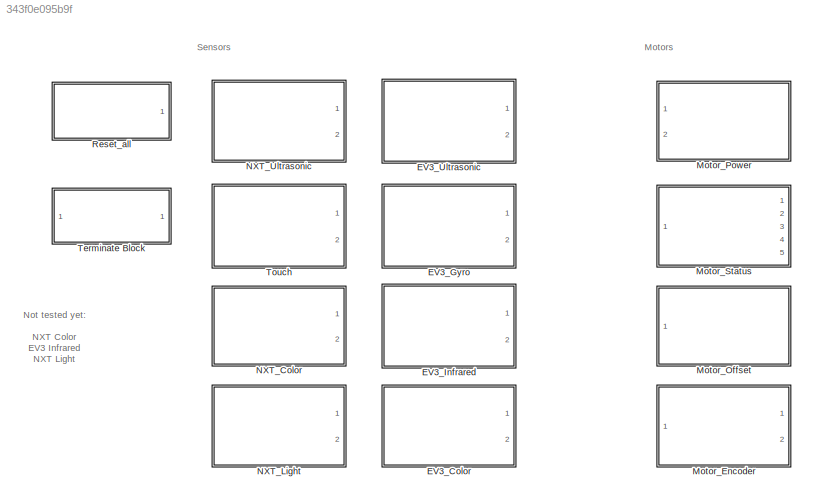
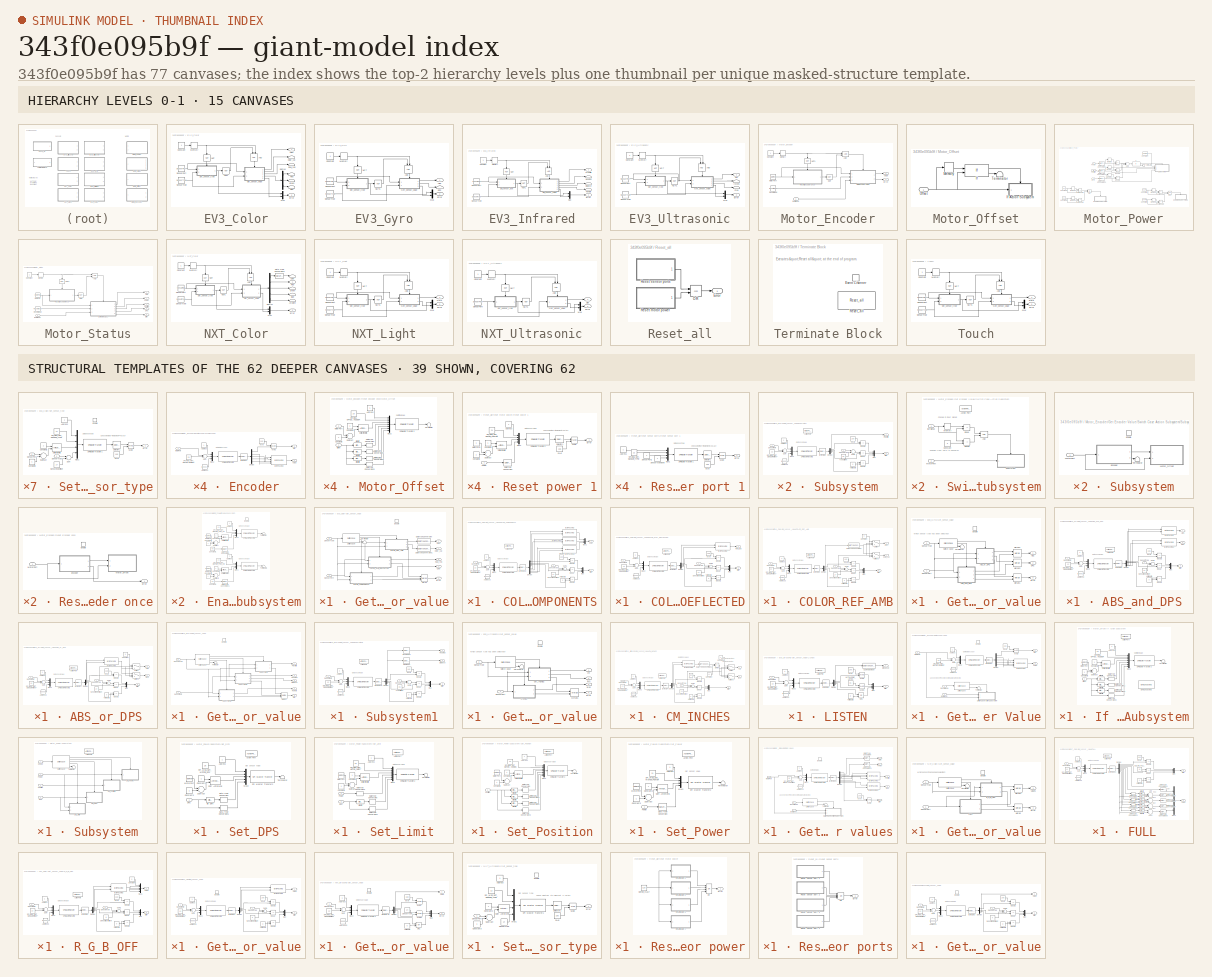
[diagram: thumbnail index - top-2 hierarchy levels (15 canvases) + 39 structural-template representatives of the remaining 62 canvases]
MODEL slx_343f0e095b9f
KIND library
CONFIG AbsTol = auto
CONFIG EnableMultiTasking = off
CONFIG FixedStep = auto
CONFIG MaxStep = auto
CONFIG MinStep = auto
CONFIG RelTol = 1e-3
CONFIG SampleTimeConstraint = Unconstrained
CONFIG Solver = VariableStepAuto
CONFIG SolverName = VariableStepAuto
CONFIG StartTime = 0.0
CONFIG StopTime = 10.0
BLOCK [SubSystem] EV3_Color
  Ports = [0, 2]
  RequestExecContextInheritance = off
BLOCK [Logic] EV3_Color/AND
  AllPortsSameDT = off
  OutDataTypeStr = boolean
  Ports = [2, 1]
BLOCK [Terminator] EV3_Color/Blue
BLOCK [Terminator] EV3_Color/Color_val
BLOCK [Constant] EV3_Color/Constant
BLOCK [Demux] EV3_Color/Demux
  DisplayOption = bar
  Outputs = 3
  Ports = [1, 3]
BLOCK [Outport] EV3_Color/Error
  IconDisplay = Port number
  Port = 2
BLOCK [SubSystem] EV3_Color/Get_sensor_value
  Ports = [2, 5, 1]
  RequestExecContextInheritance = off
BLOCK [SubSystem] EV3_Color/Get_sensor_value/COLOR_COMPONENTS
  Ports = [2, 2, 0, 0, 0, 0, 0, 1]
  RequestExecContextInheritance = off
BLOCK [Constant] EV3_Color/Get_sensor_value/COLOR_COMPONENTS/0xA5
  Value = 165
BLOCK [ActionPort] EV3_Color/Get_sensor_value/COLOR_COMPONENTS/Action Port
  ActionType = case
BLOCK [Constant] EV3_Color/Get_sensor_value/COLOR_COMPONENTS/Address 
  OutDataTypeStr = uint8
BLOCK [Constant] EV3_Color/Get_sensor_value/COLOR_COMPONENTS/Address3
  OutDataTypeStr = uint8
  Value = [0 0 0 0 0 0 0 0 0 0]
BLOCK [Reference] EV3_Color/Get_sensor_value/COLOR_COMPONENTS/Byte Packing   REF=xpcutilitieslib/Byte Packing 
  Ports = [2, 1]
  SourceBlock = xpcutilitieslib/Byte Packing
  SourceProductBaseCode = XP
  SourceProductName = Simulink Real-Time
  SourceType = xpcbytepacking
BLOCK [Reference] EV3_Color/Get_sensor_value/COLOR_COMPONENTS/Byte Packing 1  REF=xpcutilitieslib/Byte Packing 
  Ports = [2, 1]
  SourceBlock = xpcutilitieslib/Byte Packing
  SourceProductBaseCode = XP
  SourceProductName = Simulink Real-Time
  SourceType = xpcbytepacking
BLOCK [Reference] EV3_Color/Get_sensor_value/COLOR_COMPONENTS/Byte Packing 2  REF=xpcutilitieslib/Byte Packing 
  Ports = [2, 1]
  SourceBlock = xpcutilitieslib/Byte Packing
  SourceProductBaseCode = XP
  SourceProductName = Simulink Real-Time
  SourceType = xpcbytepacking
BLOCK [Selector] EV3_Color/Get_sensor_value/COLOR_COMPONENTS/Bytes[3-11]
  IndexMode = Zero-based
  IndexOptions = Index vector (dialog)
  Indices = [3 4 5 6 7 8 9 10 11]
  InputPortWidth = 12
  OutputSizes = 1
  Ports = [1, 1]
BLOCK [Outport] EV3_Color/Get_sensor_value/COLOR_COMPONENTS/Color
  IconDisplay = Port number
BLOCK [Demux] EV3_Color/Get_sensor_value/COLOR_COMPONENTS/Demux
  DisplayOption = bar
  Outputs = 9
  Ports = [1, 9]
BLOCK [RelationalOperator] EV3_Color/Get_sensor_value/COLOR_COMPONENTS/Equal
  InputSameDT = off
  Operator = ~=
  OutDataTypeStr = boolean
  Ports = [2, 1]
  RndMeth = Simplest
BLOCK [RelationalOperator] EV3_Color/Get_sensor_value/COLOR_COMPONENTS/Equal1
  InputSameDT = off
  Operator = ~=
  OutDataTypeStr = boolean
  Ports = [2, 1]
  RndMeth = Simplest
BLOCK [RelationalOperator] EV3_Color/Get_sensor_value/COLOR_COMPONENTS/Equal2
  InputSameDT = off
  Operator = ~=
  OutDataTypeStr = boolean
  Ports = [2, 1]
  RndMeth = Simplest
BLOCK [Outport] EV3_Color/Get_sensor_value/COLOR_COMPONENTS/Error
  IconDisplay = Port number
  Port = 2
BLOCK [Mux] EV3_Color/Get_sensor_value/COLOR_COMPONENTS/Mux
  DisplayOption = bar
  Inputs = 3
  Ports = [3, 1]
BLOCK [Mux] EV3_Color/Get_sensor_value/COLOR_COMPONENTS/Mux1
  DisplayOption = bar
  Inputs = 3
  Ports = [3, 1]
BLOCK [Mux] EV3_Color/Get_sensor_value/COLOR_COMPONENTS/Mux2
  DisplayOption = bar
  Inputs = 3
  Ports = [3, 1]
BLOCK [Reference] EV3_Color/Get_sensor_value/COLOR_COMPONENTS/SPI Master Transfer2  REF=raspberrypilib/SPI Master Transfer
  Ports = [1, 1]
  Priority = 6
  SourceBlock = raspberrypilib/SPI Master Transfer
  SourceProductBaseCode = RASPPI
  SourceProductName = Simulink Support Package for Raspberry Pi Hardware
  SourceType = codertarget.raspi.internal.SPIMasterTransfer
BLOCK [Constant] EV3_Color/Get_sensor_value/COLOR_COMPONENTS/SPI_MSG_GET_ SENSOR offset
  OutDataTypeStr = uint8
  OutMax = [28]
  OutMin = [1]
  Value = 12
BLOCK [Constant] EV3_Color/Get_sensor_value/COLOR_COMPONENTS/Sensor type offset
  OutDataTypeStr = uint8
  Value = 17
BLOCK [Inport] EV3_Color/Get_sensor_value/COLOR_COMPONENTS/SensorPort
  IconDisplay = Port number
BLOCK [Inport] EV3_Color/Get_sensor_value/COLOR_COMPONENTS/SensorType
  IconDisplay = Port number
  OutDataTypeStr = uint8
  Port = 2
BLOCK [Sum] EV3_Color/Get_sensor_value/COLOR_COMPONENTS/Sum
  InputSameDT = off
  OutDataTypeStr = uint8
  Ports = [2, 1]
  SaturateOnIntegerOverflow = off
BLOCK [Sum] EV3_Color/Get_sensor_value/COLOR_COMPONENTS/Sum1
  InputSameDT = off
  OutDataTypeStr = Inherit: Inherit via internal rule
  Ports = [2, 1]
  SaturateOnIntegerOverflow = off
BLOCK [Constant] EV3_Color/Get_sensor_value/COLOR_COMPONENTS/Valid data
  OutDataTypeStr = uint8
  Value = 0
BLOCK [SubSystem] EV3_Color/Get_sensor_value/COLOR_RAW_REFLECTED
  Ports = [2, 2, 0, 0, 0, 0, 0, 1]
  RequestExecContextInheritance = off
BLOCK [Constant] EV3_Color/Get_sensor_value/COLOR_RAW_REFLECTED/0xA5
  Value = 165
BLOCK [ActionPort] EV3_Color/Get_sensor_value/COLOR_RAW_REFLECTED/Action Port
  ActionType = case
BLOCK [Constant] EV3_Color/Get_sensor_value/COLOR_RAW_REFLECTED/Address 
  OutDataTypeStr = uint8
BLOCK [Constant] EV3_Color/Get_sensor_value/COLOR_RAW_REFLECTED/Address3
  OutDataTypeStr = uint8
  Value = [0 0 0 0 0 0]
BLOCK [Reference] EV3_Color/Get_sensor_value/COLOR_RAW_REFLECTED/Byte Packing   REF=xpcutilitieslib/Byte Packing 
  Ports = [2, 1]
  SourceBlock = xpcutilitieslib/Byte Packing
  SourceProductBaseCode = XP
  SourceProductName = Simulink Real-Time
  SourceType = xpcbytepacking
BLOCK [Selector] EV3_Color/Get_sensor_value/COLOR_RAW_REFLECTED/Bytes[3-7]
  IndexMode = Zero-based
  IndexOptions = Index vector (dialog)
  Indices = [3 4 5 6 7]
  InputPortWidth = 8
  OutputSizes = 1
  Ports = [1, 1]
BLOCK [Demux] EV3_Color/Get_sensor_value/COLOR_RAW_REFLECTED/Demux
  DisplayOption = bar
  Outputs = 5
  Ports = [1, 5]
BLOCK [RelationalOperator] EV3_Color/Get_sensor_value/COLOR_RAW_REFLECTED/Equal
  InputSameDT = off
  Operator = ~=
  OutDataTypeStr = boolean
  Ports = [2, 1]
  RndMeth = Simplest
BLOCK [RelationalOperator] EV3_Color/Get_sensor_value/COLOR_RAW_REFLECTED/Equal1
  InputSameDT = off
  Operator = ~=
  OutDataTypeStr = boolean
  Ports = [2, 1]
  RndMeth = Simplest
BLOCK [RelationalOperator] EV3_Color/Get_sensor_value/COLOR_RAW_REFLECTED/Equal2
  InputSameDT = off
  Operator = ~=
  OutDataTypeStr = boolean
  Ports = [2, 1]
  RndMeth = Simplest
BLOCK [Outport] EV3_Color/Get_sensor_value/COLOR_RAW_REFLECTED/Error
  IconDisplay = Port number
  Port = 2
BLOCK [Mux] EV3_Color/Get_sensor_value/COLOR_RAW_REFLECTED/Mux
  DisplayOption = bar
  Inputs = 3
  Ports = [3, 1]
BLOCK [Mux] EV3_Color/Get_sensor_value/COLOR_RAW_REFLECTED/Mux2
  DisplayOption = bar
  Inputs = 3
  Ports = [3, 1]
BLOCK [Outport] EV3_Color/Get_sensor_value/COLOR_RAW_REFLECTED/Raw_red
  IconDisplay = Port number
BLOCK [Reference] EV3_Color/Get_sensor_value/COLOR_RAW_REFLECTED/SPI Master Transfer2  REF=raspberrypilib/SPI Master Transfer
  Ports = [1, 1]
  Priority = 6
  SourceBlock = raspberrypilib/SPI Master Transfer
  SourceProductBaseCode = RASPPI
  SourceProductName = Simulink Support Package for Raspberry Pi Hardware
  SourceType = codertarget.raspi.internal.SPIMasterTransfer
BLOCK [Constant] EV3_Color/Get_sensor_value/COLOR_RAW_REFLECTED/SPI_MSG_GET_ SENSOR offset
  OutDataTypeStr = uint8
  OutMax = [28]
  OutMin = [1]
  Value = 12
BLOCK [Constant] EV3_Color/Get_sensor_value/COLOR_RAW_REFLECTED/Sensor type offset
  OutDataTypeStr = uint8
  Value = 17
BLOCK [Inport] EV3_Color/Get_sensor_value/COLOR_RAW_REFLECTED/SensorPort
  IconDisplay = Port number
BLOCK [Inport] EV3_Color/Get_sensor_value/COLOR_RAW_REFLECTED/SensorType
  IconDisplay = Port number
  OutDataTypeStr = uint8
  Port = 2
BLOCK [Sum] EV3_Color/Get_sensor_value/COLOR_RAW_REFLECTED/Sum
  InputSameDT = off
  OutDataTypeStr = uint8
  Ports = [2, 1]
  SaturateOnIntegerOverflow = off
BLOCK [Sum] EV3_Color/Get_sensor_value/COLOR_RAW_REFLECTED/Sum1
  InputSameDT = off
  OutDataTypeStr = Inherit: Inherit via internal rule
  Ports = [2, 1]
  SaturateOnIntegerOverflow = off
BLOCK [Constant] EV3_Color/Get_sensor_value/COLOR_RAW_REFLECTED/Valid data
  OutDataTypeStr = uint8
  Value = 0
BLOCK [SubSystem] EV3_Color/Get_sensor_value/COLOR_REF_AMB
  Ports = [2, 3, 0, 0, 0, 0, 0, 1]
  RequestExecContextInheritance = off
BLOCK [Constant] EV3_Color/Get_sensor_value/COLOR_REF_AMB/0xA5
  Value = 165
BLOCK [ActionPort] EV3_Color/Get_sensor_value/COLOR_REF_AMB/Action Port
  ActionType = case
BLOCK [Constant] EV3_Color/Get_sensor_value/COLOR_REF_AMB/Address 
  OutDataTypeStr = uint8
BLOCK [Constant] EV3_Color/Get_sensor_value/COLOR_REF_AMB/Address3
  OutDataTypeStr = uint8
  Value = [0 0 0 0 0]
BLOCK [Selector] EV3_Color/Get_sensor_value/COLOR_REF_AMB/Bytes[3-6]
  IndexMode = Zero-based
  IndexOptions = Index vector (dialog)
  Indices = [3 4 5 6]
  InputPortWidth = 7
  OutputSizes = 1
  Ports = [1, 1]
BLOCK [Outport] EV3_Color/Get_sensor_value/COLOR_REF_AMB/Color_val
  IconDisplay = Port number
  Port = 2
BLOCK [Constant] EV3_Color/Get_sensor_value/COLOR_REF_AMB/Constant
  Value = 0
BLOCK [DataTypeConversion] EV3_Color/Get_sensor_value/COLOR_REF_AMB/Data Type Conversion
  OutDataTypeStr = int16
  RndMeth = Floor
  SaturateOnIntegerOverflow = off
BLOCK [Demux] EV3_Color/Get_sensor_value/COLOR_REF_AMB/Demux
  DisplayOption = bar
  Ports = [1, 4]
BLOCK [RelationalOperator] EV3_Color/Get_sensor_value/COLOR_REF_AMB/Equal
  InputSameDT = off
  Operator = ~=
  OutDataTypeStr = boolean
  Ports = [2, 1]
  RndMeth = Simplest
BLOCK [RelationalOperator] EV3_Color/Get_sensor_value/COLOR_REF_AMB/Equal1
  InputSameDT = off
  Operator = ~=
  OutDataTypeStr = boolean
  Ports = [2, 1]
  RndMeth = Simplest
BLOCK [RelationalOperator] EV3_Color/Get_sensor_value/COLOR_REF_AMB/Equal2
  InputSameDT = off
  Operator = ~=
  OutDataTypeStr = boolean
  Ports = [2, 1]
  RndMeth = Simplest
BLOCK [Outport] EV3_Color/Get_sensor_value/COLOR_REF_AMB/Error
  IconDisplay = Port number
  Port = 3
BLOCK [Outport] EV3_Color/Get_sensor_value/COLOR_REF_AMB/Light
  IconDisplay = Port number
BLOCK [Mux] EV3_Color/Get_sensor_value/COLOR_REF_AMB/Mux
  DisplayOption = bar
  Inputs = 3
  Ports = [3, 1]
BLOCK [Mux] EV3_Color/Get_sensor_value/COLOR_REF_AMB/Mux2
  DisplayOption = bar
  Inputs = 3
  Ports = [3, 1]
BLOCK [Reference] EV3_Color/Get_sensor_value/COLOR_REF_AMB/SPI Master Transfer2  REF=raspberrypilib/SPI Master Transfer
  Ports = [1, 1]
  Priority = 6
  SourceBlock = raspberrypilib/SPI Master Transfer
  SourceProductBaseCode = RASPPI
  SourceProductName = Simulink Support Package for Raspberry Pi Hardware
  SourceType = codertarget.raspi.internal.SPIMasterTransfer
BLOCK [Constant] EV3_Color/Get_sensor_value/COLOR_REF_AMB/SPI_MSG_GET_ SENSOR offset
  OutDataTypeStr = uint8
  OutMax = [28]
  OutMin = [1]
  Value = 12
BLOCK [Constant] EV3_Color/Get_sensor_value/COLOR_REF_AMB/Sensor type offset
  OutDataTypeStr = uint8
  Value = 17
BLOCK [Inport] EV3_Color/Get_sensor_value/COLOR_REF_AMB/SensorPort
  IconDisplay = Port number
BLOCK [Inport] EV3_Color/Get_sensor_value/COLOR_REF_AMB/SensorType
  IconDisplay = Port number
  OutDataTypeStr = uint8
  Port = 2
BLOCK [Sum] EV3_Color/Get_sensor_value/COLOR_REF_AMB/Sum
  InputSameDT = off
  OutDataTypeStr = uint8
  Ports = [2, 1]
  SaturateOnIntegerOverflow = off
BLOCK [Sum] EV3_Color/Get_sensor_value/COLOR_REF_AMB/Sum1
  InputSameDT = off
  OutDataTypeStr = Inherit: Inherit via internal rule
  Ports = [2, 1]
  SaturateOnIntegerOverflow = off
BLOCK [Switch] EV3_Color/Get_sensor_value/COLOR_REF_AMB/Switch
  Criteria = u2 > Threshold
  InputSameDT = off
  SaturateOnIntegerOverflow = off
  Threshold = 2
BLOCK [Switch] EV3_Color/Get_sensor_value/COLOR_REF_AMB/Switch1
  Criteria = u2 > Threshold
  InputSameDT = off
  SaturateOnIntegerOverflow = off
  Threshold = 2
BLOCK [Constant] EV3_Color/Get_sensor_value/COLOR_REF_AMB/Valid data
  OutDataTypeStr = uint8
  Value = 0
BLOCK [Outport] EV3_Color/Get_sensor_value/Color
  IconDisplay = Port number
  Port = 4
BLOCK [Outport] EV3_Color/Get_sensor_value/Color_val
  IconDisplay = Port number
  Port = 2
BLOCK [DataTypeConversion] EV3_Color/Get_sensor_value/Data Type Conversion
  OutDataTypeStr = int8
  RndMeth = Floor
  SaturateOnIntegerOverflow = off
BLOCK [DataTypeConversion] EV3_Color/Get_sensor_value/Data Type Conversion1
  OutDataTypeStr = int8
  RndMeth = Floor
  SaturateOnIntegerOverflow = off
BLOCK [EnablePort] EV3_Color/Get_sensor_value/Enable
  Ports = []
BLOCK [Outport] EV3_Color/Get_sensor_value/Error
  IconDisplay = Port number
  Port = 5
BLOCK [Outport] EV3_Color/Get_sensor_value/Light
  IconDisplay = Port number
BLOCK [Merge] EV3_Color/Get_sensor_value/Merge
  Inputs = 3
  Ports = [3, 1]
BLOCK [Outport] EV3_Color/Get_sensor_value/Raw_red
  IconDisplay = Port number
  Port = 3
BLOCK [Inport] EV3_Color/Get_sensor_value/SensorPort
  IconDisplay = Port number
BLOCK [Inport] EV3_Color/Get_sensor_value/SensorType
  IconDisplay = Port number
  OutDataTypeStr = uint8
  Port = 2
BLOCK [SwitchCase] EV3_Color/Get_sensor_value/Switch Case
  CaseConditions = {[1,2,3],4,5}
  Ports = [1, 4]
BLOCK [Terminator] EV3_Color/Get_sensor_value/Terminator
BLOCK [Terminator] EV3_Color/Green
BLOCK [Outport] EV3_Color/Light
  IconDisplay = Port number
BLOCK [Memory] EV3_Color/Memory
BLOCK [Mux] EV3_Color/Mux
  DisplayOption = bar
  Inputs = 2
  Ports = [2, 1]
BLOCK [Logic] EV3_Color/NOT
  AllPortsSameDT = off
  IconShape = distinctive
  Operator = NOT
  OutDataTypeStr = boolean
  Ports = [1, 1]
BLOCK [Logic] EV3_Color/NOT1
  AllPortsSameDT = off
  IconShape = distinctive
  Operator = NOT
  OutDataTypeStr = boolean
  Ports = [1, 1]
BLOCK [Terminator] EV3_Color/Raw_red
BLOCK [Terminator] EV3_Color/Red
BLOCK [Constant] EV3_Color/SensorPort
  OutDataTypeStr = uint8
  Value = SensorPort
BLOCK [Constant] EV3_Color/SensorType
  OutDataTypeStr = uint8
  Value = SensorType
BLOCK [SubSystem] EV3_Color/Set_sensor_type
  Ports = [2, 1, 1]
  Priority = 21
  RequestExecContextInheritance = off
BLOCK [Constant] EV3_Color/Set_sensor_type/0xA5
  Value = 165
BLOCK [Constant] EV3_Color/Set_sensor_type/Address
  OutDataTypeStr = uint8
  VectorParams1D = off
BLOCK [Constant] EV3_Color/Set_sensor_type/Constant2
  OutDataTypeStr = uint8
BLOCK [Constant] EV3_Color/Set_sensor_type/Constant3
  OutDataTypeStr = uint8
BLOCK [EnablePort] EV3_Color/Set_sensor_type/Enable
  Ports = []
BLOCK [Outport] EV3_Color/Set_sensor_type/Error
  IconDisplay = Port number
  InitialOutput = [1]
BLOCK [Mux] EV3_Color/Set_sensor_type/Mux1
  DisplayOption = bar
  Ports = [4, 1]
BLOCK [Logic] EV3_Color/Set_sensor_type/NAND
  AllPortsSameDT = off
  IconShape = distinctive
  Operator = NAND
  OutDataTypeStr = boolean
  Ports = [2, 1]
BLOCK [Reference] EV3_Color/Set_sensor_type/SPI Master Transfer1  REF=raspberrypilib/SPI Master Transfer
  Ports = [1, 1]
  Priority = 1
  SourceBlock = raspberrypilib/SPI Master Transfer
  SourceProductBaseCode = RASPPI
  SourceProductName = Simulink Support Package for Raspberry Pi Hardware
  SourceType = codertarget.raspi.internal.SPIMasterTransfer
BLOCK [Constant] EV3_Color/Set_sensor_type/SPI_MSG_SET_ SENSOR_TYPE
  OutDataTypeStr = uint8
  OutMax = [28]
  OutMin = [1]
  Value = 12
BLOCK [Selector] EV3_Color/Set_sensor_type/Selector1
  IndexOptions = Index vector (dialog)
  Indices = [4]
  InputPortWidth = 4
  OutputSizes = 1
  Ports = [1, 1]
BLOCK [Constant] EV3_Color/Set_sensor_type/Sensor type offset
  OutDataTypeStr = uint8
  Value = 17
BLOCK [Inport] EV3_Color/Set_sensor_type/SensorPort
  IconDisplay = Port number
  OutDataTypeStr = uint8
BLOCK [Inport] EV3_Color/Set_sensor_type/SensorType
  IconDisplay = Port number
  OutDataTypeStr = uint8
  Port = 2
BLOCK [ArithShift] EV3_Color/Set_sensor_type/Shift Arithmetic
  BitShiftDirection = Left
  BitShiftNumber = 8
  BitShiftNumberSource = Input port
  InputPortMap = u0,p1
  Ports = [2, 1]
BLOCK [Sum] EV3_Color/Set_sensor_type/Subtract
  InputSameDT = off
  Inputs = +-
  OutDataTypeStr = Inherit: Inherit via internal rule
  Ports = [2, 1]
  SaturateOnIntegerOverflow = off
BLOCK [Sum] EV3_Color/Set_sensor_type/Sum
  InputSameDT = off
  OutDataTypeStr = Inherit: Inherit via internal rule
  Ports = [2, 1]
  SaturateOnIntegerOverflow = off
BLOCK [SubSystem] EV3_Gyro
  Ports = [0, 2]
  RequestExecContextInheritance = off
BLOCK [Outport] EV3_Gyro/ABS
  IconDisplay = Port number
BLOCK [Logic] EV3_Gyro/AND
  AllPortsSameDT = off
  OutDataTypeStr = boolean
  Ports = [2, 1]
BLOCK [Constant] EV3_Gyro/Constant
BLOCK [Terminator] EV3_Gyro/DPS
BLOCK [Outport] EV3_Gyro/Error
  IconDisplay = Port number
  Port = 2
BLOCK [SubSystem] EV3_Gyro/Get_sensor_value
  Ports = [2, 3, 1]
  RequestExecContextInheritance = off
BLOCK [Outport] EV3_Gyro/Get_sensor_value/ABS
  IconDisplay = Port number
BLOCK [SubSystem] EV3_Gyro/Get_sensor_value/ABS_and_DPS
  Ports = [2, 3, 0, 0, 0, 0, 0, 1]
  RequestExecContextInheritance = off
BLOCK [Constant] EV3_Gyro/Get_sensor_value/ABS_and_DPS/0xA5
  Value = 165
BLOCK [Outport] EV3_Gyro/Get_sensor_value/ABS_and_DPS/ABS
  IconDisplay = Port number
BLOCK [ActionPort] EV3_Gyro/Get_sensor_value/ABS_and_DPS/Action Port
BLOCK [Constant] EV3_Gyro/Get_sensor_value/ABS_and_DPS/Address 
  OutDataTypeStr = uint8
BLOCK [Constant] EV3_Gyro/Get_sensor_value/ABS_and_DPS/Address3
  OutDataTypeStr = uint8
  Value = [0 0 0 0 0 0 0 0]
BLOCK [Reference] EV3_Gyro/Get_sensor_value/ABS_and_DPS/Byte Packing   REF=xpcutilitieslib/Byte Packing 
  Ports = [2, 1]
  SourceBlock = xpcutilitieslib/Byte Packing
  SourceProductBaseCode = XP
  SourceProductName = Simulink Real-Time
  SourceType = xpcbytepacking
BLOCK [Reference] EV3_Gyro/Get_sensor_value/ABS_and_DPS/Byte Packing 1  REF=xpcutilitieslib/Byte Packing 
  Ports = [2, 1]
  SourceBlock = xpcutilitieslib/Byte Packing
  SourceProductBaseCode = XP
  SourceProductName = Simulink Real-Time
  SourceType = xpcbytepacking
BLOCK [Selector] EV3_Gyro/Get_sensor_value/ABS_and_DPS/Bytes[3-9]
  IndexMode = Zero-based
  IndexOptions = Index vector (dialog)
  Indices = [3 4 5 6 7 8 9]
  InputPortWidth = 10
  OutputSizes = 1
  Ports = [1, 1]
BLOCK [Outport] EV3_Gyro/Get_sensor_value/ABS_and_DPS/DPS
  IconDisplay = Port number
  Port = 2
BLOCK [Demux] EV3_Gyro/Get_sensor_value/ABS_and_DPS/Demux
  DisplayOption = bar
  Outputs = 7
  Ports = [1, 7]
BLOCK [RelationalOperator] EV3_Gyro/Get_sensor_value/ABS_and_DPS/Equal
  InputSameDT = off
  Operator = ~=
  OutDataTypeStr = boolean
  Ports = [2, 1]
  RndMeth = Simplest
BLOCK [RelationalOperator] EV3_Gyro/Get_sensor_value/ABS_and_DPS/Equal1
  InputSameDT = off
  Operator = ~=
  OutDataTypeStr = boolean
  Ports = [2, 1]
  RndMeth = Simplest
BLOCK [RelationalOperator] EV3_Gyro/Get_sensor_value/ABS_and_DPS/Equal2
  InputSameDT = off
  Operator = ~=
  OutDataTypeStr = boolean
  Ports = [2, 1]
  RndMeth = Simplest
BLOCK [Outport] EV3_Gyro/Get_sensor_value/ABS_and_DPS/Error
  IconDisplay = Port number
  Port = 3
BLOCK [Mux] EV3_Gyro/Get_sensor_value/ABS_and_DPS/Mux
  DisplayOption = bar
  Inputs = 3
  Ports = [3, 1]
BLOCK [Mux] EV3_Gyro/Get_sensor_value/ABS_and_DPS/Mux2
  DisplayOption = bar
  Inputs = 3
  Ports = [3, 1]
BLOCK [Reference] EV3_Gyro/Get_sensor_value/ABS_and_DPS/SPI Master Transfer2  REF=raspberrypilib/SPI Master Transfer
  Ports = [1, 1]
  Priority = 6
  SourceBlock = raspberrypilib/SPI Master Transfer
  SourceProductBaseCode = RASPPI
  SourceProductName = Simulink Support Package for Raspberry Pi Hardware
  SourceType = codertarget.raspi.internal.SPIMasterTransfer
BLOCK [Constant] EV3_Gyro/Get_sensor_value/ABS_and_DPS/SPI_MSG_GET_ SENSOR offset
  OutDataTypeStr = uint8
  OutMax = [28]
  OutMin = [1]
  Value = 12
BLOCK [Constant] EV3_Gyro/Get_sensor_value/ABS_and_DPS/Sensor type offset
  OutDataTypeStr = uint8
  Value = 14
BLOCK [Inport] EV3_Gyro/Get_sensor_value/ABS_and_DPS/SensorPort
  IconDisplay = Port number
BLOCK [Inport] EV3_Gyro/Get_sensor_value/ABS_and_DPS/SensorType
  IconDisplay = Port number
  OutDataTypeStr = uint8
  Port = 2
BLOCK [Sum] EV3_Gyro/Get_sensor_value/ABS_and_DPS/Sum
  InputSameDT = off
  OutDataTypeStr = uint8
  Ports = [2, 1]
  SaturateOnIntegerOverflow = off
BLOCK [Sum] EV3_Gyro/Get_sensor_value/ABS_and_DPS/Sum1
  InputSameDT = off
  OutDataTypeStr = uint8
  Ports = [2, 1]
  SaturateOnIntegerOverflow = off
BLOCK [Constant] EV3_Gyro/Get_sensor_value/ABS_and_DPS/Valid data
  OutDataTypeStr = uint8
  Value = 0
BLOCK [SubSystem] EV3_Gyro/Get_sensor_value/ABS_or_DPS
  Ports = [2, 3, 0, 0, 0, 0, 0, 1]
  RequestExecContextInheritance = off
BLOCK [Constant] EV3_Gyro/Get_sensor_value/ABS_or_DPS/0xA5
  Value = 165
BLOCK [Outport] EV3_Gyro/Get_sensor_value/ABS_or_DPS/ABS
  IconDisplay = Port number
BLOCK [ActionPort] EV3_Gyro/Get_sensor_value/ABS_or_DPS/Action Port
BLOCK [Constant] EV3_Gyro/Get_sensor_value/ABS_or_DPS/Address 
  OutDataTypeStr = uint8
BLOCK [Constant] EV3_Gyro/Get_sensor_value/ABS_or_DPS/Address3
  OutDataTypeStr = uint8
  Value = [0 0 0 0 0 0]
BLOCK [Reference] EV3_Gyro/Get_sensor_value/ABS_or_DPS/Byte Packing   REF=xpcutilitieslib/Byte Packing 
  Ports = [2, 1]
  SourceBlock = xpcutilitieslib/Byte Packing
  SourceProductBaseCode = XP
  SourceProductName = Simulink Real-Time
  SourceType = xpcbytepacking
BLOCK [Selector] EV3_Gyro/Get_sensor_value/ABS_or_DPS/Bytes[3-7]
  IndexMode = Zero-based
  IndexOptions = Index vector (dialog)
  Indices = [3 4 5 6 7]
  InputPortWidth = 8
  OutputSizes = 1
  Ports = [1, 1]
BLOCK [Constant] EV3_Gyro/Get_sensor_value/ABS_or_DPS/Constant
  OutDataTypeStr = uint8
  Value = 0
BLOCK [Outport] EV3_Gyro/Get_sensor_value/ABS_or_DPS/DPS
  IconDisplay = Port number
  Port = 2
BLOCK [Demux] EV3_Gyro/Get_sensor_value/ABS_or_DPS/Demux
  DisplayOption = bar
  Outputs = 5
  Ports = [1, 5]
BLOCK [RelationalOperator] EV3_Gyro/Get_sensor_value/ABS_or_DPS/Equal
  InputSameDT = off
  Operator = ~=
  OutDataTypeStr = boolean
  Ports = [2, 1]
  RndMeth = Simplest
BLOCK [RelationalOperator] EV3_Gyro/Get_sensor_value/ABS_or_DPS/Equal1
  InputSameDT = off
  Operator = ~=
  OutDataTypeStr = boolean
  Ports = [2, 1]
  RndMeth = Simplest
BLOCK [RelationalOperator] EV3_Gyro/Get_sensor_value/ABS_or_DPS/Equal2
  InputSameDT = off
  Operator = ~=
  OutDataTypeStr = boolean
  Ports = [2, 1]
  RndMeth = Simplest
BLOCK [Outport] EV3_Gyro/Get_sensor_value/ABS_or_DPS/Error
  IconDisplay = Port number
  Port = 3
BLOCK [Mux] EV3_Gyro/Get_sensor_value/ABS_or_DPS/Mux
  DisplayOption = bar
  Inputs = 3
  Ports = [3, 1]
BLOCK [Mux] EV3_Gyro/Get_sensor_value/ABS_or_DPS/Mux2
  DisplayOption = bar
  Inputs = 3
  Ports = [3, 1]
BLOCK [Reference] EV3_Gyro/Get_sensor_value/ABS_or_DPS/SPI Master Transfer2  REF=raspberrypilib/SPI Master Transfer
  Ports = [1, 1]
  Priority = 6
  SourceBlock = raspberrypilib/SPI Master Transfer
  SourceProductBaseCode = RASPPI
  SourceProductName = Simulink Support Package for Raspberry Pi Hardware
  SourceType = codertarget.raspi.internal.SPIMasterTransfer
BLOCK [Constant] EV3_Gyro/Get_sensor_value/ABS_or_DPS/SPI_MSG_GET_ SENSOR offset
  OutDataTypeStr = uint8
  OutMax = [28]
  OutMin = [1]
  Value = 12
BLOCK [Constant] EV3_Gyro/Get_sensor_value/ABS_or_DPS/Sensor type offset
  OutDataTypeStr = uint8
  Value = 14
BLOCK [Inport] EV3_Gyro/Get_sensor_value/ABS_or_DPS/SensorPort
  IconDisplay = Port number
BLOCK [Inport] EV3_Gyro/Get_sensor_value/ABS_or_DPS/SensorType
  IconDisplay = Port number
  OutDataTypeStr = uint8
  Port = 2
BLOCK [Sum] EV3_Gyro/Get_sensor_value/ABS_or_DPS/Sum
  InputSameDT = off
  OutDataTypeStr = uint8
  Ports = [2, 1]
  SaturateOnIntegerOverflow = off
BLOCK [Sum] EV3_Gyro/Get_sensor_value/ABS_or_DPS/Sum1
  InputSameDT = off
  OutDataTypeStr = Inherit: Inherit via internal rule
  Ports = [2, 1]
  SaturateOnIntegerOverflow = off
BLOCK [Switch] EV3_Gyro/Get_sensor_value/ABS_or_DPS/Switch
  Criteria = u2 > Threshold
  InputSameDT = off
  SaturateOnIntegerOverflow = off
  Threshold = 1
BLOCK [Switch] EV3_Gyro/Get_sensor_value/ABS_or_DPS/Switch1
  Criteria = u2 > Threshold
  InputSameDT = off
  SaturateOnIntegerOverflow = off
  Threshold = 1
BLOCK [Constant] EV3_Gyro/Get_sensor_value/ABS_or_DPS/Valid data
  OutDataTypeStr = uint8
  Value = 0
BLOCK [Outport] EV3_Gyro/Get_sensor_value/DPS
  IconDisplay = Port number
  Port = 2
BLOCK [EnablePort] EV3_Gyro/Get_sensor_value/Enable
  Ports = []
  PropagateVarSize = During execution
  StatesWhenEnabling = reset
BLOCK [Outport] EV3_Gyro/Get_sensor_value/Error
  IconDisplay = Port number
  Port = 3
BLOCK [Merge] EV3_Gyro/Get_sensor_value/Merge1
  Ports = [2, 1]
BLOCK [Merge] EV3_Gyro/Get_sensor_value/Merge2
  Ports = [2, 1]
BLOCK [Merge] EV3_Gyro/Get_sensor_value/Merge3
  Ports = [2, 1]
BLOCK [Inport] EV3_Gyro/Get_sensor_value/SensorPort
  IconDisplay = Port number
BLOCK [Inport] EV3_Gyro/Get_sensor_value/SensorType
  IconDisplay = Port number
  OutDataTypeStr = uint8
  Port = 2
BLOCK [SwitchCase] EV3_Gyro/Get_sensor_value/Switch Case
  CaseConditions = {[1,2],3}
  Ports = [1, 3]
BLOCK [Terminator] EV3_Gyro/Get_sensor_value/Terminator
BLOCK [Memory] EV3_Gyro/Memory
BLOCK [Mux] EV3_Gyro/Mux
  DisplayOption = bar
  Inputs = 2
  Ports = [2, 1]
BLOCK [Logic] EV3_Gyro/NOT
  AllPortsSameDT = off
  IconShape = distinctive
  Operator = NOT
  OutDataTypeStr = boolean
  Ports = [1, 1]
BLOCK [Logic] EV3_Gyro/NOT1
  AllPortsSameDT = off
  IconShape = distinctive
  Operator = NOT
  OutDataTypeStr = boolean
  Ports = [1, 1]
BLOCK [Constant] EV3_Gyro/SensorPort
  OutDataTypeStr = uint8
  Value = SensorPort
BLOCK [Constant] EV3_Gyro/SensorType
  OutDataTypeStr = uint8
  Value = SensorType
BLOCK [SubSystem] EV3_Gyro/Set_sensor_type
  Ports = [2, 1, 1]
  Priority = 21
  RequestExecContextInheritance = off
BLOCK [Constant] EV3_Gyro/Set_sensor_type/0xA5
  Value = 165
BLOCK [Constant] EV3_Gyro/Set_sensor_type/Address
  OutDataTypeStr = uint8
  VectorParams1D = off
BLOCK [Constant] EV3_Gyro/Set_sensor_type/Constant2
  OutDataTypeStr = uint8
BLOCK [Constant] EV3_Gyro/Set_sensor_type/Constant3
  OutDataTypeStr = uint8
BLOCK [EnablePort] EV3_Gyro/Set_sensor_type/Enable
  Ports = []
  PropagateVarSize = During execution
BLOCK [Outport] EV3_Gyro/Set_sensor_type/Error
  IconDisplay = Port number
  InitialOutput = [1]
BLOCK [Mux] EV3_Gyro/Set_sensor_type/Mux1
  DisplayOption = bar
  Ports = [4, 1]
BLOCK [Logic] EV3_Gyro/Set_sensor_type/NAND
  AllPortsSameDT = off
  IconShape = distinctive
  Operator = NAND
  OutDataTypeStr = boolean
  Ports = [2, 1]
BLOCK [Reference] EV3_Gyro/Set_sensor_type/SPI Master Transfer1  REF=raspberrypilib/SPI Master Transfer
  Ports = [1, 1]
  Priority = 1
  SourceBlock = raspberrypilib/SPI Master Transfer
  SourceProductBaseCode = RASPPI
  SourceProductName = Simulink Support Package for Raspberry Pi Hardware
  SourceType = codertarget.raspi.internal.SPIMasterTransfer
BLOCK [Constant] EV3_Gyro/Set_sensor_type/SPI_MSG_SET_ SENSOR_TYPE
  OutDataTypeStr = uint8
  OutMax = [28]
  OutMin = [1]
  Value = 12
BLOCK [Selector] EV3_Gyro/Set_sensor_type/Selector1
  IndexOptions = Index vector (dialog)
  Indices = [4]
  InputPortWidth = 4
  OutputSizes = 1
  Ports = [1, 1]
BLOCK [Constant] EV3_Gyro/Set_sensor_type/Sensor type offset
  OutDataTypeStr = uint8
  Value = 14
BLOCK [Inport] EV3_Gyro/Set_sensor_type/SensorPort
  IconDisplay = Port number
  OutDataTypeStr = uint8
BLOCK [Inport] EV3_Gyro/Set_sensor_type/SensorType
  IconDisplay = Port number
  OutDataTypeStr = uint8
  Port = 2
BLOCK [ArithShift] EV3_Gyro/Set_sensor_type/Shift Arithmetic
  BitShiftDirection = Left
  BitShiftNumber = 8
  BitShiftNumberSource = Input port
  InputPortMap = u0,p1
  Ports = [2, 1]
BLOCK [Sum] EV3_Gyro/Set_sensor_type/Subtract
  InputSameDT = off
  Inputs = +-
  OutDataTypeStr = Inherit: Inherit via internal rule
  Ports = [2, 1]
  SaturateOnIntegerOverflow = off
BLOCK [Sum] EV3_Gyro/Set_sensor_type/Sum
  InputSameDT = off
  OutDataTypeStr = Inherit: Inherit via internal rule
  Ports = [2, 1]
  SaturateOnIntegerOverflow = off
BLOCK [SubSystem] EV3_Infrared
  Ports = [0, 2]
  RequestExecContextInheritance = off
BLOCK [Logic] EV3_Infrared/AND
  AllPortsSameDT = off
  OutDataTypeStr = boolean
  Ports = [2, 1]
BLOCK [Constant] EV3_Infrared/Constant
BLOCK [Terminator] EV3_Infrared/Distance
BLOCK [Outport] EV3_Infrared/Error
  IconDisplay = Port number
  Port = 2
BLOCK [SubSystem] EV3_Infrared/Get_sensor_value
  Ports = [2, 5, 1]
  RequestExecContextInheritance = off
BLOCK [Outport] EV3_Infrared/Get_sensor_value/Distance
  IconDisplay = Port number
  Port = 3
BLOCK [EnablePort] EV3_Infrared/Get_sensor_value/Enable
  Ports = []
BLOCK [Outport] EV3_Infrared/Get_sensor_value/Error
  IconDisplay = Port number
  Port = 5
BLOCK [Outport] EV3_Infrared/Get_sensor_value/Heading
  IconDisplay = Port number
  Port = 2
BLOCK [Merge] EV3_Infrared/Get_sensor_value/Merge2
  Inputs = 3
  Ports = [3, 1]
BLOCK [Outport] EV3_Infrared/Get_sensor_value/Proximity
  IconDisplay = Port number
BLOCK [Outport] EV3_Infrared/Get_sensor_value/Remote
  IconDisplay = Port number
  Port = 4
BLOCK [Inport] EV3_Infrared/Get_sensor_value/SensorPort
  IconDisplay = Port number
BLOCK [Inport] EV3_Infrared/Get_sensor_value/SensorType
  IconDisplay = Port number
  Port = 2
BLOCK [SubSystem] EV3_Infrared/Get_sensor_value/Subsystem
  Ports = [2, 2, 0, 0, 0, 0, 0, 1]
  RequestExecContextInheritance = off
BLOCK [Constant] EV3_Infrared/Get_sensor_value/Subsystem/0xA5
  Value = 165
BLOCK [ActionPort] EV3_Infrared/Get_sensor_value/Subsystem/Action Port
  ActionType = case
BLOCK [Constant] EV3_Infrared/Get_sensor_value/Subsystem/Address 
  OutDataTypeStr = uint8
BLOCK [Constant] EV3_Infrared/Get_sensor_value/Subsystem/Address3
  OutDataTypeStr = uint8
  Value = [0 0 0 0 0]
BLOCK [Selector] EV3_Infrared/Get_sensor_value/Subsystem/Bytes[3-6]
  IndexMode = Zero-based
  IndexOptions = Index vector (dialog)
  Indices = [3 4 5 6]
  InputPortWidth = 7
  OutputSizes = 1
  Ports = [1, 1]
BLOCK [Demux] EV3_Infrared/Get_sensor_value/Subsystem/Demux
  DisplayOption = bar
  Ports = [1, 4]
BLOCK [RelationalOperator] EV3_Infrared/Get_sensor_value/Subsystem/Equal
  InputSameDT = off
  Operator = ~=
  OutDataTypeStr = boolean
  Ports = [2, 1]
  RndMeth = Simplest
BLOCK [RelationalOperator] EV3_Infrared/Get_sensor_value/Subsystem/Equal1
  InputSameDT = off
  Operator = ~=
  OutDataTypeStr = boolean
  Ports = [2, 1]
  RndMeth = Simplest
BLOCK [RelationalOperator] EV3_Infrared/Get_sensor_value/Subsystem/Equal2
  InputSameDT = off
  Operator = ~=
  OutDataTypeStr = boolean
  Ports = [2, 1]
  RndMeth = Simplest
BLOCK [Outport] EV3_Infrared/Get_sensor_value/Subsystem/Error
  IconDisplay = Port number
  Port = 2
BLOCK [Mux] EV3_Infrared/Get_sensor_value/Subsystem/Mux
  DisplayOption = bar
  Inputs = 3
  Ports = [3, 1]
BLOCK [Mux] EV3_Infrared/Get_sensor_value/Subsystem/Mux2
  DisplayOption = bar
  Inputs = 3
  Ports = [3, 1]
BLOCK [Outport] EV3_Infrared/Get_sensor_value/Subsystem/Proximity
  IconDisplay = Port number
BLOCK [Reference] EV3_Infrared/Get_sensor_value/Subsystem/SPI Master Transfer2  REF=raspberrypilib/SPI Master Transfer
  Ports = [1, 1]
  Priority = 6
  SourceBlock = raspberrypilib/SPI Master Transfer
  SourceProductBaseCode = RASPPI
  SourceProductName = Simulink Support Package for Raspberry Pi Hardware
  SourceType = codertarget.raspi.internal.SPIMasterTransfer
BLOCK [Constant] EV3_Infrared/Get_sensor_value/Subsystem/SPI_MSG_GET_ SENSOR offset
  OutDataTypeStr = uint8
  OutMax = [28]
  OutMin = [1]
  Value = 12
BLOCK [Inport] EV3_Infrared/Get_sensor_value/Subsystem/SensorPort
  IconDisplay = Port number
BLOCK [Inport] EV3_Infrared/Get_sensor_value/Subsystem/SensorType
  IconDisplay = Port number
  OutDataTypeStr = uint8
  Port = 2
BLOCK [Sum] EV3_Infrared/Get_sensor_value/Subsystem/Sum
  InputSameDT = off
  OutDataTypeStr = uint8
  Ports = [2, 1]
  SaturateOnIntegerOverflow = off
BLOCK [Sum] EV3_Infrared/Get_sensor_value/Subsystem/Sum1
  InputSameDT = off
  OutDataTypeStr = uint8
  Ports = [2, 1]
  SaturateOnIntegerOverflow = off
BLOCK [Constant] EV3_Infrared/Get_sensor_value/Subsystem/Type Offset
  OutDataTypeStr = uint8
  Value = 25
BLOCK [Constant] EV3_Infrared/Get_sensor_value/Subsystem/Valid data
  OutDataTypeStr = uint8
  Value = 0
BLOCK [SubSystem] EV3_Infrared/Get_sensor_value/Subsystem1
  Ports = [2, 3, 0, 0, 0, 0, 0, 1]
  RequestExecContextInheritance = off
BLOCK [Constant] EV3_Infrared/Get_sensor_value/Subsystem1/0xA5
  Value = 165
BLOCK [ActionPort] EV3_Infrared/Get_sensor_value/Subsystem1/Action Port
  ActionType = case
BLOCK [Constant] EV3_Infrared/Get_sensor_value/Subsystem1/Address 
  OutDataTypeStr = uint8
BLOCK [Constant] EV3_Infrared/Get_sensor_value/Subsystem1/Address3
  OutDataTypeStr = uint8
  Value = [0 0 0 0 0 0 0 0 0 0 0 0]
BLOCK [Selector] EV3_Infrared/Get_sensor_value/Subsystem1/Bytes[3-13]
  IndexMode = Zero-based
  IndexOptions = Index vector (dialog)
  Indices = [3 4 5 6 7 8 9 10 11 12 13]
  InputPortWidth = 14
  OutputSizes = 1
  Ports = [1, 1]
BLOCK [Demux] EV3_Infrared/Get_sensor_value/Subsystem1/Demux
  DisplayOption = bar
  Ports = [1, 4]
BLOCK [Outport] EV3_Infrared/Get_sensor_value/Subsystem1/Distance
  IconDisplay = Port number
  Port = 2
BLOCK [RelationalOperator] EV3_Infrared/Get_sensor_value/Subsystem1/Equal
  InputSameDT = off
  Operator = ~=
  OutDataTypeStr = boolean
  Ports = [2, 1]
  RndMeth = Simplest
BLOCK [RelationalOperator] EV3_Infrared/Get_sensor_value/Subsystem1/Equal1
  InputSameDT = off
  Operator = ~=
  OutDataTypeStr = boolean
  Ports = [2, 1]
  RndMeth = Simplest
BLOCK [RelationalOperator] EV3_Infrared/Get_sensor_value/Subsystem1/Equal2
  InputSameDT = off
  Operator = ~=
  OutDataTypeStr = boolean
  Ports = [2, 1]
  RndMeth = Simplest
BLOCK [Outport] EV3_Infrared/Get_sensor_value/Subsystem1/Error
  IconDisplay = Port number
  Port = 3
BLOCK [Selector] EV3_Infrared/Get_sensor_value/Subsystem1/Even index
  IndexMode = Zero-based
  IndexOptions = Index vector (dialog)
  Indices = [0 2 4 6]
  InputPortWidth = 8
  OutputSizes = 1
  Ports = [1, 1]
BLOCK [Outport] EV3_Infrared/Get_sensor_value/Subsystem1/Heading
  IconDisplay = Port number
BLOCK [Mux] EV3_Infrared/Get_sensor_value/Subsystem1/Mux
  DisplayOption = bar
  Inputs = 3
  Ports = [3, 1]
BLOCK [Mux] EV3_Infrared/Get_sensor_value/Subsystem1/Mux2
  DisplayOption = bar
  Inputs = 3
  Ports = [3, 1]
BLOCK [Selector] EV3_Infrared/Get_sensor_value/Subsystem1/Odd index
  IndexMode = Zero-based
  IndexOptions = Index vector (dialog)
  Indices = [1 3 5 7]
  InputPortWidth = 8
  OutputSizes = 1
  Ports = [1, 1]
BLOCK [Reference] EV3_Infrared/Get_sensor_value/Subsystem1/SPI Master Transfer2  REF=raspberrypilib/SPI Master Transfer
  Ports = [1, 1]
  Priority = 6
  SourceBlock = raspberrypilib/SPI Master Transfer
  SourceProductBaseCode = RASPPI
  SourceProductName = Simulink Support Package for Raspberry Pi Hardware
  SourceType = codertarget.raspi.internal.SPIMasterTransfer
BLOCK [Constant] EV3_Infrared/Get_sensor_value/Subsystem1/SPI_MSG_GET_ SENSOR offset
  OutDataTypeStr = uint8
  OutMax = [28]
  OutMin = [1]
  Value = 12
BLOCK [Inport] EV3_Infrared/Get_sensor_value/Subsystem1/SensorPort
  IconDisplay = Port number
BLOCK [Inport] EV3_Infrared/Get_sensor_value/Subsystem1/SensorType
  IconDisplay = Port number
  OutDataTypeStr = uint8
  Port = 2
BLOCK [Sum] EV3_Infrared/Get_sensor_value/Subsystem1/Sum
  InputSameDT = off
  OutDataTypeStr = uint8
  Ports = [2, 1]
  SaturateOnIntegerOverflow = off
BLOCK [Sum] EV3_Infrared/Get_sensor_value/Subsystem1/Sum1
  InputSameDT = off
  OutDataTypeStr = uint8
  Ports = [2, 1]
  SaturateOnIntegerOverflow = off
BLOCK [Constant] EV3_Infrared/Get_sensor_value/Subsystem1/Type Offset
  OutDataTypeStr = uint8
  Value = 25
BLOCK [Constant] EV3_Infrared/Get_sensor_value/Subsystem1/Valid data
  OutDataTypeStr = uint8
  Value = 0
BLOCK [SubSystem] EV3_Infrared/Get_sensor_value/Subsystem2
  Ports = [2, 2, 0, 0, 0, 0, 0, 1]
  RequestExecContextInheritance = off
BLOCK [Constant] EV3_Infrared/Get_sensor_value/Subsystem2/0xA5
  Value = 165
BLOCK [ActionPort] EV3_Infrared/Get_sensor_value/Subsystem2/Action Port
  ActionType = case
BLOCK [Constant] EV3_Infrared/Get_sensor_value/Subsystem2/Address 
  OutDataTypeStr = uint8
BLOCK [Constant] EV3_Infrared/Get_sensor_value/Subsystem2/Address3
  OutDataTypeStr = uint8
  Value = [0 0 0 0 0 0 0 0]
BLOCK [Selector] EV3_Infrared/Get_sensor_value/Subsystem2/Bytes[3-9]
  IndexMode = Zero-based
  IndexOptions = Index vector (dialog)
  Indices = [3 4 5 6 7 8 9]
  InputPortWidth = 10
  OutputSizes = 1
  Ports = [1, 1]
BLOCK [Demux] EV3_Infrared/Get_sensor_value/Subsystem2/Demux
  DisplayOption = bar
  Ports = [1, 4]
BLOCK [RelationalOperator] EV3_Infrared/Get_sensor_value/Subsystem2/Equal
  InputSameDT = off
  Operator = ~=
  OutDataTypeStr = boolean
  Ports = [2, 1]
  RndMeth = Simplest
BLOCK [RelationalOperator] EV3_Infrared/Get_sensor_value/Subsystem2/Equal1
  InputSameDT = off
  Operator = ~=
  OutDataTypeStr = boolean
  Ports = [2, 1]
  RndMeth = Simplest
BLOCK [RelationalOperator] EV3_Infrared/Get_sensor_value/Subsystem2/Equal2
  InputSameDT = off
  Operator = ~=
  OutDataTypeStr = boolean
  Ports = [2, 1]
  RndMeth = Simplest
BLOCK [Outport] EV3_Infrared/Get_sensor_value/Subsystem2/Error
  IconDisplay = Port number
  Port = 2
BLOCK [Mux] EV3_Infrared/Get_sensor_value/Subsystem2/Mux
  DisplayOption = bar
  Inputs = 3
  Ports = [3, 1]
BLOCK [Mux] EV3_Infrared/Get_sensor_value/Subsystem2/Mux2
  DisplayOption = bar
  Inputs = 3
  Ports = [3, 1]
BLOCK [Outport] EV3_Infrared/Get_sensor_value/Subsystem2/Remote
  IconDisplay = Port number
BLOCK [Reference] EV3_Infrared/Get_sensor_value/Subsystem2/SPI Master Transfer2  REF=raspberrypilib/SPI Master Transfer
  Ports = [1, 1]
  Priority = 6
  SourceBlock = raspberrypilib/SPI Master Transfer
  SourceProductBaseCode = RASPPI
  SourceProductName = Simulink Support Package for Raspberry Pi Hardware
  SourceType = codertarget.raspi.internal.SPIMasterTransfer
BLOCK [Constant] EV3_Infrared/Get_sensor_value/Subsystem2/SPI_MSG_GET_ SENSOR offset
  OutDataTypeStr = uint8
  OutMax = [28]
  OutMin = [1]
  Value = 12
BLOCK [Inport] EV3_Infrared/Get_sensor_value/Subsystem2/SensorPort
  IconDisplay = Port number
BLOCK [Inport] EV3_Infrared/Get_sensor_value/Subsystem2/SensorType
  IconDisplay = Port number
  OutDataTypeStr = uint8
  Port = 2
BLOCK [Sum] EV3_Infrared/Get_sensor_value/Subsystem2/Sum
  InputSameDT = off
  OutDataTypeStr = uint8
  Ports = [2, 1]
  SaturateOnIntegerOverflow = off
BLOCK [Sum] EV3_Infrared/Get_sensor_value/Subsystem2/Sum1
  InputSameDT = off
  OutDataTypeStr = uint8
  Ports = [2, 1]
  SaturateOnIntegerOverflow = off
BLOCK [Constant] EV3_Infrared/Get_sensor_value/Subsystem2/Type Offset
  OutDataTypeStr = uint8
  Value = 25
BLOCK [Constant] EV3_Infrared/Get_sensor_value/Subsystem2/Valid data
  OutDataTypeStr = uint8
  Value = 0
BLOCK [SwitchCase] EV3_Infrared/Get_sensor_value/Switch Case
  CaseConditions = {1,2,3}
  Ports = [1, 4]
BLOCK [Terminator] EV3_Infrared/Get_sensor_value/Terminator
BLOCK [Terminator] EV3_Infrared/Heading
BLOCK [Memory] EV3_Infrared/Memory
BLOCK [Mux] EV3_Infrared/Mux
  DisplayOption = bar
  Inputs = 2
  Ports = [2, 1]
BLOCK [Logic] EV3_Infrared/NOT
  AllPortsSameDT = off
  IconShape = distinctive
  Operator = NOT
  OutDataTypeStr = boolean
  Ports = [1, 1]
BLOCK [Logic] EV3_Infrared/NOT1
  AllPortsSameDT = off
  IconShape = distinctive
  Operator = NOT
  OutDataTypeStr = boolean
  Ports = [1, 1]
BLOCK [Outport] EV3_Infrared/Proximity
  IconDisplay = Port number
BLOCK [Terminator] EV3_Infrared/Remote
BLOCK [Constant] EV3_Infrared/SensorPort
  OutDataTypeStr = uint8
  Value = SensorPort
BLOCK [Constant] EV3_Infrared/SensorType
  OutDataTypeStr = uint8
  Value = SensorType
BLOCK [SubSystem] EV3_Infrared/Set_sensor_type
  Ports = [2, 1, 1]
  Priority = 21
  RequestExecContextInheritance = off
BLOCK [Constant] EV3_Infrared/Set_sensor_type/0xA5
  Value = 165
BLOCK [Sum] EV3_Infrared/Set_sensor_type/Add
  InputSameDT = off
  OutDataTypeStr = Inherit: Inherit via internal rule
  Ports = [2, 1]
  SaturateOnIntegerOverflow = off
BLOCK [Constant] EV3_Infrared/Set_sensor_type/Address
  OutDataTypeStr = uint8
  VectorParams1D = off
BLOCK [Constant] EV3_Infrared/Set_sensor_type/Constant2
  OutDataTypeStr = uint8
BLOCK [Constant] EV3_Infrared/Set_sensor_type/Constant3
  OutDataTypeStr = uint8
BLOCK [EnablePort] EV3_Infrared/Set_sensor_type/Enable
  Ports = []
BLOCK [Outport] EV3_Infrared/Set_sensor_type/Error
  IconDisplay = Port number
BLOCK [Mux] EV3_Infrared/Set_sensor_type/Mux1
  DisplayOption = bar
  Ports = [4, 1]
BLOCK [Logic] EV3_Infrared/Set_sensor_type/NAND
  AllPortsSameDT = off
  IconShape = distinctive
  Operator = NAND
  OutDataTypeStr = boolean
  Ports = [2, 1]
BLOCK [Reference] EV3_Infrared/Set_sensor_type/SPI Master Transfer1  REF=raspberrypilib/SPI Master Transfer
  Ports = [1, 1]
  Priority = 1
  SourceBlock = raspberrypilib/SPI Master Transfer
  SourceProductBaseCode = RASPPI
  SourceProductName = Simulink Support Package for Raspberry Pi Hardware
  SourceType = codertarget.raspi.internal.SPIMasterTransfer
BLOCK [Constant] EV3_Infrared/Set_sensor_type/SPI_MSG_SET_ SENSOR_TYPE
  OutDataTypeStr = uint8
  OutMax = [28]
  OutMin = [1]
  Value = 12
BLOCK [Selector] EV3_Infrared/Set_sensor_type/Selector1
  IndexOptions = Index vector (dialog)
  Indices = [4]
  InputPortWidth = 4
  OutputSizes = 1
  Ports = [1, 1]
BLOCK [Inport] EV3_Infrared/Set_sensor_type/SensorPort
  IconDisplay = Port number
  OutDataTypeStr = uint8
BLOCK [Inport] EV3_Infrared/Set_sensor_type/SensorType
  IconDisplay = Port number
  Port = 2
BLOCK [ArithShift] EV3_Infrared/Set_sensor_type/Shift Arithmetic
  BitShiftDirection = Left
  BitShiftNumber = 8
  BitShiftNumberSource = Input port
  InputPortMap = u0,p1
  Ports = [2, 1]
BLOCK [Sum] EV3_Infrared/Set_sensor_type/Subtract
  InputSameDT = off
  Inputs = +-
  OutDataTypeStr = Inherit: Inherit via internal rule
  Ports = [2, 1]
  SaturateOnIntegerOverflow = off
BLOCK [Constant] EV3_Infrared/Set_sensor_type/Type Offset
  OutDataTypeStr = uint8
  Value = 25
BLOCK [SubSystem] EV3_Ultrasonic
  Ports = [0, 2]
  RequestExecContextInheritance = off
BLOCK [Logic] EV3_Ultrasonic/AND
  AllPortsSameDT = off
  OutDataTypeStr = boolean
  Ports = [2, 1]
BLOCK [Outport] EV3_Ultrasonic/Cm
  IconDisplay = Port number
BLOCK [Constant] EV3_Ultrasonic/Constant
BLOCK [Outport] EV3_Ultrasonic/Error
  IconDisplay = Port number
  Port = 2
BLOCK [SubSystem] EV3_Ultrasonic/Get_sensor_value
  Ports = [2, 4, 1]
  RequestExecContextInheritance = off
BLOCK [SubSystem] EV3_Ultrasonic/Get_sensor_value/CM_INCHES
  Ports = [2, 3, 0, 0, 0, 0, 0, 1]
  RequestExecContextInheritance = off
BLOCK [Constant] EV3_Ultrasonic/Get_sensor_value/CM_INCHES/0xA5
  Value = 165
BLOCK [ActionPort] EV3_Ultrasonic/Get_sensor_value/CM_INCHES/Action Port
  ActionType = case
BLOCK [Constant] EV3_Ultrasonic/Get_sensor_value/CM_INCHES/Address 
  OutDataTypeStr = uint8
BLOCK [Constant] EV3_Ultrasonic/Get_sensor_value/CM_INCHES/Address3
  OutDataTypeStr = uint8
  Value = [0 0 0 0 0 0]
BLOCK [Reference] EV3_Ultrasonic/Get_sensor_value/CM_INCHES/Byte Packing   REF=xpcutilitieslib/Byte Packing 
  Ports = [2, 1]
  SourceBlock = xpcutilitieslib/Byte Packing
  SourceProductBaseCode = XP
  SourceProductName = Simulink Real-Time
  SourceType = xpcbytepacking
BLOCK [Selector] EV3_Ultrasonic/Get_sensor_value/CM_INCHES/Bytes[3-7]
  IndexMode = Zero-based
  IndexOptions = Index vector (dialog)
  Indices = [3 4 5 6 7]
  InputPortWidth = 8
  OutputSizes = 1
  Ports = [1, 1]
BLOCK [Constant] EV3_Ultrasonic/Get_sensor_value/CM_INCHES/Constant
  Value = 10
BLOCK [Constant] EV3_Ultrasonic/Get_sensor_value/CM_INCHES/Constant1
  Value = 0
BLOCK [DataTypeConversion] EV3_Ultrasonic/Get_sensor_value/CM_INCHES/Data Type Conversion1
  OutDataTypeStr = double
  RndMeth = Floor
  SaturateOnIntegerOverflow = off
BLOCK [Demux] EV3_Ultrasonic/Get_sensor_value/CM_INCHES/Demux
  DisplayOption = bar
  Outputs = 5
  Ports = [1, 5]
BLOCK [Product] EV3_Ultrasonic/Get_sensor_value/CM_INCHES/Divide
  InputSameDT = off
  Inputs = */
  OutDataTypeStr = Inherit: Inherit via internal rule
  Ports = [2, 1]
  RndMeth = Floor
  SaturateOnIntegerOverflow = off
BLOCK [RelationalOperator] EV3_Ultrasonic/Get_sensor_value/CM_INCHES/Equal
  InputSameDT = off
  Operator = ~=
  OutDataTypeStr = boolean
  Ports = [2, 1]
  RndMeth = Simplest
BLOCK [RelationalOperator] EV3_Ultrasonic/Get_sensor_value/CM_INCHES/Equal1
  InputSameDT = off
  Operator = ~=
  OutDataTypeStr = boolean
  Ports = [2, 1]
  RndMeth = Simplest
BLOCK [RelationalOperator] EV3_Ultrasonic/Get_sensor_value/CM_INCHES/Equal2
  InputSameDT = off
  Operator = ~=
  OutDataTypeStr = boolean
  Ports = [2, 1]
  RndMeth = Simplest
BLOCK [Outport] EV3_Ultrasonic/Get_sensor_value/CM_INCHES/Error
  IconDisplay = Port number
  Port = 3
BLOCK [Mux] EV3_Ultrasonic/Get_sensor_value/CM_INCHES/Mux
  DisplayOption = bar
  Inputs = 3
  Ports = [3, 1]
BLOCK [Mux] EV3_Ultrasonic/Get_sensor_value/CM_INCHES/Mux2
  DisplayOption = bar
  Inputs = 3
  Ports = [3, 1]
BLOCK [Reference] EV3_Ultrasonic/Get_sensor_value/CM_INCHES/SPI Master Transfer2  REF=raspberrypilib/SPI Master Transfer
  Ports = [1, 1]
  Priority = 6
  SourceBlock = raspberrypilib/SPI Master Transfer
  SourceProductBaseCode = RASPPI
  SourceProductName = Simulink Support Package for Raspberry Pi Hardware
  SourceType = codertarget.raspi.internal.SPIMasterTransfer
BLOCK [Constant] EV3_Ultrasonic/Get_sensor_value/CM_INCHES/SPI_MSG_GET_ SENSOR offset
  OutDataTypeStr = uint8
  OutMax = [28]
  OutMin = [1]
  Value = 12
BLOCK [Constant] EV3_Ultrasonic/Get_sensor_value/CM_INCHES/Sensor type offset
  OutDataTypeStr = uint8
  Value = 22
BLOCK [Inport] EV3_Ultrasonic/Get_sensor_value/CM_INCHES/SensorPort
  IconDisplay = Port number
BLOCK [Inport] EV3_Ultrasonic/Get_sensor_value/CM_INCHES/SensorType
  IconDisplay = Port number
  OutDataTypeStr = uint8
  Port = 2
BLOCK [Sum] EV3_Ultrasonic/Get_sensor_value/CM_INCHES/Sum
  InputSameDT = off
  OutDataTypeStr = uint8
  Ports = [2, 1]
  SaturateOnIntegerOverflow = off
BLOCK [Sum] EV3_Ultrasonic/Get_sensor_value/CM_INCHES/Sum1
  InputSameDT = off
  OutDataTypeStr = Inherit: Inherit via internal rule
  Ports = [2, 1]
  SaturateOnIntegerOverflow = off
BLOCK [Switch] EV3_Ultrasonic/Get_sensor_value/CM_INCHES/Switch
  Criteria = u2 > Threshold
  InputSameDT = off
  SaturateOnIntegerOverflow = off
  Threshold = 1
BLOCK [Switch] EV3_Ultrasonic/Get_sensor_value/CM_INCHES/Switch1
  Criteria = u2 > Threshold
  InputSameDT = off
  SaturateOnIntegerOverflow = off
  Threshold = 1
BLOCK [Constant] EV3_Ultrasonic/Get_sensor_value/CM_INCHES/Valid data
  OutDataTypeStr = uint8
  Value = 0
BLOCK [Outport] EV3_Ultrasonic/Get_sensor_value/CM_INCHES/cm
  IconDisplay = Port number
BLOCK [Outport] EV3_Ultrasonic/Get_sensor_value/CM_INCHES/inch
  IconDisplay = Port number
  Port = 2
BLOCK [EnablePort] EV3_Ultrasonic/Get_sensor_value/Enable
  Ports = []
BLOCK [Outport] EV3_Ultrasonic/Get_sensor_value/Error
  IconDisplay = Port number
  Port = 4
BLOCK [SubSystem] EV3_Ultrasonic/Get_sensor_value/LISTEN
  Ports = [1, 2, 0, 0, 0, 0, 0, 1]
  RequestExecContextInheritance = off
BLOCK [Constant] EV3_Ultrasonic/Get_sensor_value/LISTEN/0xA5
  Value = 165
BLOCK [ActionPort] EV3_Ultrasonic/Get_sensor_value/LISTEN/Action Port
  ActionType = case
BLOCK [Constant] EV3_Ultrasonic/Get_sensor_value/LISTEN/Address 
  OutDataTypeStr = uint8
BLOCK [Constant] EV3_Ultrasonic/Get_sensor_value/LISTEN/Address3
  OutDataTypeStr = uint8
  Value = [0 0 0 0 0]
BLOCK [Selector] EV3_Ultrasonic/Get_sensor_value/LISTEN/Bytes[3-6]
  IndexMode = Zero-based
  IndexOptions = Index vector (dialog)
  Indices = [3 4 5 6]
  InputPortWidth = 7
  OutputSizes = 1
  Ports = [1, 1]
BLOCK [DataTypeConversion] EV3_Ultrasonic/Get_sensor_value/LISTEN/Cast To Boolean
  OutDataTypeStr = boolean
  RndMeth = Floor
  SaturateOnIntegerOverflow = off
BLOCK [Demux] EV3_Ultrasonic/Get_sensor_value/LISTEN/Demux
  DisplayOption = bar
  Ports = [1, 4]
BLOCK [Outport] EV3_Ultrasonic/Get_sensor_value/LISTEN/Error
  IconDisplay = Port number
  Port = 2
BLOCK [Mux] EV3_Ultrasonic/Get_sensor_value/LISTEN/Mux
  DisplayOption = bar
  Inputs = 3
  Ports = [3, 1]
BLOCK [Mux] EV3_Ultrasonic/Get_sensor_value/LISTEN/Mux2
  DisplayOption = bar
  Inputs = 3
  Ports = [3, 1]
BLOCK [Logic] EV3_Ultrasonic/Get_sensor_value/LISTEN/NAND
  AllPortsSameDT = off
  IconShape = distinctive
  Operator = NAND
  OutDataTypeStr = boolean
  Ports = [2, 1]
BLOCK [Logic] EV3_Ultrasonic/Get_sensor_value/LISTEN/NAND1
  AllPortsSameDT = off
  IconShape = distinctive
  Operator = NAND
  OutDataTypeStr = boolean
  Ports = [2, 1]
BLOCK [Logic] EV3_Ultrasonic/Get_sensor_value/LISTEN/OR1
  AllPortsSameDT = off
  IconShape = distinctive
  Operator = OR
  OutDataTypeStr = boolean
  Ports = [2, 1]
BLOCK [Reference] EV3_Ultrasonic/Get_sensor_value/LISTEN/SPI Master Transfer2  REF=raspberrypilib/SPI Master Transfer
  Ports = [1, 1]
  Priority = 6
  SourceBlock = raspberrypilib/SPI Master Transfer
  SourceProductBaseCode = RASPPI
  SourceProductName = Simulink Support Package for Raspberry Pi Hardware
  SourceType = codertarget.raspi.internal.SPIMasterTransfer
BLOCK [Constant] EV3_Ultrasonic/Get_sensor_value/LISTEN/SPI_MSG_GET_ SENSOR offset
  OutDataTypeStr = uint8
  OutMax = [28]
  OutMin = [1]
  Value = 12
BLOCK [Inport] EV3_Ultrasonic/Get_sensor_value/LISTEN/SensorPort
  IconDisplay = Port number
BLOCK [Sum] EV3_Ultrasonic/Get_sensor_value/LISTEN/Sum
  InputSameDT = off
  OutDataTypeStr = uint8
  Ports = [2, 1]
  SaturateOnIntegerOverflow = off
BLOCK [Constant] EV3_Ultrasonic/Get_sensor_value/LISTEN/ULTRASONIC_LISTEN
  OutDataTypeStr = uint8
  OutMax = [28]
  OutMin = [1]
  Value = 25
BLOCK [Constant] EV3_Ultrasonic/Get_sensor_value/LISTEN/Valid data
  OutDataTypeStr = uint8
  Value = 0
BLOCK [Outport] EV3_Ultrasonic/Get_sensor_value/LISTEN/presence
  IconDisplay = Port number
BLOCK [Merge] EV3_Ultrasonic/Get_sensor_value/Merge1
  Ports = [2, 1]
BLOCK [Inport] EV3_Ultrasonic/Get_sensor_value/SensorPort
  IconDisplay = Port number
BLOCK [Inport] EV3_Ultrasonic/Get_sensor_value/SensorType
  IconDisplay = Port number
  OutDataTypeStr = uint8
  Port = 2
BLOCK [SwitchCase] EV3_Ultrasonic/Get_sensor_value/Switch Case
  CaseConditions = {[1,2],3}
  Ports = [1, 3]
BLOCK [Terminator] EV3_Ultrasonic/Get_sensor_value/Terminator
BLOCK [Outport] EV3_Ultrasonic/Get_sensor_value/cm
  IconDisplay = Port number
BLOCK [Outport] EV3_Ultrasonic/Get_sensor_value/inch
  IconDisplay = Port number
  Port = 2
BLOCK [Outport] EV3_Ultrasonic/Get_sensor_value/pres
  IconDisplay = Port number
  Port = 3
BLOCK [Terminator] EV3_Ultrasonic/Inches
BLOCK [Memory] EV3_Ultrasonic/Memory
BLOCK [Mux] EV3_Ultrasonic/Mux
  DisplayOption = bar
  Inputs = 2
  Ports = [2, 1]
BLOCK [Logic] EV3_Ultrasonic/NOT
  AllPortsSameDT = off
  IconShape = distinctive
  Operator = NOT
  OutDataTypeStr = boolean
  Ports = [1, 1]
BLOCK [Logic] EV3_Ultrasonic/NOT1
  AllPortsSameDT = off
  IconShape = distinctive
  Operator = NOT
  OutDataTypeStr = boolean
  Ports = [1, 1]
BLOCK [Terminator] EV3_Ultrasonic/Pres
BLOCK [Constant] EV3_Ultrasonic/SensorPort
  OutDataTypeStr = uint8
  Value = SensorPort
BLOCK [Constant] EV3_Ultrasonic/SensorType
  OutDataTypeStr = uint8
  Value = SensorType
BLOCK [SubSystem] EV3_Ultrasonic/Set_sensor_type
  Ports = [2, 1, 1]
  Priority = 21
  RequestExecContextInheritance = off
BLOCK [Constant] EV3_Ultrasonic/Set_sensor_type/0xA5
  Value = 165
BLOCK [Constant] EV3_Ultrasonic/Set_sensor_type/Address
  OutDataTypeStr = uint8
  VectorParams1D = off
BLOCK [Constant] EV3_Ultrasonic/Set_sensor_type/Constant2
  OutDataTypeStr = uint8
BLOCK [Constant] EV3_Ultrasonic/Set_sensor_type/Constant3
  OutDataTypeStr = uint8
BLOCK [EnablePort] EV3_Ultrasonic/Set_sensor_type/Enable
  Ports = []
BLOCK [Outport] EV3_Ultrasonic/Set_sensor_type/Error
  IconDisplay = Port number
  InitialOutput = [1]
BLOCK [Mux] EV3_Ultrasonic/Set_sensor_type/Mux1
  DisplayOption = bar
  Ports = [4, 1]
BLOCK [Logic] EV3_Ultrasonic/Set_sensor_type/NAND
  AllPortsSameDT = off
  IconShape = distinctive
  Operator = NAND
  OutDataTypeStr = boolean
  Ports = [2, 1]
BLOCK [Reference] EV3_Ultrasonic/Set_sensor_type/SPI Master Transfer1  REF=raspberrypilib/SPI Master Transfer
  Ports = [1, 1]
  Priority = 1
  SourceBlock = raspberrypilib/SPI Master Transfer
  SourceProductBaseCode = RASPPI
  SourceProductName = Simulink Support Package for Raspberry Pi Hardware
  SourceType = codertarget.raspi.internal.SPIMasterTransfer
BLOCK [Constant] EV3_Ultrasonic/Set_sensor_type/SPI_MSG_SET_ SENSOR_TYPE
  OutDataTypeStr = uint8
  OutMax = [28]
  OutMin = [1]
  Value = 12
BLOCK [Selector] EV3_Ultrasonic/Set_sensor_type/Selector1
  IndexOptions = Index vector (dialog)
  Indices = [4]
  InputPortWidth = 4
  OutputSizes = 1
  Ports = [1, 1]
BLOCK [Constant] EV3_Ultrasonic/Set_sensor_type/Sensor type offset
  OutDataTypeStr = uint8
  Value = 22
BLOCK [Inport] EV3_Ultrasonic/Set_sensor_type/SensorPort
  IconDisplay = Port number
  OutDataTypeStr = uint8
BLOCK [Inport] EV3_Ultrasonic/Set_sensor_type/SensorType
  IconDisplay = Port number
  OutDataTypeStr = uint8
  Port = 2
BLOCK [ArithShift] EV3_Ultrasonic/Set_sensor_type/Shift Arithmetic
  BitShiftDirection = Left
  BitShiftNumber = 8
  BitShiftNumberSource = Input port
  InputPortMap = u0,p1
  Ports = [2, 1]
BLOCK [Sum] EV3_Ultrasonic/Set_sensor_type/Subtract
  InputSameDT = off
  Inputs = +-
  OutDataTypeStr = Inherit: Inherit via internal rule
  Ports = [2, 1]
  SaturateOnIntegerOverflow = off
BLOCK [Sum] EV3_Ultrasonic/Set_sensor_type/Sum
  InputSameDT = off
  OutDataTypeStr = Inherit: Inherit via internal rule
  Ports = [2, 1]
  SaturateOnIntegerOverflow = off
BLOCK [SubSystem] Motor_Encoder
  Ports = [1, 2]
  RequestExecContextInheritance = off
BLOCK [Logic] Motor_Encoder/AND
  AllPortsSameDT = off
  IconShape = distinctive
  OutDataTypeStr = boolean
  Ports = [2, 1]
BLOCK [Constant] Motor_Encoder/Constant
BLOCK [Outport] Motor_Encoder/Error
  IconDisplay = Port number
  Port = 2
BLOCK [Inport] Motor_Encoder/ExtSignal
  IconDisplay = Port number
BLOCK [SubSystem] Motor_Encoder/Get Encoder Value
  Ports = [3, 2, 1]
  RequestExecContextInheritance = off
BLOCK [Constant] Motor_Encoder/Get Encoder Value/0xA5
  Value = 165
BLOCK [Constant] Motor_Encoder/Get Encoder Value/Address 
  OutDataTypeStr = uint8
BLOCK [Constant] Motor_Encoder/Get Encoder Value/Address3
  OutDataTypeStr = uint8
  Value = [0 0 0 0 0 0 0 0]
BLOCK [Reference] Motor_Encoder/Get Encoder Value/Byte Packing   REF=xpcutilitieslib/Byte Packing 
  Ports = [4, 1]
  SourceBlock = xpcutilitieslib/Byte Packing
  SourceProductBaseCode = XP
  SourceProductName = Simulink Real-Time
  SourceType = xpcbytepacking
BLOCK [Selector] Motor_Encoder/Get Encoder Value/Bytes[3-7]
  IndexMode = Zero-based
  IndexOptions = Index vector (dialog)
  Indices = [3 4 5 6 7]
  InputPortWidth = 10
  OutputSizes = 1
  Ports = [1, 1]
BLOCK [Demux] Motor_Encoder/Get Encoder Value/Demux
  DisplayOption = bar
  Outputs = 5
  Ports = [1, 5]
BLOCK [EnablePort] Motor_Encoder/Get Encoder Value/Enable
  Ports = []
BLOCK [Outport] Motor_Encoder/Get Encoder Value/Error
  IconDisplay = Port number
  Port = 2
BLOCK [Inport] Motor_Encoder/Get Encoder Value/ExtSignal
  IconDisplay = Port number
  Port = 3
BLOCK [Inport] Motor_Encoder/Get Encoder Value/MotorPort
  IconDisplay = Port number
BLOCK [Mux] Motor_Encoder/Get Encoder Value/Mux2
  DisplayOption = bar
  Inputs = 3
  Ports = [3, 1]
BLOCK [Logic] Motor_Encoder/Get Encoder Value/NAND
  AllPortsSameDT = off
  IconShape = distinctive
  Operator = NAND
  OutDataTypeStr = boolean
  Ports = [2, 1]
BLOCK [Inport] Motor_Encoder/Get Encoder Value/ResetMode
  IconDisplay = Port number
  Port = 2
BLOCK [Reference] Motor_Encoder/Get Encoder Value/SPI Master Transfer2  REF=raspberrypilib/SPI Master Transfer
  Ports = [1, 1]
  Priority = 6
  SourceBlock = raspberrypilib/SPI Master Transfer
  SourceProductBaseCode = RASPPI
  SourceProductName = Simulink Support Package for Raspberry Pi Hardware
  SourceType = codertarget.raspi.internal.SPIMasterTransfer
BLOCK [Constant] Motor_Encoder/Get Encoder Value/SPI_MSG_GET_ MOTOR_ENCODER offset
  OutDataTypeStr = uint8
  Value = 29
BLOCK [Sum] Motor_Encoder/Get Encoder Value/Sum
  InputSameDT = off
  OutDataTypeStr = uint8
  Ports = [2, 1]
  SaturateOnIntegerOverflow = off
BLOCK [SwitchCase] Motor_Encoder/Get Encoder Value/Switch Case
  Ports = [1, 2]
BLOCK [SubSystem] Motor_Encoder/Get Encoder Value/Switch Case Action Subsystem
  Ports = [2, 0, 0, 0, 0, 0, 0, 1]
  RequestExecContextInheritance = off
  TreatAsAtomicUnit = on
BLOCK [Logic] Motor_Encoder/Get Encoder Value/Switch Case Action Subsystem/AND
  AllPortsSameDT = off
  IconShape = distinctive
  OutDataTypeStr = boolean
  Ports = [2, 1]
BLOCK [ActionPort] Motor_Encoder/Get Encoder Value/Switch Case Action Subsystem/Action Port
  ActionType = case
BLOCK [Constant] Motor_Encoder/Get Encoder Value/Switch Case Action Subsystem/Constant
  Value = 0
BLOCK [RelationalOperator] Motor_Encoder/Get Encoder Value/Switch Case Action Subsystem/Equal
  InputSameDT = off
  Operator = ~=
  OutDataTypeStr = boolean
  Ports = [2, 1]
  RndMeth = Simplest
BLOCK [RelationalOperator] Motor_Encoder/Get Encoder Value/Switch Case Action Subsystem/Equal1
  InputSameDT = off
  Operator = ~=
  OutDataTypeStr = boolean
  Ports = [2, 1]
  RndMeth = Simplest
BLOCK [Inport] Motor_Encoder/Get Encoder Value/Switch Case Action Subsystem/ExtSignal
  IconDisplay = Port number
BLOCK [Memory] Motor_Encoder/Get Encoder Value/Switch Case Action Subsystem/Memory
BLOCK [Inport] Motor_Encoder/Get Encoder Value/Switch Case Action Subsystem/MotorPort
  IconDisplay = Port number
  Port = 2
BLOCK [SubSystem] Motor_Encoder/Get Encoder Value/Switch Case Action Subsystem/Subsystem
  Ports = [1, 0, 1]
  RequestExecContextInheritance = off
BLOCK [EnablePort] Motor_Encoder/Get Encoder Value/Switch Case Action Subsystem/Subsystem/Enable
  Ports = []
BLOCK [SubSystem] Motor_Encoder/Get Encoder Value/Switch Case Action Subsystem/Subsystem/Encoder
  Ports = [1, 2]
  RequestExecContextInheritance = off
BLOCK [Constant] Motor_Encoder/Get Encoder Value/Switch Case Action Subsystem/Subsystem/Encoder/0xA5
  Value = 165
BLOCK [Constant] Motor_Encoder/Get Encoder Value/Switch Case Action Subsystem/Subsystem/Encoder/Address 
  OutDataTypeStr = uint8
BLOCK [Constant] Motor_Encoder/Get Encoder Value/Switch Case Action Subsystem/Subsystem/Encoder/Address3
  OutDataTypeStr = uint8
  Value = [0 0 0 0 0 0 0 0]
BLOCK [Reference] Motor_Encoder/Get Encoder Value/Switch Case Action Subsystem/Subsystem/Encoder/Byte Packing   REF=xpcutilitieslib/Byte Packing 
  Ports = [4, 1]
  SourceBlock = xpcutilitieslib/Byte Packing
  SourceProductBaseCode = XP
  SourceProductName = Simulink Real-Time
  SourceType = xpcbytepacking
BLOCK [Selector] Motor_Encoder/Get Encoder Value/Switch Case Action Subsystem/Subsystem/Encoder/Bytes[3-7]
  IndexMode = Zero-based
  IndexOptions = Index vector (dialog)
  Indices = [3 4 5 6 7]
  InputPortWidth = 10
  OutputSizes = 1
  Ports = [1, 1]
BLOCK [Demux] Motor_Encoder/Get Encoder Value/Switch Case Action Subsystem/Subsystem/Encoder/Demux
  DisplayOption = bar
  Outputs = 5
  Ports = [1, 5]
BLOCK [Outport] Motor_Encoder/Get Encoder Value/Switch Case Action Subsystem/Subsystem/Encoder/Error
  IconDisplay = Port number
  Port = 2
BLOCK [Inport] Motor_Encoder/Get Encoder Value/Switch Case Action Subsystem/Subsystem/Encoder/MotorPort
  IconDisplay = Port number
BLOCK [Mux] Motor_Encoder/Get Encoder Value/Switch Case Action Subsystem/Subsystem/Encoder/Mux2
  DisplayOption = bar
  Inputs = 3
  Ports = [3, 1]
BLOCK [Logic] Motor_Encoder/Get Encoder Value/Switch Case Action Subsystem/Subsystem/Encoder/NAND
  AllPortsSameDT = off
  IconShape = distinctive
  Operator = NAND
  OutDataTypeStr = boolean
  Ports = [2, 1]
BLOCK [Reference] Motor_Encoder/Get Encoder Value/Switch Case Action Subsystem/Subsystem/Encoder/SPI Master Transfer2  REF=raspberrypilib/SPI Master Transfer
  Ports = [1, 1]
  Priority = 6
  SourceBlock = raspberrypilib/SPI Master Transfer
  SourceProductBaseCode = RASPPI
  SourceProductName = Simulink Support Package for Raspberry Pi Hardware
  SourceType = codertarget.raspi.internal.SPIMasterTransfer
BLOCK [Constant] Motor_Encoder/Get Encoder Value/Switch Case Action Subsystem/Subsystem/Encoder/SPI_MSG_GET_ MOTOR_ENCODER offset
  OutDataTypeStr = uint8
  Value = 29
BLOCK [Sum] Motor_Encoder/Get Encoder Value/Switch Case Action Subsystem/Subsystem/Encoder/Sum
  InputSameDT = off
  OutDataTypeStr = uint8
  Ports = [2, 1]
  SaturateOnIntegerOverflow = off
BLOCK [Outport] Motor_Encoder/Get Encoder Value/Switch Case Action Subsystem/Subsystem/Encoder/Value
  IconDisplay = Port number
BLOCK [Inport] Motor_Encoder/Get Encoder Value/Switch Case Action Subsystem/Subsystem/MotorPort
  IconDisplay = Port number
BLOCK [SubSystem] Motor_Encoder/Get Encoder Value/Switch Case Action Subsystem/Subsystem/Motor_Offset
  Ports = [2]
  RequestExecContextInheritance = off
BLOCK [Constant] Motor_Encoder/Get Encoder Value/Switch Case Action Subsystem/Subsystem/Motor_Offset/Address 
  OutDataTypeStr = uint8
BLOCK [Reference] Motor_Encoder/Get Encoder Value/Switch Case Action Subsystem/Subsystem/Motor_Offset/Bit Shift  REF=hdlsllib/Logic and Bit
Operations/Bit Shift
  Ports = [1, 1]
  SourceBlock = hdlsllib/Logic and Bit\nOperations/Bit Shift
  SourceProductBaseCode = HD
  SourceProductName = HDL Coder
  SourceType = Bit Shift
BLOCK [Reference] Motor_Encoder/Get Encoder Value/Switch Case Action Subsystem/Subsystem/Motor_Offset/Bit Shift1  REF=hdlsllib/Logic and Bit
Operations/Bit Shift
  Ports = [1, 1]
  SourceBlock = hdlsllib/Logic and Bit\nOperations/Bit Shift
  SourceProductBaseCode = HD
  SourceProductName = HDL Coder
  SourceType = Bit Shift
BLOCK [Reference] Motor_Encoder/Get Encoder Value/Switch Case Action Subsystem/Subsystem/Motor_Offset/Bit Shift2  REF=hdlsllib/Logic and Bit
Operations/Bit Shift
  Ports = [1, 1]
  SourceBlock = hdlsllib/Logic and Bit\nOperations/Bit Shift
  SourceProductBaseCode = HD
  SourceProductName = HDL Coder
  SourceType = Bit Shift
BLOCK [Constant] Motor_Encoder/Get Encoder Value/Switch Case Action Subsystem/Subsystem/Motor_Offset/Constant2
  OutDataTypeStr = uint8
BLOCK [Constant] Motor_Encoder/Get Encoder Value/Switch Case Action Subsystem/Subsystem/Motor_Offset/Constant3
  OutDataTypeStr = uint8
BLOCK [DataTypeConversion] Motor_Encoder/Get Encoder Value/Switch Case Action Subsystem/Subsystem/Motor_Offset/Data Type Conversion
  OutDataTypeStr = uint8
  RndMeth = Floor
  SaturateOnIntegerOverflow = off
BLOCK [DataTypeConversion] Motor_Encoder/Get Encoder Value/Switch Case Action Subsystem/Subsystem/Motor_Offset/Data Type Conversion1
  OutDataTypeStr = uint8
  RndMeth = Floor
  SaturateOnIntegerOverflow = off
BLOCK [DataTypeConversion] Motor_Encoder/Get Encoder Value/Switch Case Action Subsystem/Subsystem/Motor_Offset/Data Type Conversion2
  OutDataTypeStr = uint8
  RndMeth = Floor
  SaturateOnIntegerOverflow = off
BLOCK [DataTypeConversion] Motor_Encoder/Get Encoder Value/Switch Case Action Subsystem/Subsystem/Motor_Offset/Data Type Conversion3
  OutDataTypeStr = uint8
  RndMeth = Floor
  SaturateOnIntegerOverflow = off
BLOCK [Inport] Motor_Encoder/Get Encoder Value/Switch Case Action Subsystem/Subsystem/Motor_Offset/MotorPort
  IconDisplay = Port number
  OutDataTypeStr = uint8
  Port = 2
BLOCK [Mux] Motor_Encoder/Get Encoder Value/Switch Case Action Subsystem/Subsystem/Motor_Offset/Mux2
  DisplayOption = bar
  Inputs = 7
  Ports = [7, 1]
BLOCK [Inport] Motor_Encoder/Get Encoder Value/Switch Case Action Subsystem/Subsystem/Motor_Offset/Offset
  IconDisplay = Port number
  OutDataTypeStr = int32
BLOCK [Reference] Motor_Encoder/Get Encoder Value/Switch Case Action Subsystem/Subsystem/Motor_Offset/SPI Master Transfer2  REF=raspberrypilib/SPI Master Transfer
  Ports = [1, 1]
  Priority = 6
  SourceBlock = raspberrypilib/SPI Master Transfer
  SourceProductBaseCode = RASPPI
  SourceProductName = Simulink Support Package for Raspberry Pi Hardware
  SourceType = codertarget.raspi.internal.SPIMasterTransfer
BLOCK [Constant] Motor_Encoder/Get Encoder Value/Switch Case Action Subsystem/Subsystem/Motor_Offset/SPI_MSG_ OFFSET_ENCODER
  OutDataTypeStr = uint8
  OutMin = [1]
  Value = 29
BLOCK [ArithShift] Motor_Encoder/Get Encoder Value/Switch Case Action Subsystem/Subsystem/Motor_Offset/Shift Arithmetic
  BitShiftDirection = Left
  BitShiftNumber = 8
  BitShiftNumberSource = Input port
  InputPortMap = u0,p1
  Ports = [2, 1]
BLOCK [Sum] Motor_Encoder/Get Encoder Value/Switch Case Action Subsystem/Subsystem/Motor_Offset/Subtract
  InputSameDT = off
  Inputs = +-
  OutDataTypeStr = Inherit: Inherit via internal rule
  Ports = [2, 1]
  SaturateOnIntegerOverflow = off
BLOCK [Terminator] Motor_Encoder/Get Encoder Value/Switch Case Action Subsystem/Subsystem/Motor_Offset/Terminator
BLOCK [Terminator] Motor_Encoder/Get Encoder Value/Switch Case Action Subsystem/Subsystem/Terminator
BLOCK [Terminator] Motor_Encoder/Get Encoder Value/Terminator
BLOCK [Outport] Motor_Encoder/Get Encoder Value/Value
  IconDisplay = Port number
BLOCK [Memory] Motor_Encoder/Memory
BLOCK [Constant] Motor_Encoder/MotorPort
  OutDataTypeStr = uint8
  Value = MotorPort
BLOCK [Logic] Motor_Encoder/NOT
  AllPortsSameDT = off
  IconShape = distinctive
  Operator = NOT
  OutDataTypeStr = boolean
  Ports = [1, 1]
BLOCK [Logic] Motor_Encoder/NOT1
  AllPortsSameDT = off
  IconShape = distinctive
  Operator = NOT
  OutDataTypeStr = boolean
  Ports = [1, 1]
BLOCK [SubSystem] Motor_Encoder/Reset Encoder once
  Ports = [1, 1, 1]
  RequestExecContextInheritance = off
BLOCK [EnablePort] Motor_Encoder/Reset Encoder once/Enable
  Ports = []
BLOCK [SubSystem] Motor_Encoder/Reset Encoder once/Encoder
  AncestorBlock = BrickPi/Motor_Encoder/Subsystem
  Ports = [1, 2]
  RequestExecContextInheritance = off
BLOCK [Constant] Motor_Encoder/Reset Encoder once/Encoder/0xA5
  Value = 165
BLOCK [Constant] Motor_Encoder/Reset Encoder once/Encoder/Address 
  OutDataTypeStr = uint8
BLOCK [Constant] Motor_Encoder/Reset Encoder once/Encoder/Address3
  OutDataTypeStr = uint8
  Value = [0 0 0 0 0 0 0 0]
BLOCK [Reference] Motor_Encoder/Reset Encoder once/Encoder/Byte Packing   REF=xpcutilitieslib/Byte Packing 
  Ports = [4, 1]
  SourceBlock = xpcutilitieslib/Byte Packing
  SourceProductBaseCode = XP
  SourceProductName = Simulink Real-Time
  SourceType = xpcbytepacking
BLOCK [Selector] Motor_Encoder/Reset Encoder once/Encoder/Bytes[3-7]
  IndexMode = Zero-based
  IndexOptions = Index vector (dialog)
  Indices = [3 4 5 6 7]
  InputPortWidth = 10
  OutputSizes = 1
  Ports = [1, 1]
BLOCK [Demux] Motor_Encoder/Reset Encoder once/Encoder/Demux
  DisplayOption = bar
  Outputs = 5
  Ports = [1, 5]
BLOCK [Outport] Motor_Encoder/Reset Encoder once/Encoder/Error
  IconDisplay = Port number
  Port = 2
BLOCK [Inport] Motor_Encoder/Reset Encoder once/Encoder/MotorPort
  IconDisplay = Port number
BLOCK [Mux] Motor_Encoder/Reset Encoder once/Encoder/Mux2
  DisplayOption = bar
  Inputs = 3
  Ports = [3, 1]
BLOCK [Logic] Motor_Encoder/Reset Encoder once/Encoder/NAND
  AllPortsSameDT = off
  IconShape = distinctive
  Operator = NAND
  OutDataTypeStr = boolean
  Ports = [2, 1]
BLOCK [Reference] Motor_Encoder/Reset Encoder once/Encoder/SPI Master Transfer2  REF=raspberrypilib/SPI Master Transfer
  Ports = [1, 1]
  Priority = 6
  SourceBlock = raspberrypilib/SPI Master Transfer
  SourceProductBaseCode = RASPPI
  SourceProductName = Simulink Support Package for Raspberry Pi Hardware
  SourceType = codertarget.raspi.internal.SPIMasterTransfer
BLOCK [Constant] Motor_Encoder/Reset Encoder once/Encoder/SPI_MSG_GET_ MOTOR_ENCODER offset
  OutDataTypeStr = uint8
  Value = 29
BLOCK [Sum] Motor_Encoder/Reset Encoder once/Encoder/Sum
  InputSameDT = off
  OutDataTypeStr = uint8
  Ports = [2, 1]
  SaturateOnIntegerOverflow = off
BLOCK [Outport] Motor_Encoder/Reset Encoder once/Encoder/Value
  IconDisplay = Port number
BLOCK [Outport] Motor_Encoder/Reset Encoder once/Error
  IconDisplay = Port number
BLOCK [Inport] Motor_Encoder/Reset Encoder once/MotorPort
  IconDisplay = Port number
BLOCK [SubSystem] Motor_Encoder/Reset Encoder once/Motor_Offset
  Ports = [2]
  RequestExecContextInheritance = off
BLOCK [Constant] Motor_Encoder/Reset Encoder once/Motor_Offset/Address 
  OutDataTypeStr = uint8
BLOCK [Reference] Motor_Encoder/Reset Encoder once/Motor_Offset/Bit Shift  REF=hdlsllib/Logic and Bit
Operations/Bit Shift
  Ports = [1, 1]
  SourceBlock = hdlsllib/Logic and Bit\nOperations/Bit Shift
  SourceProductBaseCode = HD
  SourceProductName = HDL Coder
  SourceType = Bit Shift
BLOCK [Reference] Motor_Encoder/Reset Encoder once/Motor_Offset/Bit Shift1  REF=hdlsllib/Logic and Bit
Operations/Bit Shift
  Ports = [1, 1]
  SourceBlock = hdlsllib/Logic and Bit\nOperations/Bit Shift
  SourceProductBaseCode = HD
  SourceProductName = HDL Coder
  SourceType = Bit Shift
BLOCK [Reference] Motor_Encoder/Reset Encoder once/Motor_Offset/Bit Shift2  REF=hdlsllib/Logic and Bit
Operations/Bit Shift
  Ports = [1, 1]
  SourceBlock = hdlsllib/Logic and Bit\nOperations/Bit Shift
  SourceProductBaseCode = HD
  SourceProductName = HDL Coder
  SourceType = Bit Shift
BLOCK [Constant] Motor_Encoder/Reset Encoder once/Motor_Offset/Constant2
  OutDataTypeStr = uint8
BLOCK [Constant] Motor_Encoder/Reset Encoder once/Motor_Offset/Constant3
  OutDataTypeStr = uint8
BLOCK [DataTypeConversion] Motor_Encoder/Reset Encoder once/Motor_Offset/Data Type Conversion
  OutDataTypeStr = uint8
  RndMeth = Floor
  SaturateOnIntegerOverflow = off
BLOCK [DataTypeConversion] Motor_Encoder/Reset Encoder once/Motor_Offset/Data Type Conversion1
  OutDataTypeStr = uint8
  RndMeth = Floor
  SaturateOnIntegerOverflow = off
BLOCK [DataTypeConversion] Motor_Encoder/Reset Encoder once/Motor_Offset/Data Type Conversion2
  OutDataTypeStr = uint8
  RndMeth = Floor
  SaturateOnIntegerOverflow = off
BLOCK [DataTypeConversion] Motor_Encoder/Reset Encoder once/Motor_Offset/Data Type Conversion3
  OutDataTypeStr = uint8
  RndMeth = Floor
  SaturateOnIntegerOverflow = off
BLOCK [Inport] Motor_Encoder/Reset Encoder once/Motor_Offset/MotorPort
  IconDisplay = Port number
  OutDataTypeStr = uint8
  Port = 2
BLOCK [Mux] Motor_Encoder/Reset Encoder once/Motor_Offset/Mux2
  DisplayOption = bar
  Inputs = 7
  Ports = [7, 1]
BLOCK [Inport] Motor_Encoder/Reset Encoder once/Motor_Offset/Offset
  IconDisplay = Port number
  OutDataTypeStr = int32
BLOCK [Reference] Motor_Encoder/Reset Encoder once/Motor_Offset/SPI Master Transfer2  REF=raspberrypilib/SPI Master Transfer
  Ports = [1, 1]
  Priority = 6
  SourceBlock = raspberrypilib/SPI Master Transfer
  SourceProductBaseCode = RASPPI
  SourceProductName = Simulink Support Package for Raspberry Pi Hardware
  SourceType = codertarget.raspi.internal.SPIMasterTransfer
BLOCK [Constant] Motor_Encoder/Reset Encoder once/Motor_Offset/SPI_MSG_ OFFSET_ENCODER
  OutDataTypeStr = uint8
  OutMin = [1]
  Value = 29
BLOCK [ArithShift] Motor_Encoder/Reset Encoder once/Motor_Offset/Shift Arithmetic
  BitShiftDirection = Left
  BitShiftNumber = 8
  BitShiftNumberSource = Input port
  InputPortMap = u0,p1
  Ports = [2, 1]
BLOCK [Sum] Motor_Encoder/Reset Encoder once/Motor_Offset/Subtract
  InputSameDT = off
  Inputs = +-
  OutDataTypeStr = Inherit: Inherit via internal rule
  Ports = [2, 1]
  SaturateOnIntegerOverflow = off
BLOCK [Terminator] Motor_Encoder/Reset Encoder once/Motor_Offset/Terminator
BLOCK [Constant] Motor_Encoder/ResetMode
  Value = ResetMode
BLOCK [Outport] Motor_Encoder/Value
  IconDisplay = Port number
BLOCK [SubSystem] Motor_Offset
  Ports = [1]
  RequestExecContextInheritance = off
BLOCK [If] Motor_Offset/If
  IfExpression = u1 ~= u2
  NumInputs = 2
  Ports = [2, 2]
BLOCK [SubSystem] Motor_Offset/If Action Subsystem
  Ports = [1, 0, 0, 0, 0, 0, 0, 1]
  RequestExecContextInheritance = off
  TreatAsAtomicUnit = on
BLOCK [ActionPort] Motor_Offset/If Action Subsystem/Action Port
  ActionType = then
BLOCK [Constant] Motor_Offset/If Action Subsystem/Address 
  OutDataTypeStr = uint8
BLOCK [Reference] Motor_Offset/If Action Subsystem/Bit Shift  REF=hdlsllib/Logic and Bit
Operations/Bit Shift
  Ports = [1, 1]
  SourceBlock = hdlsllib/Logic and Bit\nOperations/Bit Shift
  SourceProductBaseCode = HD
  SourceProductName = HDL Coder
  SourceType = Bit Shift
BLOCK [Reference] Motor_Offset/If Action Subsystem/Bit Shift1  REF=hdlsllib/Logic and Bit
Operations/Bit Shift
  Ports = [1, 1]
  SourceBlock = hdlsllib/Logic and Bit\nOperations/Bit Shift
  SourceProductBaseCode = HD
  SourceProductName = HDL Coder
  SourceType = Bit Shift
BLOCK [Reference] Motor_Offset/If Action Subsystem/Bit Shift2  REF=hdlsllib/Logic and Bit
Operations/Bit Shift
  Ports = [1, 1]
  SourceBlock = hdlsllib/Logic and Bit\nOperations/Bit Shift
  SourceProductBaseCode = HD
  SourceProductName = HDL Coder
  SourceType = Bit Shift
BLOCK [Reference] Motor_Offset/If Action Subsystem/Byte Unpacking   REF=xpcutilitieslib/Byte Unpacking 
  Ports = [1, 1]
  SourceBlock = xpcutilitieslib/Byte Unpacking
  SourceProductBaseCode = XP
  SourceProductName = Simulink Real-Time
  SourceType = xpcbytepacking
BLOCK [Constant] Motor_Offset/If Action Subsystem/Constant2
  OutDataTypeStr = uint8
BLOCK [Constant] Motor_Offset/If Action Subsystem/Constant3
  OutDataTypeStr = uint8
BLOCK [DataTypeConversion] Motor_Offset/If Action Subsystem/Data Type Conversion
  OutDataTypeStr = uint8
  RndMeth = Floor
  SaturateOnIntegerOverflow = off
BLOCK [DataTypeConversion] Motor_Offset/If Action Subsystem/Data Type Conversion1
  OutDataTypeStr = uint8
  RndMeth = Floor
  SaturateOnIntegerOverflow = off
BLOCK [DataTypeConversion] Motor_Offset/If Action Subsystem/Data Type Conversion2
  OutDataTypeStr = uint8
  RndMeth = Floor
  SaturateOnIntegerOverflow = off
BLOCK [DataTypeConversion] Motor_Offset/If Action Subsystem/Data Type Conversion3
  OutDataTypeStr = uint8
  RndMeth = Floor
  SaturateOnIntegerOverflow = off
BLOCK [Constant] Motor_Offset/If Action Subsystem/MotorPort
  OutDataTypeStr = uint8
  Value = MotorPort
BLOCK [Mux] Motor_Offset/If Action Subsystem/Mux2
  DisplayOption = bar
  Inputs = 7
  Ports = [7, 1]
BLOCK [Inport] Motor_Offset/If Action Subsystem/Offset
  IconDisplay = Port number
BLOCK [Reference] Motor_Offset/If Action Subsystem/SPI Master Transfer2  REF=raspberrypilib/SPI Master Transfer
  Ports = [1, 1]
  Priority = 6
  SourceBlock = raspberrypilib/SPI Master Transfer
  SourceProductBaseCode = RASPPI
  SourceProductName = Simulink Support Package for Raspberry Pi Hardware
  SourceType = codertarget.raspi.internal.SPIMasterTransfer
BLOCK [Constant] Motor_Offset/If Action Subsystem/SPI_MSG_ OFFSET_ENCODER
  OutDataTypeStr = uint8
  OutMin = [1]
  Value = 29
BLOCK [ArithShift] Motor_Offset/If Action Subsystem/Shift Arithmetic
  BitShiftDirection = Left
  BitShiftNumber = 8
  BitShiftNumberSource = Input port
  InputPortMap = u0,p1
  Ports = [2, 1]
BLOCK [Sum] Motor_Offset/If Action Subsystem/Subtract
  InputSameDT = off
  Inputs = +-
  OutDataTypeStr = Inherit: Inherit via internal rule
  Ports = [2, 1]
  SaturateOnIntegerOverflow = off
BLOCK [Terminator] Motor_Offset/If Action Subsystem/Terminator
BLOCK [Memory] Motor_Offset/Memory
BLOCK [Inport] Motor_Offset/Offset
  IconDisplay = Port number
  OutDataTypeStr = int32
BLOCK [Terminator] Motor_Offset/Terminator
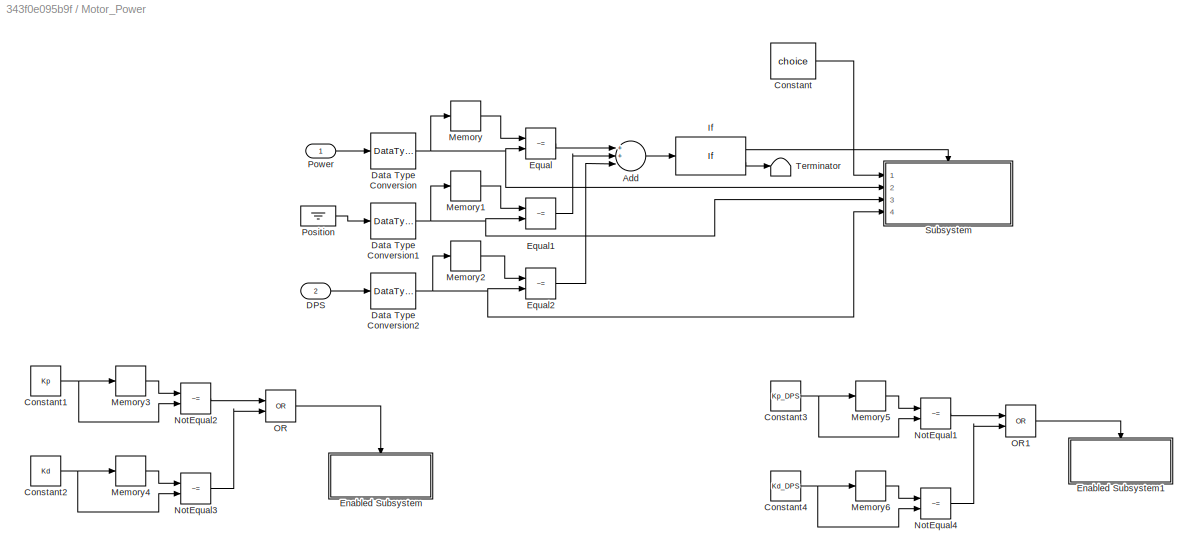
BLOCK [SubSystem] Motor_Power
  Ports = [2]
  RequestExecContextInheritance = off
BLOCK [Sum] Motor_Power/Add
  InputSameDT = off
  Inputs = 3
  OutDataTypeStr = Inherit: Inherit via internal rule
  Ports = [3, 1]
  SaturateOnIntegerOverflow = off
BLOCK [Constant] Motor_Power/Constant
  Value = choice
BLOCK [Constant] Motor_Power/Constant1
  Value = Kp
BLOCK [Constant] Motor_Power/Constant2
  Value = Kd
BLOCK [Constant] Motor_Power/Constant3
  Value = Kp_DPS
BLOCK [Constant] Motor_Power/Constant4
  Value = Kd_DPS
BLOCK [Inport] Motor_Power/DPS
  IconDisplay = Port number
  Port = 2
BLOCK [DataTypeConversion] Motor_Power/Data Type Conversion
  OutDataTypeStr = int8
  RndMeth = Floor
  SaturateOnIntegerOverflow = off
BLOCK [DataTypeConversion] Motor_Power/Data Type Conversion1
  OutDataTypeStr = int32
  RndMeth = Floor
  SaturateOnIntegerOverflow = off
BLOCK [DataTypeConversion] Motor_Power/Data Type Conversion2
  OutDataTypeStr = int16
  RndMeth = Floor
  SaturateOnIntegerOverflow = off
BLOCK [SubSystem] Motor_Power/Enabled Subsystem
  Ports = [0, 0, 1]
  RequestExecContextInheritance = off
  TreatAsAtomicUnit = on
BLOCK [Constant] Motor_Power/Enabled Subsystem/Address 
  OutDataTypeStr = uint8
BLOCK [Constant] Motor_Power/Enabled Subsystem/Address 1
  OutDataTypeStr = uint8
BLOCK [Constant] Motor_Power/Enabled Subsystem/Constant1
  Value = Kp
BLOCK [Constant] Motor_Power/Enabled Subsystem/Constant2
  OutDataTypeStr = uint8
BLOCK [Constant] Motor_Power/Enabled Subsystem/Constant3
  OutDataTypeStr = uint8
BLOCK [Constant] Motor_Power/Enabled Subsystem/Constant4
  Value = Kd
BLOCK [Constant] Motor_Power/Enabled Subsystem/Constant5
  OutDataTypeStr = uint8
BLOCK [Constant] Motor_Power/Enabled Subsystem/Constant6
  OutDataTypeStr = uint8
BLOCK [DataTypeConversion] Motor_Power/Enabled Subsystem/Data Type Conversion
  OutDataTypeStr = uint8
  RndMeth = Floor
  SaturateOnIntegerOverflow = off
BLOCK [DataTypeConversion] Motor_Power/Enabled Subsystem/Data Type Conversion1
  OutDataTypeStr = uint8
  RndMeth = Floor
  SaturateOnIntegerOverflow = off
BLOCK [EnablePort] Motor_Power/Enabled Subsystem/Enable
  Ports = []
BLOCK [Constant] Motor_Power/Enabled Subsystem/MotorPort
  OutDataTypeStr = uint8
  Value = MotorPort
BLOCK [Constant] Motor_Power/Enabled Subsystem/MotorPort1
  OutDataTypeStr = uint8
  Value = MotorPort
BLOCK [Mux] Motor_Power/Enabled Subsystem/Mux1
  DisplayOption = bar
  Ports = [4, 1]
BLOCK [Mux] Motor_Power/Enabled Subsystem/Mux2
  DisplayOption = bar
  Ports = [4, 1]
BLOCK [Reference] Motor_Power/Enabled Subsystem/SPI Master Transfer1  REF=raspberrypilib/SPI Master Transfer
  Ports = [1, 1]
  Priority = 6
  SourceBlock = raspberrypilib/SPI Master Transfer
  SourceProductBaseCode = RASPPI
  SourceProductName = Simulink Support Package for Raspberry Pi Hardware
  SourceType = codertarget.raspi.internal.SPIMasterTransfer
BLOCK [Reference] Motor_Power/Enabled Subsystem/SPI Master Transfer2  REF=raspberrypilib/SPI Master Transfer
  Ports = [1, 1]
  Priority = 6
  SourceBlock = raspberrypilib/SPI Master Transfer
  SourceProductBaseCode = RASPPI
  SourceProductName = Simulink Support Package for Raspberry Pi Hardware
  SourceType = codertarget.raspi.internal.SPIMasterTransfer
BLOCK [Constant] Motor_Power/Enabled Subsystem/SPI_MSG_SET_ MOTOR_POS_KD
  OutDataTypeStr = uint8
  OutMax = [28]
  OutMin = [1]
  Value = 24
BLOCK [Constant] Motor_Power/Enabled Subsystem/SPI_MSG_SET_ MOTOR_POS_KP
  OutDataTypeStr = uint8
  OutMax = [28]
  OutMin = [1]
  Value = 23
BLOCK [ArithShift] Motor_Power/Enabled Subsystem/Shift Arithmetic
  BitShiftDirection = Left
  BitShiftNumber = 8
  BitShiftNumberSource = Input port
  InputPortMap = u0,p1
  Ports = [2, 1]
BLOCK [ArithShift] Motor_Power/Enabled Subsystem/Shift Arithmetic1
  BitShiftDirection = Left
  BitShiftNumber = 8
  BitShiftNumberSource = Input port
  InputPortMap = u0,p1
  Ports = [2, 1]
BLOCK [Sum] Motor_Power/Enabled Subsystem/Subtract
  InputSameDT = off
  Inputs = +-
  OutDataTypeStr = Inherit: Inherit via internal rule
  Ports = [2, 1]
  SaturateOnIntegerOverflow = off
BLOCK [Sum] Motor_Power/Enabled Subsystem/Subtract1
  InputSameDT = off
  Inputs = +-
  OutDataTypeStr = Inherit: Inherit via internal rule
  Ports = [2, 1]
  SaturateOnIntegerOverflow = off
BLOCK [Terminator] Motor_Power/Enabled Subsystem/Terminator
BLOCK [Terminator] Motor_Power/Enabled Subsystem/Terminator1
BLOCK [SubSystem] Motor_Power/Enabled Subsystem1
  Ports = [0, 0, 1]
  RequestExecContextInheritance = off
  TreatAsAtomicUnit = on
BLOCK [Constant] Motor_Power/Enabled Subsystem1/Address 
  OutDataTypeStr = uint8
BLOCK [Constant] Motor_Power/Enabled Subsystem1/Address 1
  OutDataTypeStr = uint8
BLOCK [Constant] Motor_Power/Enabled Subsystem1/Constant1
  Value = Kp_DPS
BLOCK [Constant] Motor_Power/Enabled Subsystem1/Constant2
  OutDataTypeStr = uint8
BLOCK [Constant] Motor_Power/Enabled Subsystem1/Constant3
  OutDataTypeStr = uint8
BLOCK [Constant] Motor_Power/Enabled Subsystem1/Constant4
  Value = Kd_DPS
BLOCK [Constant] Motor_Power/Enabled Subsystem1/Constant5
  OutDataTypeStr = uint8
BLOCK [Constant] Motor_Power/Enabled Subsystem1/Constant6
  OutDataTypeStr = uint8
BLOCK [DataTypeConversion] Motor_Power/Enabled Subsystem1/Data Type Conversion
  OutDataTypeStr = uint8
  RndMeth = Floor
  SaturateOnIntegerOverflow = off
BLOCK [DataTypeConversion] Motor_Power/Enabled Subsystem1/Data Type Conversion1
  OutDataTypeStr = uint8
  RndMeth = Floor
  SaturateOnIntegerOverflow = off
BLOCK [EnablePort] Motor_Power/Enabled Subsystem1/Enable
  Ports = []
BLOCK [Constant] Motor_Power/Enabled Subsystem1/MotorPort
  OutDataTypeStr = uint8
  Value = MotorPort
BLOCK [Constant] Motor_Power/Enabled Subsystem1/MotorPort1
  OutDataTypeStr = uint8
  Value = MotorPort
BLOCK [Mux] Motor_Power/Enabled Subsystem1/Mux1
  DisplayOption = bar
  Ports = [4, 1]
BLOCK [Mux] Motor_Power/Enabled Subsystem1/Mux2
  DisplayOption = bar
  Ports = [4, 1]
BLOCK [Reference] Motor_Power/Enabled Subsystem1/SPI Master Transfer1  REF=raspberrypilib/SPI Master Transfer
  Ports = [1, 1]
  Priority = 6
  SourceBlock = raspberrypilib/SPI Master Transfer
  SourceProductBaseCode = RASPPI
  SourceProductName = Simulink Support Package for Raspberry Pi Hardware
  SourceType = codertarget.raspi.internal.SPIMasterTransfer
BLOCK [Reference] Motor_Power/Enabled Subsystem1/SPI Master Transfer2  REF=raspberrypilib/SPI Master Transfer
  Ports = [1, 1]
  Priority = 6
  SourceBlock = raspberrypilib/SPI Master Transfer
  SourceProductBaseCode = RASPPI
  SourceProductName = Simulink Support Package for Raspberry Pi Hardware
  SourceType = codertarget.raspi.internal.SPIMasterTransfer
BLOCK [Constant] Motor_Power/Enabled Subsystem1/SPI_MSG_SET_ MOTOR_DPSPOS_KD
  OutDataTypeStr = uint8
  OutMax = [28]
  OutMin = [1]
  Value = 27
BLOCK [Constant] Motor_Power/Enabled Subsystem1/SPI_MSG_SET_ MOTOR_DPS_KP
  OutDataTypeStr = uint8
  OutMax = [28]
  OutMin = [1]
  Value = 26
BLOCK [ArithShift] Motor_Power/Enabled Subsystem1/Shift Arithmetic
  BitShiftDirection = Left
  BitShiftNumber = 8
  BitShiftNumberSource = Input port
  InputPortMap = u0,p1
  Ports = [2, 1]
BLOCK [ArithShift] Motor_Power/Enabled Subsystem1/Shift Arithmetic1
  BitShiftDirection = Left
  BitShiftNumber = 8
  BitShiftNumberSource = Input port
  InputPortMap = u0,p1
  Ports = [2, 1]
BLOCK [Sum] Motor_Power/Enabled Subsystem1/Subtract
  InputSameDT = off
  Inputs = +-
  OutDataTypeStr = Inherit: Inherit via internal rule
  Ports = [2, 1]
  SaturateOnIntegerOverflow = off
BLOCK [Sum] Motor_Power/Enabled Subsystem1/Subtract1
  InputSameDT = off
  Inputs = +-
  OutDataTypeStr = Inherit: Inherit via internal rule
  Ports = [2, 1]
  SaturateOnIntegerOverflow = off
BLOCK [Terminator] Motor_Power/Enabled Subsystem1/Terminator
BLOCK [Terminator] Motor_Power/Enabled Subsystem1/Terminator1
BLOCK [RelationalOperator] Motor_Power/Equal
  InputSameDT = off
  Operator = ~=
  Ports = [2, 1]
  RndMeth = Simplest
BLOCK [RelationalOperator] Motor_Power/Equal1
  InputSameDT = off
  Operator = ~=
  Ports = [2, 1]
  RndMeth = Simplest
BLOCK [RelationalOperator] Motor_Power/Equal2
  InputSameDT = off
  Operator = ~=
  Ports = [2, 1]
  RndMeth = Simplest
BLOCK [If] Motor_Power/If
  Ports = [1, 2]
BLOCK [Memory] Motor_Power/Memory
  InheritSampleTime = on
BLOCK [Memory] Motor_Power/Memory1
  InheritSampleTime = on
BLOCK [Memory] Motor_Power/Memory2
  InheritSampleTime = on
BLOCK [Memory] Motor_Power/Memory3
BLOCK [Memory] Motor_Power/Memory4
BLOCK [Memory] Motor_Power/Memory5
BLOCK [Memory] Motor_Power/Memory6
BLOCK [RelationalOperator] Motor_Power/NotEqual1
  InputSameDT = off
  Operator = ~=
  OutDataTypeStr = boolean
  Ports = [2, 1]
  RndMeth = Simplest
BLOCK [RelationalOperator] Motor_Power/NotEqual2
  InputSameDT = off
  Operator = ~=
  OutDataTypeStr = boolean
  Ports = [2, 1]
  RndMeth = Simplest
BLOCK [RelationalOperator] Motor_Power/NotEqual3
  InputSameDT = off
  Operator = ~=
  OutDataTypeStr = boolean
  Ports = [2, 1]
  RndMeth = Simplest
BLOCK [RelationalOperator] Motor_Power/NotEqual4
  InputSameDT = off
  Operator = ~=
  OutDataTypeStr = boolean
  Ports = [2, 1]
  RndMeth = Simplest
BLOCK [Logic] Motor_Power/OR
  AllPortsSameDT = off
  IconShape = distinctive
  Operator = OR
  OutDataTypeStr = boolean
  Ports = [2, 1]
BLOCK [Logic] Motor_Power/OR1
  AllPortsSameDT = off
  IconShape = distinctive
  Operator = OR
  OutDataTypeStr = boolean
  Ports = [2, 1]
BLOCK [Ground] Motor_Power/Position
BLOCK [Inport] Motor_Power/Power
  IconDisplay = Port number
BLOCK [SubSystem] Motor_Power/Subsystem
  Ports = [4, 0, 0, 0, 0, 0, 0, 1]
  RequestExecContextInheritance = off
BLOCK [ActionPort] Motor_Power/Subsystem/Action Port
  ActionType = then
BLOCK [Inport] Motor_Power/Subsystem/Choice
  IconDisplay = Port number
BLOCK [Inport] Motor_Power/Subsystem/DPS
  IconDisplay = Port number
  Port = 4
BLOCK [Inport] Motor_Power/Subsystem/Position
  IconDisplay = Port number
  Port = 3
BLOCK [Inport] Motor_Power/Subsystem/Power
  IconDisplay = Port number
  Port = 2
BLOCK [SubSystem] Motor_Power/Subsystem/Set_DPS
  Ports = [1, 0, 0, 0, 0, 0, 0, 1]
  RequestExecContextInheritance = off
BLOCK [ActionPort] Motor_Power/Subsystem/Set_DPS/Action Port
  ActionType = case
BLOCK [Constant] Motor_Power/Subsystem/Set_DPS/Address 
  OutDataTypeStr = uint8
BLOCK [Reference] Motor_Power/Subsystem/Set_DPS/Bit Shift  REF=hdlsllib/Logic and Bit
Operations/Bit Shift
  Ports = [1, 1]
  SourceBlock = hdlsllib/Logic and Bit\nOperations/Bit Shift
  SourceProductBaseCode = HD
  SourceProductName = HDL Coder
  SourceType = Bit Shift
BLOCK [Constant] Motor_Power/Subsystem/Set_DPS/Constant2
  OutDataTypeStr = uint8
BLOCK [Constant] Motor_Power/Subsystem/Set_DPS/Constant3
  OutDataTypeStr = uint8
BLOCK [Inport] Motor_Power/Subsystem/Set_DPS/DPS
  IconDisplay = Port number
  OutDataTypeStr = int16
BLOCK [DataTypeConversion] Motor_Power/Subsystem/Set_DPS/Data Type Conversion
  OutDataTypeStr = uint8
  RndMeth = Floor
  SaturateOnIntegerOverflow = off
BLOCK [DataTypeConversion] Motor_Power/Subsystem/Set_DPS/Data Type Conversion1
  OutDataTypeStr = uint8
  RndMeth = Floor
  SaturateOnIntegerOverflow = off
BLOCK [Constant] Motor_Power/Subsystem/Set_DPS/MotorPort
  OutDataTypeStr = uint8
  Value = MotorPort
BLOCK [Mux] Motor_Power/Subsystem/Set_DPS/Mux2
  DisplayOption = bar
  Inputs = 5
  Ports = [5, 1]
BLOCK [Reference] Motor_Power/Subsystem/Set_DPS/SPI Master Transfer2  REF=raspberrypilib/SPI Master Transfer
  Ports = [1, 1]
  Priority = 6
  SourceBlock = raspberrypilib/SPI Master Transfer
  SourceProductBaseCode = RASPPI
  SourceProductName = Simulink Support Package for Raspberry Pi Hardware
  SourceType = codertarget.raspi.internal.SPIMasterTransfer
BLOCK [Constant] Motor_Power/Subsystem/Set_DPS/SPI_MSG_SET_ MOTOR_DPS
  OutDataTypeStr = uint8
  OutMax = [28]
  OutMin = [1]
  Value = 25
BLOCK [ArithShift] Motor_Power/Subsystem/Set_DPS/Shift Arithmetic
  BitShiftDirection = Left
  BitShiftNumber = 8
  BitShiftNumberSource = Input port
  InputPortMap = u0,p1
  Ports = [2, 1]
BLOCK [Sum] Motor_Power/Subsystem/Set_DPS/Subtract
  InputSameDT = off
  Inputs = +-
  OutDataTypeStr = Inherit: Inherit via internal rule
  Ports = [2, 1]
  SaturateOnIntegerOverflow = off
BLOCK [Terminator] Motor_Power/Subsystem/Set_DPS/Terminator
BLOCK [SubSystem] Motor_Power/Subsystem/Set_Limit
  Ports = [2, 0, 0, 0, 0, 0, 0, 1]
  RequestExecContextInheritance = off
BLOCK [ActionPort] Motor_Power/Subsystem/Set_Limit/Action Port
  ActionType = case
BLOCK [Constant] Motor_Power/Subsystem/Set_Limit/Address 
  OutDataTypeStr = uint8
BLOCK [Reference] Motor_Power/Subsystem/Set_Limit/Bit Shift  REF=hdlsllib/Logic and Bit
Operations/Bit Shift
  Ports = [1, 1]
  SourceBlock = hdlsllib/Logic and Bit\nOperations/Bit Shift
  SourceProductBaseCode = HD
  SourceProductName = HDL Coder
  SourceType = Bit Shift
BLOCK [Constant] Motor_Power/Subsystem/Set_Limit/Constant2
  OutDataTypeStr = uint8
BLOCK [Constant] Motor_Power/Subsystem/Set_Limit/Constant3
  OutDataTypeStr = uint8
BLOCK [Inport] Motor_Power/Subsystem/Set_Limit/DPS
  IconDisplay = Port number
  OutDataTypeStr = int16
  Port = 2
BLOCK [DataTypeConversion] Motor_Power/Subsystem/Set_Limit/Data Type Conversion
  OutDataTypeStr = uint8
  RndMeth = Floor
  SaturateOnIntegerOverflow = off
BLOCK [DataTypeConversion] Motor_Power/Subsystem/Set_Limit/Data Type Conversion1
  OutDataTypeStr = uint8
  RndMeth = Floor
  SaturateOnIntegerOverflow = off
BLOCK [DataTypeConversion] Motor_Power/Subsystem/Set_Limit/Data Type Conversion2
  OutDataTypeStr = uint8
  RndMeth = Floor
  SaturateOnIntegerOverflow = off
BLOCK [Constant] Motor_Power/Subsystem/Set_Limit/MotorPort
  OutDataTypeStr = uint8
  Value = MotorPort
BLOCK [Mux] Motor_Power/Subsystem/Set_Limit/Mux2
  DisplayOption = bar
  Inputs = 6
  Ports = [6, 1]
BLOCK [Inport] Motor_Power/Subsystem/Set_Limit/Power
  IconDisplay = Port number
  OutDataTypeStr = int8
BLOCK [Reference] Motor_Power/Subsystem/Set_Limit/SPI Master Transfer2  REF=raspberrypilib/SPI Master Transfer
  Ports = [1, 1]
  Priority = 6
  SourceBlock = raspberrypilib/SPI Master Transfer
  SourceProductBaseCode = RASPPI
  SourceProductName = Simulink Support Package for Raspberry Pi Hardware
  SourceType = codertarget.raspi.internal.SPIMasterTransfer
BLOCK [Constant] Motor_Power/Subsystem/Set_Limit/SPI_MSG_SET_ MOTOR_LIMITS
  OutDataTypeStr = uint8
  OutMax = [28]
  OutMin = [1]
  Value = 28
BLOCK [ArithShift] Motor_Power/Subsystem/Set_Limit/Shift Arithmetic
  BitShiftDirection = Left
  BitShiftNumber = 8
  BitShiftNumberSource = Input port
  InputPortMap = u0,p1
  Ports = [2, 1]
BLOCK [Sum] Motor_Power/Subsystem/Set_Limit/Subtract
  InputSameDT = off
  Inputs = +-
  OutDataTypeStr = Inherit: Inherit via internal rule
  Ports = [2, 1]
  SaturateOnIntegerOverflow = off
BLOCK [Terminator] Motor_Power/Subsystem/Set_Limit/Terminator
BLOCK [SubSystem] Motor_Power/Subsystem/Set_Position
  Ports = [1, 0, 0, 0, 0, 0, 0, 1]
  RequestExecContextInheritance = off
BLOCK [ActionPort] Motor_Power/Subsystem/Set_Position/Action Port
  ActionType = case
BLOCK [Constant] Motor_Power/Subsystem/Set_Position/Address 
  OutDataTypeStr = uint8
BLOCK [Reference] Motor_Power/Subsystem/Set_Position/Bit Shift  REF=hdlsllib/Logic and Bit
Operations/Bit Shift
  Ports = [1, 1]
  SourceBlock = hdlsllib/Logic and Bit\nOperations/Bit Shift
  SourceProductBaseCode = HD
  SourceProductName = HDL Coder
  SourceType = Bit Shift
BLOCK [Reference] Motor_Power/Subsystem/Set_Position/Bit Shift1  REF=hdlsllib/Logic and Bit
Operations/Bit Shift
  Ports = [1, 1]
  SourceBlock = hdlsllib/Logic and Bit\nOperations/Bit Shift
  SourceProductBaseCode = HD
  SourceProductName = HDL Coder
  SourceType = Bit Shift
BLOCK [Reference] Motor_Power/Subsystem/Set_Position/Bit Shift2  REF=hdlsllib/Logic and Bit
Operations/Bit Shift
  Ports = [1, 1]
  SourceBlock = hdlsllib/Logic and Bit\nOperations/Bit Shift
  SourceProductBaseCode = HD
  SourceProductName = HDL Coder
  SourceType = Bit Shift
BLOCK [Constant] Motor_Power/Subsystem/Set_Position/Constant2
  OutDataTypeStr = uint8
BLOCK [Constant] Motor_Power/Subsystem/Set_Position/Constant3
  OutDataTypeStr = uint8
BLOCK [DataTypeConversion] Motor_Power/Subsystem/Set_Position/Data Type Conversion
  OutDataTypeStr = uint8
  RndMeth = Floor
  SaturateOnIntegerOverflow = off
BLOCK [DataTypeConversion] Motor_Power/Subsystem/Set_Position/Data Type Conversion1
  OutDataTypeStr = uint8
  RndMeth = Floor
  SaturateOnIntegerOverflow = off
BLOCK [DataTypeConversion] Motor_Power/Subsystem/Set_Position/Data Type Conversion2
  OutDataTypeStr = uint8
  RndMeth = Floor
  SaturateOnIntegerOverflow = off
BLOCK [DataTypeConversion] Motor_Power/Subsystem/Set_Position/Data Type Conversion3
  OutDataTypeStr = uint8
  RndMeth = Floor
  SaturateOnIntegerOverflow = off
BLOCK [Constant] Motor_Power/Subsystem/Set_Position/MotorPort
  OutDataTypeStr = uint8
  Value = MotorPort
BLOCK [Mux] Motor_Power/Subsystem/Set_Position/Mux2
  DisplayOption = bar
  Inputs = 7
  Ports = [7, 1]
BLOCK [Inport] Motor_Power/Subsystem/Set_Position/Position
  IconDisplay = Port number
  OutDataTypeStr = int32
BLOCK [Reference] Motor_Power/Subsystem/Set_Position/SPI Master Transfer2  REF=raspberrypilib/SPI Master Transfer
  Ports = [1, 1]
  Priority = 6
  SourceBlock = raspberrypilib/SPI Master Transfer
  SourceProductBaseCode = RASPPI
  SourceProductName = Simulink Support Package for Raspberry Pi Hardware
  SourceType = codertarget.raspi.internal.SPIMasterTransfer
BLOCK [Constant] Motor_Power/Subsystem/Set_Position/SPI_MSG_SET_ MOTOR_POSITION
  OutDataTypeStr = uint8
  OutMax = [28]
  OutMin = [1]
  Value = 22
BLOCK [ArithShift] Motor_Power/Subsystem/Set_Position/Shift Arithmetic
  BitShiftDirection = Left
  BitShiftNumber = 8
  BitShiftNumberSource = Input port
  InputPortMap = u0,p1
  Ports = [2, 1]
BLOCK [Sum] Motor_Power/Subsystem/Set_Position/Subtract
  InputSameDT = off
  Inputs = +-
  OutDataTypeStr = Inherit: Inherit via internal rule
  Ports = [2, 1]
  SaturateOnIntegerOverflow = off
BLOCK [Terminator] Motor_Power/Subsystem/Set_Position/Terminator
BLOCK [SubSystem] Motor_Power/Subsystem/Set_Power
  Ports = [1, 0, 0, 0, 0, 0, 0, 1]
  RequestExecContextInheritance = off
BLOCK [ActionPort] Motor_Power/Subsystem/Set_Power/Action Port
  ActionType = case
BLOCK [Constant] Motor_Power/Subsystem/Set_Power/Address 
  OutDataTypeStr = uint8
BLOCK [Constant] Motor_Power/Subsystem/Set_Power/Constant2
  OutDataTypeStr = uint8
BLOCK [Constant] Motor_Power/Subsystem/Set_Power/Constant3
  OutDataTypeStr = uint8
BLOCK [DataTypeConversion] Motor_Power/Subsystem/Set_Power/Data Type Conversion
  OutDataTypeStr = uint8
  RndMeth = Floor
  SaturateOnIntegerOverflow = off
BLOCK [Constant] Motor_Power/Subsystem/Set_Power/MotorPort
  OutDataTypeStr = uint8
  Value = MotorPort
BLOCK [Mux] Motor_Power/Subsystem/Set_Power/Mux2
  DisplayOption = bar
  Ports = [4, 1]
BLOCK [Inport] Motor_Power/Subsystem/Set_Power/Power
  IconDisplay = Port number
  OutDataTypeStr = int8
BLOCK [Reference] Motor_Power/Subsystem/Set_Power/SPI Master Transfer2  REF=raspberrypilib/SPI Master Transfer
  Ports = [1, 1]
  Priority = 6
  SourceBlock = raspberrypilib/SPI Master Transfer
  SourceProductBaseCode = RASPPI
  SourceProductName = Simulink Support Package for Raspberry Pi Hardware
  SourceType = codertarget.raspi.internal.SPIMasterTransfer
BLOCK [Constant] Motor_Power/Subsystem/Set_Power/SPI_MSG_SET_ MOTOR_POWER
  OutDataTypeStr = uint8
  OutMax = [28]
  OutMin = [1]
  Value = 21
BLOCK [ArithShift] Motor_Power/Subsystem/Set_Power/Shift Arithmetic
  BitShiftDirection = Left
  BitShiftNumber = 8
  BitShiftNumberSource = Input port
  InputPortMap = u0,p1
  Ports = [2, 1]
BLOCK [Sum] Motor_Power/Subsystem/Set_Power/Subtract
  InputSameDT = off
  Inputs = +-
  OutDataTypeStr = Inherit: Inherit via internal rule
  Ports = [2, 1]
  SaturateOnIntegerOverflow = off
BLOCK [Terminator] Motor_Power/Subsystem/Set_Power/Terminator
BLOCK [SwitchCase] Motor_Power/Subsystem/Switch Case
  CaseConditions = {1,2,3,4}
  Ports = [1, 5]
BLOCK [Terminator] Motor_Power/Subsystem/Terminator
BLOCK [Terminator] Motor_Power/Terminator
BLOCK [SubSystem] Motor_Status
  Ports = [1, 5]
  RequestExecContextInheritance = off
BLOCK [Logic] Motor_Status/AND
  AllPortsSameDT = off
  IconShape = distinctive
  OutDataTypeStr = boolean
  Ports = [2, 1]
BLOCK [Constant] Motor_Status/Constant
BLOCK [Outport] Motor_Status/DPS
  IconDisplay = Port number
  Port = 4
BLOCK [Outport] Motor_Status/Error
  IconDisplay = Port number
  Port = 5
BLOCK [Inport] Motor_Status/ExtSignal
  IconDisplay = Port number
BLOCK [SubSystem] Motor_Status/Get motor values
  Ports = [3, 5, 1]
  RequestExecContextInheritance = off
BLOCK [Constant] Motor_Status/Get motor values/0xA5
  Value = 165
BLOCK [Constant] Motor_Status/Get motor values/Address 
  OutDataTypeStr = uint8
BLOCK [Constant] Motor_Status/Get motor values/Address3
  OutDataTypeStr = uint8
  Value = [0 0 0 0 0 0 0 0 0 0]
BLOCK [Reference] Motor_Status/Get motor values/Byte Packing   REF=xpcutilitieslib/Byte Packing 
  Ports = [4, 1]
  SourceBlock = xpcutilitieslib/Byte Packing
  SourceProductBaseCode = XP
  SourceProductName = Simulink Real-Time
  SourceType = xpcbytepacking
BLOCK [Reference] Motor_Status/Get motor values/Byte Packing 1  REF=xpcutilitieslib/Byte Packing 
  Ports = [2, 1]
  SourceBlock = xpcutilitieslib/Byte Packing
  SourceProductBaseCode = XP
  SourceProductName = Simulink Real-Time
  SourceType = xpcbytepacking
BLOCK [Selector] Motor_Status/Get motor values/Bytes[3-11]
  IndexMode = Zero-based
  IndexOptions = Index vector (dialog)
  Indices = [3 4 5 6 7 8 9 10 11]
  InputPortWidth = 12
  OutputSizes = 1
  Ports = [1, 1]
BLOCK [Outport] Motor_Status/Get motor values/DPS
  IconDisplay = Port number
  Port = 4
BLOCK [DataTypeConversion] Motor_Status/Get motor values/Data Type Conversion
  OutDataTypeStr = uint8
  RndMeth = Floor
  SaturateOnIntegerOverflow = off
BLOCK [DataTypeConversion] Motor_Status/Get motor values/Data Type Conversion1
  OutDataTypeStr = int8
  RndMeth = Floor
  SaturateOnIntegerOverflow = off
BLOCK [Demux] Motor_Status/Get motor values/Demux
  DisplayOption = bar
  Outputs = 9
  Ports = [1, 9]
BLOCK [EnablePort] Motor_Status/Get motor values/Enable
  Ports = []
BLOCK [Outport] Motor_Status/Get motor values/Error
  IconDisplay = Port number
  Port = 5
BLOCK [Inport] Motor_Status/Get motor values/ExtSignal
  IconDisplay = Port number
  Port = 3
BLOCK [Inport] Motor_Status/Get motor values/MotorPort
  IconDisplay = Port number
BLOCK [Mux] Motor_Status/Get motor values/Mux2
  DisplayOption = bar
  Inputs = 3
  Ports = [3, 1]
BLOCK [Logic] Motor_Status/Get motor values/NAND
  AllPortsSameDT = off
  IconShape = distinctive
  Operator = NAND
  OutDataTypeStr = boolean
  Ports = [2, 1]
BLOCK [Outport] Motor_Status/Get motor values/Position
  IconDisplay = Port number
  Port = 3
BLOCK [Outport] Motor_Status/Get motor values/Power
  IconDisplay = Port number
  Port = 2
BLOCK [Inport] Motor_Status/Get motor values/ResetMode
  IconDisplay = Port number
  Port = 2
BLOCK [Reference] Motor_Status/Get motor values/SPI Master Transfer2  REF=raspberrypilib/SPI Master Transfer
  Ports = [1, 1]
  Priority = 6
  SourceBlock = raspberrypilib/SPI Master Transfer
  SourceProductBaseCode = RASPPI
  SourceProductName = Simulink Support Package for Raspberry Pi Hardware
  SourceType = codertarget.raspi.internal.SPIMasterTransfer
BLOCK [Constant] Motor_Status/Get motor values/SPI_MSG_GET_ MOTOR_STATUS offset
  OutDataTypeStr = uint8
  OutMin = [1]
  Value = 33
BLOCK [Outport] Motor_Status/Get motor values/State
  IconDisplay = Port number
BLOCK [Sum] Motor_Status/Get motor values/Sum
  InputSameDT = off
  OutDataTypeStr = uint8
  Ports = [2, 1]
  SaturateOnIntegerOverflow = off
BLOCK [SwitchCase] Motor_Status/Get motor values/Switch Case
  Ports = [1, 2]
BLOCK [SubSystem] Motor_Status/Get motor values/Switch Case Action Subsystem
  Ports = [2, 0, 0, 0, 0, 0, 0, 1]
  RequestExecContextInheritance = off
  TreatAsAtomicUnit = on
BLOCK [Logic] Motor_Status/Get motor values/Switch Case Action Subsystem/AND
  AllPortsSameDT = off
  IconShape = distinctive
  OutDataTypeStr = boolean
  Ports = [2, 1]
BLOCK [ActionPort] Motor_Status/Get motor values/Switch Case Action Subsystem/Action Port
  ActionType = case
BLOCK [Constant] Motor_Status/Get motor values/Switch Case Action Subsystem/Constant
  Value = 0
BLOCK [RelationalOperator] Motor_Status/Get motor values/Switch Case Action Subsystem/Equal
  InputSameDT = off
  Operator = ~=
  OutDataTypeStr = boolean
  Ports = [2, 1]
  RndMeth = Simplest
BLOCK [RelationalOperator] Motor_Status/Get motor values/Switch Case Action Subsystem/Equal1
  InputSameDT = off
  Operator = ~=
  OutDataTypeStr = boolean
  Ports = [2, 1]
  RndMeth = Simplest
BLOCK [Inport] Motor_Status/Get motor values/Switch Case Action Subsystem/ExtSignal
  IconDisplay = Port number
BLOCK [Memory] Motor_Status/Get motor values/Switch Case Action Subsystem/Memory
BLOCK [Inport] Motor_Status/Get motor values/Switch Case Action Subsystem/MotorPort
  IconDisplay = Port number
  Port = 2
BLOCK [SubSystem] Motor_Status/Get motor values/Switch Case Action Subsystem/Subsystem
  Ports = [1, 0, 1]
  RequestExecContextInheritance = off
BLOCK [EnablePort] Motor_Status/Get motor values/Switch Case Action Subsystem/Subsystem/Enable
  Ports = []
BLOCK [SubSystem] Motor_Status/Get motor values/Switch Case Action Subsystem/Subsystem/Encoder
  Ports = [1, 2]
  RequestExecContextInheritance = off
BLOCK [Constant] Motor_Status/Get motor values/Switch Case Action Subsystem/Subsystem/Encoder/0xA5
  Value = 165
BLOCK [Constant] Motor_Status/Get motor values/Switch Case Action Subsystem/Subsystem/Encoder/Address 
  OutDataTypeStr = uint8
BLOCK [Constant] Motor_Status/Get motor values/Switch Case Action Subsystem/Subsystem/Encoder/Address3
  OutDataTypeStr = uint8
  Value = [0 0 0 0 0 0 0 0]
BLOCK [Reference] Motor_Status/Get motor values/Switch Case Action Subsystem/Subsystem/Encoder/Byte Packing   REF=xpcutilitieslib/Byte Packing 
  Ports = [4, 1]
  SourceBlock = xpcutilitieslib/Byte Packing
  SourceProductBaseCode = XP
  SourceProductName = Simulink Real-Time
  SourceType = xpcbytepacking
BLOCK [Selector] Motor_Status/Get motor values/Switch Case Action Subsystem/Subsystem/Encoder/Bytes[3-7]
  IndexMode = Zero-based
  IndexOptions = Index vector (dialog)
  Indices = [3 4 5 6 7]
  InputPortWidth = 10
  OutputSizes = 1
  Ports = [1, 1]
BLOCK [Demux] Motor_Status/Get motor values/Switch Case Action Subsystem/Subsystem/Encoder/Demux
  DisplayOption = bar
  Outputs = 5
  Ports = [1, 5]
BLOCK [Outport] Motor_Status/Get motor values/Switch Case Action Subsystem/Subsystem/Encoder/Error
  IconDisplay = Port number
  Port = 2
BLOCK [Inport] Motor_Status/Get motor values/Switch Case Action Subsystem/Subsystem/Encoder/MotorPort
  IconDisplay = Port number
BLOCK [Mux] Motor_Status/Get motor values/Switch Case Action Subsystem/Subsystem/Encoder/Mux2
  DisplayOption = bar
  Inputs = 3
  Ports = [3, 1]
BLOCK [Logic] Motor_Status/Get motor values/Switch Case Action Subsystem/Subsystem/Encoder/NAND
  AllPortsSameDT = off
  IconShape = distinctive
  Operator = NAND
  OutDataTypeStr = boolean
  Ports = [2, 1]
BLOCK [Reference] Motor_Status/Get motor values/Switch Case Action Subsystem/Subsystem/Encoder/SPI Master Transfer2  REF=raspberrypilib/SPI Master Transfer
  Ports = [1, 1]
  Priority = 6
  SourceBlock = raspberrypilib/SPI Master Transfer
  SourceProductBaseCode = RASPPI
  SourceProductName = Simulink Support Package for Raspberry Pi Hardware
  SourceType = codertarget.raspi.internal.SPIMasterTransfer
BLOCK [Constant] Motor_Status/Get motor values/Switch Case Action Subsystem/Subsystem/Encoder/SPI_MSG_GET_ MOTOR_ENCODER offset
  OutDataTypeStr = uint8
  Value = 29
BLOCK [Sum] Motor_Status/Get motor values/Switch Case Action Subsystem/Subsystem/Encoder/Sum
  InputSameDT = off
  OutDataTypeStr = uint8
  Ports = [2, 1]
  SaturateOnIntegerOverflow = off
BLOCK [Outport] Motor_Status/Get motor values/Switch Case Action Subsystem/Subsystem/Encoder/Value
  IconDisplay = Port number
BLOCK [Inport] Motor_Status/Get motor values/Switch Case Action Subsystem/Subsystem/MotorPort
  IconDisplay = Port number
BLOCK [SubSystem] Motor_Status/Get motor values/Switch Case Action Subsystem/Subsystem/Motor_Offset
  Ports = [2]
  RequestExecContextInheritance = off
BLOCK [Constant] Motor_Status/Get motor values/Switch Case Action Subsystem/Subsystem/Motor_Offset/Address 
  OutDataTypeStr = uint8
BLOCK [Reference] Motor_Status/Get motor values/Switch Case Action Subsystem/Subsystem/Motor_Offset/Bit Shift  REF=hdlsllib/Logic and Bit
Operations/Bit Shift
  Ports = [1, 1]
  SourceBlock = hdlsllib/Logic and Bit\nOperations/Bit Shift
  SourceProductBaseCode = HD
  SourceProductName = HDL Coder
  SourceType = Bit Shift
BLOCK [Reference] Motor_Status/Get motor values/Switch Case Action Subsystem/Subsystem/Motor_Offset/Bit Shift1  REF=hdlsllib/Logic and Bit
Operations/Bit Shift
  Ports = [1, 1]
  SourceBlock = hdlsllib/Logic and Bit\nOperations/Bit Shift
  SourceProductBaseCode = HD
  SourceProductName = HDL Coder
  SourceType = Bit Shift
BLOCK [Reference] Motor_Status/Get motor values/Switch Case Action Subsystem/Subsystem/Motor_Offset/Bit Shift2  REF=hdlsllib/Logic and Bit
Operations/Bit Shift
  Ports = [1, 1]
  SourceBlock = hdlsllib/Logic and Bit\nOperations/Bit Shift
  SourceProductBaseCode = HD
  SourceProductName = HDL Coder
  SourceType = Bit Shift
BLOCK [Constant] Motor_Status/Get motor values/Switch Case Action Subsystem/Subsystem/Motor_Offset/Constant2
  OutDataTypeStr = uint8
BLOCK [Constant] Motor_Status/Get motor values/Switch Case Action Subsystem/Subsystem/Motor_Offset/Constant3
  OutDataTypeStr = uint8
BLOCK [DataTypeConversion] Motor_Status/Get motor values/Switch Case Action Subsystem/Subsystem/Motor_Offset/Data Type Conversion
  OutDataTypeStr = uint8
  RndMeth = Floor
  SaturateOnIntegerOverflow = off
BLOCK [DataTypeConversion] Motor_Status/Get motor values/Switch Case Action Subsystem/Subsystem/Motor_Offset/Data Type Conversion1
  OutDataTypeStr = uint8
  RndMeth = Floor
  SaturateOnIntegerOverflow = off
BLOCK [DataTypeConversion] Motor_Status/Get motor values/Switch Case Action Subsystem/Subsystem/Motor_Offset/Data Type Conversion2
  OutDataTypeStr = uint8
  RndMeth = Floor
  SaturateOnIntegerOverflow = off
BLOCK [DataTypeConversion] Motor_Status/Get motor values/Switch Case Action Subsystem/Subsystem/Motor_Offset/Data Type Conversion3
  OutDataTypeStr = uint8
  RndMeth = Floor
  SaturateOnIntegerOverflow = off
BLOCK [Inport] Motor_Status/Get motor values/Switch Case Action Subsystem/Subsystem/Motor_Offset/MotorPort
  IconDisplay = Port number
  OutDataTypeStr = uint8
  Port = 2
BLOCK [Mux] Motor_Status/Get motor values/Switch Case Action Subsystem/Subsystem/Motor_Offset/Mux2
  DisplayOption = bar
  Inputs = 7
  Ports = [7, 1]
BLOCK [Inport] Motor_Status/Get motor values/Switch Case Action Subsystem/Subsystem/Motor_Offset/Offset
  IconDisplay = Port number
  OutDataTypeStr = int32
BLOCK [Reference] Motor_Status/Get motor values/Switch Case Action Subsystem/Subsystem/Motor_Offset/SPI Master Transfer2  REF=raspberrypilib/SPI Master Transfer
  Ports = [1, 1]
  Priority = 6
  SourceBlock = raspberrypilib/SPI Master Transfer
  SourceProductBaseCode = RASPPI
  SourceProductName = Simulink Support Package for Raspberry Pi Hardware
  SourceType = codertarget.raspi.internal.SPIMasterTransfer
BLOCK [Constant] Motor_Status/Get motor values/Switch Case Action Subsystem/Subsystem/Motor_Offset/SPI_MSG_ OFFSET_ENCODER
  OutDataTypeStr = uint8
  OutMin = [1]
  Value = 29
BLOCK [ArithShift] Motor_Status/Get motor values/Switch Case Action Subsystem/Subsystem/Motor_Offset/Shift Arithmetic
  BitShiftDirection = Left
  BitShiftNumber = 8
  BitShiftNumberSource = Input port
  InputPortMap = u0,p1
  Ports = [2, 1]
BLOCK [Sum] Motor_Status/Get motor values/Switch Case Action Subsystem/Subsystem/Motor_Offset/Subtract
  InputSameDT = off
  Inputs = +-
  OutDataTypeStr = Inherit: Inherit via internal rule
  Ports = [2, 1]
  SaturateOnIntegerOverflow = off
BLOCK [Terminator] Motor_Status/Get motor values/Switch Case Action Subsystem/Subsystem/Motor_Offset/Terminator
BLOCK [Terminator] Motor_Status/Get motor values/Switch Case Action Subsystem/Subsystem/Terminator
BLOCK [Terminator] Motor_Status/Get motor values/Terminator
BLOCK [Memory] Motor_Status/Memory
BLOCK [Constant] Motor_Status/MotorPort
  OutDataTypeStr = uint8
  Value = MotorPort
BLOCK [Logic] Motor_Status/NOT
  AllPortsSameDT = off
  IconShape = distinctive
  Operator = NOT
  OutDataTypeStr = boolean
  Ports = [1, 1]
BLOCK [Logic] Motor_Status/NOT1
  AllPortsSameDT = off
  IconShape = distinctive
  Operator = NOT
  OutDataTypeStr = boolean
  Ports = [1, 1]
BLOCK [Outport] Motor_Status/Position
  IconDisplay = Port number
  Port = 3
BLOCK [Outport] Motor_Status/Power
  IconDisplay = Port number
  Port = 2
BLOCK [SubSystem] Motor_Status/Reset Encoder once
  Ports = [1, 1, 1]
  RequestExecContextInheritance = off
BLOCK [EnablePort] Motor_Status/Reset Encoder once/Enable
  Ports = []
BLOCK [SubSystem] Motor_Status/Reset Encoder once/Encoder
  AncestorBlock = BrickPi/Motor_Encoder/Subsystem
  Ports = [1, 2]
  RequestExecContextInheritance = off
BLOCK [Constant] Motor_Status/Reset Encoder once/Encoder/0xA5
  Value = 165
BLOCK [Constant] Motor_Status/Reset Encoder once/Encoder/Address 
  OutDataTypeStr = uint8
BLOCK [Constant] Motor_Status/Reset Encoder once/Encoder/Address3
  OutDataTypeStr = uint8
  Value = [0 0 0 0 0 0 0 0]
BLOCK [Reference] Motor_Status/Reset Encoder once/Encoder/Byte Packing   REF=xpcutilitieslib/Byte Packing 
  Ports = [4, 1]
  SourceBlock = xpcutilitieslib/Byte Packing
  SourceProductBaseCode = XP
  SourceProductName = Simulink Real-Time
  SourceType = xpcbytepacking
BLOCK [Selector] Motor_Status/Reset Encoder once/Encoder/Bytes[3-7]
  IndexMode = Zero-based
  IndexOptions = Index vector (dialog)
  Indices = [3 4 5 6 7]
  InputPortWidth = 10
  OutputSizes = 1
  Ports = [1, 1]
BLOCK [Demux] Motor_Status/Reset Encoder once/Encoder/Demux
  DisplayOption = bar
  Outputs = 5
  Ports = [1, 5]
BLOCK [Outport] Motor_Status/Reset Encoder once/Encoder/Error
  IconDisplay = Port number
  Port = 2
BLOCK [Inport] Motor_Status/Reset Encoder once/Encoder/MotorPort
  IconDisplay = Port number
BLOCK [Mux] Motor_Status/Reset Encoder once/Encoder/Mux2
  DisplayOption = bar
  Inputs = 3
  Ports = [3, 1]
BLOCK [Logic] Motor_Status/Reset Encoder once/Encoder/NAND
  AllPortsSameDT = off
  IconShape = distinctive
  Operator = NAND
  OutDataTypeStr = boolean
  Ports = [2, 1]
BLOCK [Reference] Motor_Status/Reset Encoder once/Encoder/SPI Master Transfer2  REF=raspberrypilib/SPI Master Transfer
  Ports = [1, 1]
  Priority = 6
  SourceBlock = raspberrypilib/SPI Master Transfer
  SourceProductBaseCode = RASPPI
  SourceProductName = Simulink Support Package for Raspberry Pi Hardware
  SourceType = codertarget.raspi.internal.SPIMasterTransfer
BLOCK [Constant] Motor_Status/Reset Encoder once/Encoder/SPI_MSG_GET_ MOTOR_ENCODER offset
  OutDataTypeStr = uint8
  Value = 29
BLOCK [Sum] Motor_Status/Reset Encoder once/Encoder/Sum
  InputSameDT = off
  OutDataTypeStr = uint8
  Ports = [2, 1]
  SaturateOnIntegerOverflow = off
BLOCK [Outport] Motor_Status/Reset Encoder once/Encoder/Value
  IconDisplay = Port number
BLOCK [Outport] Motor_Status/Reset Encoder once/Error
  IconDisplay = Port number
BLOCK [Inport] Motor_Status/Reset Encoder once/MotorPort
  IconDisplay = Port number
BLOCK [SubSystem] Motor_Status/Reset Encoder once/Motor_Offset
  Ports = [2]
  RequestExecContextInheritance = off
BLOCK [Constant] Motor_Status/Reset Encoder once/Motor_Offset/Address 
  OutDataTypeStr = uint8
BLOCK [Reference] Motor_Status/Reset Encoder once/Motor_Offset/Bit Shift  REF=hdlsllib/Logic and Bit
Operations/Bit Shift
  Ports = [1, 1]
  SourceBlock = hdlsllib/Logic and Bit\nOperations/Bit Shift
  SourceProductBaseCode = HD
  SourceProductName = HDL Coder
  SourceType = Bit Shift
BLOCK [Reference] Motor_Status/Reset Encoder once/Motor_Offset/Bit Shift1  REF=hdlsllib/Logic and Bit
Operations/Bit Shift
  Ports = [1, 1]
  SourceBlock = hdlsllib/Logic and Bit\nOperations/Bit Shift
  SourceProductBaseCode = HD
  SourceProductName = HDL Coder
  SourceType = Bit Shift
BLOCK [Reference] Motor_Status/Reset Encoder once/Motor_Offset/Bit Shift2  REF=hdlsllib/Logic and Bit
Operations/Bit Shift
  Ports = [1, 1]
  SourceBlock = hdlsllib/Logic and Bit\nOperations/Bit Shift
  SourceProductBaseCode = HD
  SourceProductName = HDL Coder
  SourceType = Bit Shift
BLOCK [Constant] Motor_Status/Reset Encoder once/Motor_Offset/Constant2
  OutDataTypeStr = uint8
BLOCK [Constant] Motor_Status/Reset Encoder once/Motor_Offset/Constant3
  OutDataTypeStr = uint8
BLOCK [DataTypeConversion] Motor_Status/Reset Encoder once/Motor_Offset/Data Type Conversion
  OutDataTypeStr = uint8
  RndMeth = Floor
  SaturateOnIntegerOverflow = off
BLOCK [DataTypeConversion] Motor_Status/Reset Encoder once/Motor_Offset/Data Type Conversion1
  OutDataTypeStr = uint8
  RndMeth = Floor
  SaturateOnIntegerOverflow = off
BLOCK [DataTypeConversion] Motor_Status/Reset Encoder once/Motor_Offset/Data Type Conversion2
  OutDataTypeStr = uint8
  RndMeth = Floor
  SaturateOnIntegerOverflow = off
BLOCK [DataTypeConversion] Motor_Status/Reset Encoder once/Motor_Offset/Data Type Conversion3
  OutDataTypeStr = uint8
  RndMeth = Floor
  SaturateOnIntegerOverflow = off
BLOCK [Inport] Motor_Status/Reset Encoder once/Motor_Offset/MotorPort
  IconDisplay = Port number
  OutDataTypeStr = uint8
  Port = 2
BLOCK [Mux] Motor_Status/Reset Encoder once/Motor_Offset/Mux2
  DisplayOption = bar
  Inputs = 7
  Ports = [7, 1]
BLOCK [Inport] Motor_Status/Reset Encoder once/Motor_Offset/Offset
  IconDisplay = Port number
  OutDataTypeStr = int32
BLOCK [Reference] Motor_Status/Reset Encoder once/Motor_Offset/SPI Master Transfer2  REF=raspberrypilib/SPI Master Transfer
  Ports = [1, 1]
  Priority = 6
  SourceBlock = raspberrypilib/SPI Master Transfer
  SourceProductBaseCode = RASPPI
  SourceProductName = Simulink Support Package for Raspberry Pi Hardware
  SourceType = codertarget.raspi.internal.SPIMasterTransfer
BLOCK [Constant] Motor_Status/Reset Encoder once/Motor_Offset/SPI_MSG_ OFFSET_ENCODER
  OutDataTypeStr = uint8
  OutMin = [1]
  Value = 29
BLOCK [ArithShift] Motor_Status/Reset Encoder once/Motor_Offset/Shift Arithmetic
  BitShiftDirection = Left
  BitShiftNumber = 8
  BitShiftNumberSource = Input port
  InputPortMap = u0,p1
  Ports = [2, 1]
BLOCK [Sum] Motor_Status/Reset Encoder once/Motor_Offset/Subtract
  InputSameDT = off
  Inputs = +-
  OutDataTypeStr = Inherit: Inherit via internal rule
  Ports = [2, 1]
  SaturateOnIntegerOverflow = off
BLOCK [Terminator] Motor_Status/Reset Encoder once/Motor_Offset/Terminator
BLOCK [Constant] Motor_Status/ResetMode
  OutDataTypeStr = uint8
  Value = ResetMode
BLOCK [Outport] Motor_Status/State
  IconDisplay = Port number
BLOCK [SubSystem] NXT_Color
  Ports = [0, 2]
  RequestExecContextInheritance = off
BLOCK [Logic] NXT_Color/AND
  AllPortsSameDT = off
  OutDataTypeStr = boolean
  Ports = [2, 1]
BLOCK [Terminator] NXT_Color/Ambient
BLOCK [Terminator] NXT_Color/Blue
BLOCK [Terminator] NXT_Color/Color
BLOCK [Constant] NXT_Color/Constant
BLOCK [DataTypeConversion] NXT_Color/Data Type Conversion4
  OutDataTypeStr = int8
  RndMeth = Floor
  SaturateOnIntegerOverflow = off
BLOCK [Demux] NXT_Color/Demux
  DisplayOption = bar
  Outputs = 5
  Ports = [1, 5]
BLOCK [Outport] NXT_Color/Error
  IconDisplay = Port number
  Port = 2
BLOCK [SubSystem] NXT_Color/Get_sensor_value
  Ports = [2, 2, 1]
  RequestExecContextInheritance = off
BLOCK [EnablePort] NXT_Color/Get_sensor_value/Enable
  Ports = []
BLOCK [Outport] NXT_Color/Get_sensor_value/Error
  IconDisplay = Port number
  Port = 2
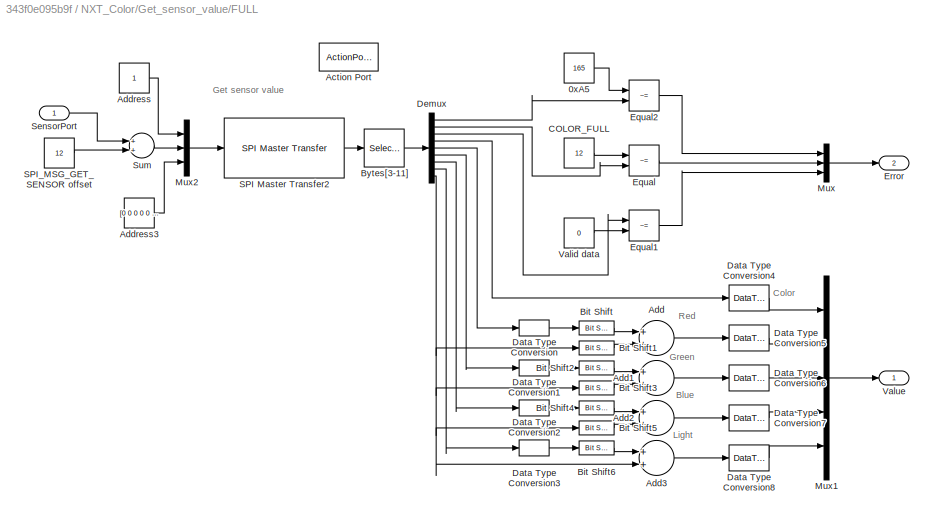
BLOCK [SubSystem] NXT_Color/Get_sensor_value/FULL
  Ports = [1, 2, 0, 0, 0, 0, 0, 1]
  RequestExecContextInheritance = off
BLOCK [Constant] NXT_Color/Get_sensor_value/FULL/0xA5
  Value = 165
BLOCK [ActionPort] NXT_Color/Get_sensor_value/FULL/Action Port
  ActionType = case
BLOCK [Sum] NXT_Color/Get_sensor_value/FULL/Add
  InputSameDT = off
  OutDataTypeStr = uint16
  Ports = [2, 1]
  SaturateOnIntegerOverflow = off
BLOCK [Sum] NXT_Color/Get_sensor_value/FULL/Add1
  InputSameDT = off
  OutDataTypeStr = uint16
  Ports = [2, 1]
  SaturateOnIntegerOverflow = off
BLOCK [Sum] NXT_Color/Get_sensor_value/FULL/Add2
  InputSameDT = off
  OutDataTypeStr = uint16
  Ports = [2, 1]
  SaturateOnIntegerOverflow = off
BLOCK [Sum] NXT_Color/Get_sensor_value/FULL/Add3
  InputSameDT = off
  OutDataTypeStr = uint16
  Ports = [2, 1]
  SaturateOnIntegerOverflow = off
BLOCK [Constant] NXT_Color/Get_sensor_value/FULL/Address 
  OutDataTypeStr = uint8
BLOCK [Constant] NXT_Color/Get_sensor_value/FULL/Address3
  OutDataTypeStr = uint8
  Value = [0 0 0 0 0 0 0 0 0 0]
BLOCK [Reference] NXT_Color/Get_sensor_value/FULL/Bit Shift  REF=hdlsllib/Logic and Bit
Operations/Bit Shift
  Ports = [1, 1]
  SourceBlock = hdlsllib/Logic and Bit\nOperations/Bit Shift
  SourceProductBaseCode = HD
  SourceProductName = HDL Coder
  SourceType = Bit Shift
BLOCK [Reference] NXT_Color/Get_sensor_value/FULL/Bit Shift1  REF=hdlsllib/Logic and Bit
Operations/Bit Shift
  Ports = [1, 1]
  SourceBlock = hdlsllib/Logic and Bit\nOperations/Bit Shift
  SourceProductBaseCode = HD
  SourceProductName = HDL Coder
  SourceType = Bit Shift
BLOCK [Reference] NXT_Color/Get_sensor_value/FULL/Bit Shift2  REF=hdlsllib/Logic and Bit
Operations/Bit Shift
  Ports = [1, 1]
  SourceBlock = hdlsllib/Logic and Bit\nOperations/Bit Shift
  SourceProductBaseCode = HD
  SourceProductName = HDL Coder
  SourceType = Bit Shift
BLOCK [Reference] NXT_Color/Get_sensor_value/FULL/Bit Shift3  REF=hdlsllib/Logic and Bit
Operations/Bit Shift
  Ports = [1, 1]
  SourceBlock = hdlsllib/Logic and Bit\nOperations/Bit Shift
  SourceProductBaseCode = HD
  SourceProductName = HDL Coder
  SourceType = Bit Shift
BLOCK [Reference] NXT_Color/Get_sensor_value/FULL/Bit Shift4  REF=hdlsllib/Logic and Bit
Operations/Bit Shift
  Ports = [1, 1]
  SourceBlock = hdlsllib/Logic and Bit\nOperations/Bit Shift
  SourceProductBaseCode = HD
  SourceProductName = HDL Coder
  SourceType = Bit Shift
BLOCK [Reference] NXT_Color/Get_sensor_value/FULL/Bit Shift5  REF=hdlsllib/Logic and Bit
Operations/Bit Shift
  Ports = [1, 1]
  SourceBlock = hdlsllib/Logic and Bit\nOperations/Bit Shift
  SourceProductBaseCode = HD
  SourceProductName = HDL Coder
  SourceType = Bit Shift
BLOCK [Reference] NXT_Color/Get_sensor_value/FULL/Bit Shift6  REF=hdlsllib/Logic and Bit
Operations/Bit Shift
  Ports = [1, 1]
  SourceBlock = hdlsllib/Logic and Bit\nOperations/Bit Shift
  SourceProductBaseCode = HD
  SourceProductName = HDL Coder
  SourceType = Bit Shift
BLOCK [Selector] NXT_Color/Get_sensor_value/FULL/Bytes[3-11]
  IndexMode = Zero-based
  IndexOptions = Index vector (dialog)
  Indices = [3 4 5 6 7 8 9 10 11]
  InputPortWidth = 12
  OutputSizes = 1
  Ports = [1, 1]
BLOCK [Constant] NXT_Color/Get_sensor_value/FULL/COLOR_FULL
  OutDataTypeStr = uint8
  Value = 12
BLOCK [DataTypeConversion] NXT_Color/Get_sensor_value/FULL/Data Type Conversion
  OutDataTypeStr = uint16
  RndMeth = Floor
  SaturateOnIntegerOverflow = off
BLOCK [DataTypeConversion] NXT_Color/Get_sensor_value/FULL/Data Type Conversion1
  OutDataTypeStr = uint16
  RndMeth = Floor
  SaturateOnIntegerOverflow = off
BLOCK [DataTypeConversion] NXT_Color/Get_sensor_value/FULL/Data Type Conversion2
  OutDataTypeStr = uint16
  RndMeth = Floor
  SaturateOnIntegerOverflow = off
BLOCK [DataTypeConversion] NXT_Color/Get_sensor_value/FULL/Data Type Conversion3
  OutDataTypeStr = uint16
  RndMeth = Floor
  SaturateOnIntegerOverflow = off
BLOCK [DataTypeConversion] NXT_Color/Get_sensor_value/FULL/Data Type Conversion4
  OutDataTypeStr = int16
  RndMeth = Floor
  SaturateOnIntegerOverflow = off
BLOCK [DataTypeConversion] NXT_Color/Get_sensor_value/FULL/Data Type Conversion5
  OutDataTypeStr = int16
  RndMeth = Floor
  SaturateOnIntegerOverflow = off
BLOCK [DataTypeConversion] NXT_Color/Get_sensor_value/FULL/Data Type Conversion6
  OutDataTypeStr = int16
  RndMeth = Floor
  SaturateOnIntegerOverflow = off
BLOCK [DataTypeConversion] NXT_Color/Get_sensor_value/FULL/Data Type Conversion7
  OutDataTypeStr = int16
  RndMeth = Floor
  SaturateOnIntegerOverflow = off
BLOCK [DataTypeConversion] NXT_Color/Get_sensor_value/FULL/Data Type Conversion8
  OutDataTypeStr = int16
  RndMeth = Floor
  SaturateOnIntegerOverflow = off
BLOCK [Demux] NXT_Color/Get_sensor_value/FULL/Demux
  DisplayOption = bar
  Outputs = 9
  Ports = [1, 9]
BLOCK [RelationalOperator] NXT_Color/Get_sensor_value/FULL/Equal
  InputSameDT = off
  Operator = ~=
  OutDataTypeStr = boolean
  Ports = [2, 1]
  RndMeth = Simplest
BLOCK [RelationalOperator] NXT_Color/Get_sensor_value/FULL/Equal1
  InputSameDT = off
  Operator = ~=
  OutDataTypeStr = boolean
  Ports = [2, 1]
  RndMeth = Simplest
BLOCK [RelationalOperator] NXT_Color/Get_sensor_value/FULL/Equal2
  InputSameDT = off
  Operator = ~=
  OutDataTypeStr = boolean
  Ports = [2, 1]
  RndMeth = Simplest
BLOCK [Outport] NXT_Color/Get_sensor_value/FULL/Error
  IconDisplay = Port number
  Port = 2
BLOCK [Mux] NXT_Color/Get_sensor_value/FULL/Mux
  DisplayOption = bar
  Inputs = 3
  Ports = [3, 1]
BLOCK [Mux] NXT_Color/Get_sensor_value/FULL/Mux1
  DisplayOption = bar
  Inputs = 5
  Ports = [5, 1]
BLOCK [Mux] NXT_Color/Get_sensor_value/FULL/Mux2
  DisplayOption = bar
  Inputs = 3
  Ports = [3, 1]
BLOCK [Reference] NXT_Color/Get_sensor_value/FULL/SPI Master Transfer2  REF=raspberrypilib/SPI Master Transfer
  Ports = [1, 1]
  Priority = 6
  SourceBlock = raspberrypilib/SPI Master Transfer
  SourceProductBaseCode = RASPPI
  SourceProductName = Simulink Support Package for Raspberry Pi Hardware
  SourceType = codertarget.raspi.internal.SPIMasterTransfer
BLOCK [Constant] NXT_Color/Get_sensor_value/FULL/SPI_MSG_GET_ SENSOR offset
  OutDataTypeStr = uint8
  OutMax = [28]
  OutMin = [1]
  Value = 12
BLOCK [Inport] NXT_Color/Get_sensor_value/FULL/SensorPort
  IconDisplay = Port number
BLOCK [Sum] NXT_Color/Get_sensor_value/FULL/Sum
  InputSameDT = off
  OutDataTypeStr = uint8
  Ports = [2, 1]
  SaturateOnIntegerOverflow = off
BLOCK [Constant] NXT_Color/Get_sensor_value/FULL/Valid data
  OutDataTypeStr = uint8
  Value = 0
BLOCK [Outport] NXT_Color/Get_sensor_value/FULL/Value
  IconDisplay = Port number
BLOCK [Merge] NXT_Color/Get_sensor_value/Merge
  Ports = [2, 1]
BLOCK [Merge] NXT_Color/Get_sensor_value/Merge1
  Ports = [2, 1]
BLOCK [SubSystem] NXT_Color/Get_sensor_value/R_G_B_OFF
  Ports = [2, 2, 0, 0, 0, 0, 0, 1]
  RequestExecContextInheritance = off
BLOCK [Constant] NXT_Color/Get_sensor_value/R_G_B_OFF/0xA5
  Value = 165
BLOCK [ActionPort] NXT_Color/Get_sensor_value/R_G_B_OFF/Action Port
  ActionType = case
BLOCK [Constant] NXT_Color/Get_sensor_value/R_G_B_OFF/Address 
  OutDataTypeStr = uint8
BLOCK [Constant] NXT_Color/Get_sensor_value/R_G_B_OFF/Address3
  OutDataTypeStr = uint8
  Value = [0 0 0 0 0 0]
BLOCK [Reference] NXT_Color/Get_sensor_value/R_G_B_OFF/Byte Packing   REF=xpcutilitieslib/Byte Packing 
  Ports = [2, 1]
  SourceBlock = xpcutilitieslib/Byte Packing
  SourceProductBaseCode = XP
  SourceProductName = Simulink Real-Time
  SourceType = xpcbytepacking
BLOCK [Selector] NXT_Color/Get_sensor_value/R_G_B_OFF/Bytes[3-6]
  IndexMode = Zero-based
  IndexOptions = Index vector (dialog)
  Indices = [3 4 5 6 7]
  InputPortWidth = 8
  OutputSizes = 1
  Ports = [1, 1]
BLOCK [Constant] NXT_Color/Get_sensor_value/R_G_B_OFF/Constant
  OutDataTypeStr = int16
  Value = 0
BLOCK [Demux] NXT_Color/Get_sensor_value/R_G_B_OFF/Demux
  DisplayOption = bar
  Outputs = 5
  Ports = [1, 5]
BLOCK [RelationalOperator] NXT_Color/Get_sensor_value/R_G_B_OFF/Equal
  InputSameDT = off
  Operator = ~=
  OutDataTypeStr = boolean
  Ports = [2, 1]
  RndMeth = Simplest
BLOCK [RelationalOperator] NXT_Color/Get_sensor_value/R_G_B_OFF/Equal1
  InputSameDT = off
  Operator = ~=
  OutDataTypeStr = boolean
  Ports = [2, 1]
  RndMeth = Simplest
BLOCK [RelationalOperator] NXT_Color/Get_sensor_value/R_G_B_OFF/Equal2
  InputSameDT = off
  Operator = ~=
  OutDataTypeStr = boolean
  Ports = [2, 1]
  RndMeth = Simplest
BLOCK [Outport] NXT_Color/Get_sensor_value/R_G_B_OFF/Error
  IconDisplay = Port number
  Port = 2
BLOCK [Mux] NXT_Color/Get_sensor_value/R_G_B_OFF/Mux
  DisplayOption = bar
  Inputs = 3
  Ports = [3, 1]
BLOCK [Mux] NXT_Color/Get_sensor_value/R_G_B_OFF/Mux1
  DisplayOption = bar
  Inputs = 5
  Ports = [5, 1]
BLOCK [Mux] NXT_Color/Get_sensor_value/R_G_B_OFF/Mux2
  DisplayOption = bar
  Inputs = 3
  Ports = [3, 1]
BLOCK [Reference] NXT_Color/Get_sensor_value/R_G_B_OFF/SPI Master Transfer2  REF=raspberrypilib/SPI Master Transfer
  Ports = [1, 1]
  Priority = 6
  SourceBlock = raspberrypilib/SPI Master Transfer
  SourceProductBaseCode = RASPPI
  SourceProductName = Simulink Support Package for Raspberry Pi Hardware
  SourceType = codertarget.raspi.internal.SPIMasterTransfer
BLOCK [Constant] NXT_Color/Get_sensor_value/R_G_B_OFF/SPI_MSG_GET_ SENSOR offset
  OutDataTypeStr = uint8
  OutMax = [28]
  OutMin = [1]
  Value = 12
BLOCK [Constant] NXT_Color/Get_sensor_value/R_G_B_OFF/Sensor type offset
  OutDataTypeStr = uint8
  Value = 8
BLOCK [Inport] NXT_Color/Get_sensor_value/R_G_B_OFF/SensorPort
  IconDisplay = Port number
BLOCK [Inport] NXT_Color/Get_sensor_value/R_G_B_OFF/SensorType
  IconDisplay = Port number
  OutDataTypeStr = uint8
  Port = 2
BLOCK [Sum] NXT_Color/Get_sensor_value/R_G_B_OFF/Sum
  InputSameDT = off
  OutDataTypeStr = uint8
  Ports = [2, 1]
  SaturateOnIntegerOverflow = off
BLOCK [Sum] NXT_Color/Get_sensor_value/R_G_B_OFF/Sum1
  InputSameDT = off
  OutDataTypeStr = Inherit: Inherit via internal rule
  Ports = [2, 1]
  SaturateOnIntegerOverflow = off
BLOCK [Constant] NXT_Color/Get_sensor_value/R_G_B_OFF/Valid data
  OutDataTypeStr = uint8
  Value = 0
BLOCK [Outport] NXT_Color/Get_sensor_value/R_G_B_OFF/Value
  IconDisplay = Port number
BLOCK [Inport] NXT_Color/Get_sensor_value/SensorPort
  IconDisplay = Port number
BLOCK [Inport] NXT_Color/Get_sensor_value/SensorType
  IconDisplay = Port number
  OutDataTypeStr = uint8
  Port = 2
BLOCK [SwitchCase] NXT_Color/Get_sensor_value/Switch Case
  CaseConditions = {[1,2,3,5],4}
  Ports = [1, 3]
BLOCK [Terminator] NXT_Color/Get_sensor_value/Terminator
BLOCK [Outport] NXT_Color/Get_sensor_value/Values
  IconDisplay = Port number
BLOCK [Terminator] NXT_Color/Green
BLOCK [Memory] NXT_Color/Memory
BLOCK [Mux] NXT_Color/Mux
  DisplayOption = bar
  Inputs = 2
  Ports = [2, 1]
BLOCK [Logic] NXT_Color/NOT
  AllPortsSameDT = off
  IconShape = distinctive
  Operator = NOT
  OutDataTypeStr = boolean
  Ports = [1, 1]
BLOCK [Logic] NXT_Color/NOT1
  AllPortsSameDT = off
  IconShape = distinctive
  Operator = NOT
  OutDataTypeStr = boolean
  Ports = [1, 1]
BLOCK [Outport] NXT_Color/Red
  IconDisplay = Port number
BLOCK [Constant] NXT_Color/SensorPort
  OutDataTypeStr = uint8
  Value = SensorPort
BLOCK [Constant] NXT_Color/SensorType
  OutDataTypeStr = uint8
  Value = SensorType
BLOCK [SubSystem] NXT_Color/Set_sensor_type
  Ports = [2, 1, 1]
  Priority = 21
  RequestExecContextInheritance = off
BLOCK [Constant] NXT_Color/Set_sensor_type/0xA5
  Value = 165
BLOCK [Constant] NXT_Color/Set_sensor_type/Address
  OutDataTypeStr = uint8
  VectorParams1D = off
BLOCK [Constant] NXT_Color/Set_sensor_type/Constant2
  OutDataTypeStr = uint8
BLOCK [Constant] NXT_Color/Set_sensor_type/Constant3
  OutDataTypeStr = uint8
BLOCK [EnablePort] NXT_Color/Set_sensor_type/Enable
  Ports = []
BLOCK [Outport] NXT_Color/Set_sensor_type/Error
  IconDisplay = Port number
BLOCK [Mux] NXT_Color/Set_sensor_type/Mux1
  DisplayOption = bar
  Ports = [4, 1]
BLOCK [Logic] NXT_Color/Set_sensor_type/NAND
  AllPortsSameDT = off
  IconShape = distinctive
  Operator = NAND
  OutDataTypeStr = boolean
  Ports = [2, 1]
BLOCK [Reference] NXT_Color/Set_sensor_type/SPI Master Transfer1  REF=raspberrypilib/SPI Master Transfer
  Ports = [1, 1]
  Priority = 1
  SourceBlock = raspberrypilib/SPI Master Transfer
  SourceProductBaseCode = RASPPI
  SourceProductName = Simulink Support Package for Raspberry Pi Hardware
  SourceType = codertarget.raspi.internal.SPIMasterTransfer
BLOCK [Constant] NXT_Color/Set_sensor_type/SPI_MSG_SET_ SENSOR_TYPE
  OutDataTypeStr = uint8
  OutMax = [28]
  OutMin = [1]
  Value = 12
BLOCK [Selector] NXT_Color/Set_sensor_type/Selector1
  IndexOptions = Index vector (dialog)
  Indices = [4]
  InputPortWidth = 4
  OutputSizes = 1
  Ports = [1, 1]
BLOCK [Constant] NXT_Color/Set_sensor_type/Sensor type offset
  OutDataTypeStr = uint8
  Value = 8
BLOCK [Inport] NXT_Color/Set_sensor_type/SensorPort
  IconDisplay = Port number
  OutDataTypeStr = uint8
BLOCK [Inport] NXT_Color/Set_sensor_type/SensorType
  IconDisplay = Port number
  OutDataTypeStr = uint8
  Port = 2
BLOCK [ArithShift] NXT_Color/Set_sensor_type/Shift Arithmetic
  BitShiftDirection = Left
  BitShiftNumber = 8
  BitShiftNumberSource = Input port
  InputPortMap = u0,p1
  Ports = [2, 1]
BLOCK [Sum] NXT_Color/Set_sensor_type/Subtract
  InputSameDT = off
  Inputs = +-
  OutDataTypeStr = Inherit: Inherit via internal rule
  Ports = [2, 1]
  SaturateOnIntegerOverflow = off
BLOCK [Sum] NXT_Color/Set_sensor_type/Sum
  InputSameDT = off
  OutDataTypeStr = Inherit: Inherit via internal rule
  Ports = [2, 1]
  SaturateOnIntegerOverflow = off
BLOCK [SubSystem] NXT_Light
  Ports = [0, 2]
  RequestExecContextInheritance = off
BLOCK [Logic] NXT_Light/AND
  AllPortsSameDT = off
  OutDataTypeStr = boolean
  Ports = [2, 1]
BLOCK [Constant] NXT_Light/Constant
BLOCK [Outport] NXT_Light/Error
  IconDisplay = Port number
  Port = 2
BLOCK [SubSystem] NXT_Light/Get_sensor_value
  Ports = [2, 2, 1]
  RequestExecContextInheritance = off
BLOCK [Constant] NXT_Light/Get_sensor_value/0xA5
  Value = 165
BLOCK [Constant] NXT_Light/Get_sensor_value/Address 
  OutDataTypeStr = uint8
BLOCK [Constant] NXT_Light/Get_sensor_value/Address3
  OutDataTypeStr = uint8
  Value = [0 0 0 0 0 0]
BLOCK [Reference] NXT_Light/Get_sensor_value/Byte Packing   REF=xpcutilitieslib/Byte Packing 
  Ports = [2, 1]
  SourceBlock = xpcutilitieslib/Byte Packing
  SourceProductBaseCode = XP
  SourceProductName = Simulink Real-Time
  SourceType = xpcbytepacking
BLOCK [Selector] NXT_Light/Get_sensor_value/Bytes[3-7]
  IndexMode = Zero-based
  IndexOptions = Index vector (dialog)
  Indices = [3 4 5 6 7]
  InputPortWidth = 8
  OutputSizes = 1
  Ports = [1, 1]
BLOCK [Demux] NXT_Light/Get_sensor_value/Demux
  DisplayOption = bar
  Outputs = 5
  Ports = [1, 5]
BLOCK [EnablePort] NXT_Light/Get_sensor_value/Enable
  Ports = []
BLOCK [RelationalOperator] NXT_Light/Get_sensor_value/Equal
  InputSameDT = off
  Operator = ~=
  OutDataTypeStr = boolean
  Ports = [2, 1]
  RndMeth = Simplest
BLOCK [RelationalOperator] NXT_Light/Get_sensor_value/Equal1
  InputSameDT = off
  Operator = ~=
  OutDataTypeStr = boolean
  Ports = [2, 1]
  RndMeth = Simplest
BLOCK [RelationalOperator] NXT_Light/Get_sensor_value/Equal2
  InputSameDT = off
  Operator = ~=
  OutDataTypeStr = boolean
  Ports = [2, 1]
  RndMeth = Simplest
BLOCK [Outport] NXT_Light/Get_sensor_value/Error
  IconDisplay = Port number
  Port = 2
BLOCK [Mux] NXT_Light/Get_sensor_value/Mux
  DisplayOption = bar
  Inputs = 3
  Ports = [3, 1]
BLOCK [Mux] NXT_Light/Get_sensor_value/Mux2
  DisplayOption = bar
  Inputs = 3
  Ports = [3, 1]
BLOCK [Reference] NXT_Light/Get_sensor_value/SPI Master Transfer2  REF=raspberrypilib/SPI Master Transfer
  Ports = [1, 1]
  Priority = 6
  SourceBlock = raspberrypilib/SPI Master Transfer
  SourceProductBaseCode = RASPPI
  SourceProductName = Simulink Support Package for Raspberry Pi Hardware
  SourceType = codertarget.raspi.internal.SPIMasterTransfer
BLOCK [Constant] NXT_Light/Get_sensor_value/SPI_MSG_GET_ SENSOR offset
  OutDataTypeStr = uint8
  OutMax = [28]
  OutMin = [1]
  Value = 12
BLOCK [Constant] NXT_Light/Get_sensor_value/Sensor type offset
  OutDataTypeStr = uint8
  Value = 6
BLOCK [Inport] NXT_Light/Get_sensor_value/SensorPort
  IconDisplay = Port number
BLOCK [Inport] NXT_Light/Get_sensor_value/SensorType
  IconDisplay = Port number
  OutDataTypeStr = uint8
  Port = 2
BLOCK [Sum] NXT_Light/Get_sensor_value/Sum
  InputSameDT = off
  OutDataTypeStr = uint8
  Ports = [2, 1]
  SaturateOnIntegerOverflow = off
BLOCK [Sum] NXT_Light/Get_sensor_value/Sum1
  InputSameDT = off
  OutDataTypeStr = Inherit: Inherit via internal rule
  Ports = [2, 1]
  SaturateOnIntegerOverflow = off
BLOCK [Constant] NXT_Light/Get_sensor_value/Valid data
  OutDataTypeStr = uint8
  Value = 0
BLOCK [Outport] NXT_Light/Get_sensor_value/Value
  IconDisplay = Port number
BLOCK [Memory] NXT_Light/Memory
BLOCK [Mux] NXT_Light/Mux
  DisplayOption = bar
  Inputs = 2
  Ports = [2, 1]
BLOCK [Logic] NXT_Light/NOT
  AllPortsSameDT = off
  IconShape = distinctive
  Operator = NOT
  OutDataTypeStr = boolean
  Ports = [1, 1]
BLOCK [Logic] NXT_Light/NOT1
  AllPortsSameDT = off
  IconShape = distinctive
  Operator = NOT
  OutDataTypeStr = boolean
  Ports = [1, 1]
BLOCK [Outport] NXT_Light/Out2
  IconDisplay = Port number
BLOCK [Constant] NXT_Light/SensorPort
  OutDataTypeStr = uint8
  Value = SensorPort
BLOCK [Constant] NXT_Light/SensorType
  OutDataTypeStr = uint8
  Value = SensorType
BLOCK [SubSystem] NXT_Light/Set_sensor_type
  Ports = [2, 1, 1]
  Priority = 21
  RequestExecContextInheritance = off
BLOCK [Constant] NXT_Light/Set_sensor_type/0xA5
  Value = 165
BLOCK [Constant] NXT_Light/Set_sensor_type/Address
  OutDataTypeStr = uint8
  VectorParams1D = off
BLOCK [Constant] NXT_Light/Set_sensor_type/Constant2
  OutDataTypeStr = uint8
BLOCK [Constant] NXT_Light/Set_sensor_type/Constant3
  OutDataTypeStr = uint8
BLOCK [EnablePort] NXT_Light/Set_sensor_type/Enable
  Ports = []
BLOCK [Outport] NXT_Light/Set_sensor_type/Error
  IconDisplay = Port number
BLOCK [Mux] NXT_Light/Set_sensor_type/Mux1
  DisplayOption = bar
  Ports = [4, 1]
BLOCK [Logic] NXT_Light/Set_sensor_type/NAND
  AllPortsSameDT = off
  IconShape = distinctive
  Operator = NAND
  OutDataTypeStr = boolean
  Ports = [2, 1]
BLOCK [Reference] NXT_Light/Set_sensor_type/SPI Master Transfer1  REF=raspberrypilib/SPI Master Transfer
  Ports = [1, 1]
  Priority = 1
  SourceBlock = raspberrypilib/SPI Master Transfer
  SourceProductBaseCode = RASPPI
  SourceProductName = Simulink Support Package for Raspberry Pi Hardware
  SourceType = codertarget.raspi.internal.SPIMasterTransfer
BLOCK [Constant] NXT_Light/Set_sensor_type/SPI_MSG_SET_ SENSOR_TYPE
  OutDataTypeStr = uint8
  OutMax = [28]
  OutMin = [1]
  Value = 12
BLOCK [Selector] NXT_Light/Set_sensor_type/Selector1
  IndexOptions = Index vector (dialog)
  Indices = [4]
  InputPortWidth = 4
  OutputSizes = 1
  Ports = [1, 1]
BLOCK [Constant] NXT_Light/Set_sensor_type/Sensor type offset
  OutDataTypeStr = uint8
  Value = 6
BLOCK [Inport] NXT_Light/Set_sensor_type/SensorPort
  IconDisplay = Port number
  OutDataTypeStr = uint8
BLOCK [Inport] NXT_Light/Set_sensor_type/SensorType
  IconDisplay = Port number
  OutDataTypeStr = uint8
  Port = 2
BLOCK [ArithShift] NXT_Light/Set_sensor_type/Shift Arithmetic
  BitShiftDirection = Left
  BitShiftNumber = 8
  BitShiftNumberSource = Input port
  InputPortMap = u0,p1
  Ports = [2, 1]
BLOCK [Sum] NXT_Light/Set_sensor_type/Subtract
  InputSameDT = off
  Inputs = +-
  OutDataTypeStr = Inherit: Inherit via internal rule
  Ports = [2, 1]
  SaturateOnIntegerOverflow = off
BLOCK [Sum] NXT_Light/Set_sensor_type/Sum
  InputSameDT = off
  OutDataTypeStr = Inherit: Inherit via internal rule
  Ports = [2, 1]
  SaturateOnIntegerOverflow = off
BLOCK [SubSystem] NXT_Ultrasonic
  Ports = [0, 2]
  RequestExecContextInheritance = off
BLOCK [Logic] NXT_Ultrasonic/AND
  AllPortsSameDT = off
  OutDataTypeStr = boolean
  Ports = [2, 1]
BLOCK [Constant] NXT_Ultrasonic/Constant
BLOCK [Outport] NXT_Ultrasonic/Dist
  IconDisplay = Port number
BLOCK [Outport] NXT_Ultrasonic/Error
  IconDisplay = Port number
  Port = 2
BLOCK [SubSystem] NXT_Ultrasonic/Get_sensor_value
  Ports = [1, 2, 1]
  RequestExecContextInheritance = off
BLOCK [Constant] NXT_Ultrasonic/Get_sensor_value/0xA5
  Value = 165
BLOCK [Constant] NXT_Ultrasonic/Get_sensor_value/Address 
  OutDataTypeStr = uint8
BLOCK [Constant] NXT_Ultrasonic/Get_sensor_value/Address3
  OutDataTypeStr = uint8
  Value = [0 0 0 0 0]
BLOCK [Selector] NXT_Ultrasonic/Get_sensor_value/Bytes[3-6]
  IndexMode = Zero-based
  IndexOptions = Index vector (dialog)
  Indices = [3 4 5 6]
  InputPortWidth = 7
  OutputSizes = 1
  Ports = [1, 1]
BLOCK [Demux] NXT_Ultrasonic/Get_sensor_value/Demux
  DisplayOption = bar
  Ports = [1, 4]
BLOCK [EnablePort] NXT_Ultrasonic/Get_sensor_value/Enable
  Ports = []
BLOCK [Outport] NXT_Ultrasonic/Get_sensor_value/Error
  IconDisplay = Port number
  Port = 2
BLOCK [Mux] NXT_Ultrasonic/Get_sensor_value/Mux
  DisplayOption = bar
  Inputs = 3
  Ports = [3, 1]
BLOCK [Mux] NXT_Ultrasonic/Get_sensor_value/Mux2
  DisplayOption = bar
  Inputs = 3
  Ports = [3, 1]
BLOCK [Logic] NXT_Ultrasonic/Get_sensor_value/NAND
  AllPortsSameDT = off
  IconShape = distinctive
  Operator = NAND
  OutDataTypeStr = boolean
  Ports = [2, 1]
BLOCK [Logic] NXT_Ultrasonic/Get_sensor_value/NAND1
  AllPortsSameDT = off
  IconShape = distinctive
  Operator = NAND
  OutDataTypeStr = boolean
  Ports = [2, 1]
BLOCK [Logic] NXT_Ultrasonic/Get_sensor_value/OR1
  AllPortsSameDT = off
  IconShape = distinctive
  Operator = OR
  OutDataTypeStr = boolean
  Ports = [2, 1]
BLOCK [Reference] NXT_Ultrasonic/Get_sensor_value/SPI Master Transfer2  REF=raspberrypilib/SPI Master Transfer
  Ports = [1, 1]
  Priority = 6
  SourceBlock = raspberrypilib/SPI Master Transfer
  SourceProductBaseCode = RASPPI
  SourceProductName = Simulink Support Package for Raspberry Pi Hardware
  SourceType = codertarget.raspi.internal.SPIMasterTransfer
BLOCK [Constant] NXT_Ultrasonic/Get_sensor_value/SPI_MSG_GET_ SENSOR offset
  OutDataTypeStr = uint8
  OutMax = [28]
  OutMin = [1]
  Value = 12
BLOCK [Inport] NXT_Ultrasonic/Get_sensor_value/SensorPort
  IconDisplay = Port number
BLOCK [Constant] NXT_Ultrasonic/Get_sensor_value/SensorType
  OutDataTypeStr = uint8
  OutMax = [28]
  OutMin = [1]
  Value = 14
BLOCK [Sum] NXT_Ultrasonic/Get_sensor_value/Sum
  InputSameDT = off
  OutDataTypeStr = uint8
  Ports = [2, 1]
  SaturateOnIntegerOverflow = off
BLOCK [Constant] NXT_Ultrasonic/Get_sensor_value/Valid data
  OutDataTypeStr = uint8
  Value = 0
BLOCK [Outport] NXT_Ultrasonic/Get_sensor_value/Value
  IconDisplay = Port number
BLOCK [Memory] NXT_Ultrasonic/Memory
BLOCK [Mux] NXT_Ultrasonic/Mux
  DisplayOption = bar
  Inputs = 2
  Ports = [2, 1]
BLOCK [Logic] NXT_Ultrasonic/NOT
  AllPortsSameDT = off
  IconShape = distinctive
  Operator = NOT
  OutDataTypeStr = boolean
  Ports = [1, 1]
BLOCK [Logic] NXT_Ultrasonic/NOT1
  AllPortsSameDT = off
  IconShape = distinctive
  Operator = NOT
  OutDataTypeStr = boolean
  Ports = [1, 1]
BLOCK [Constant] NXT_Ultrasonic/SensorPort
  OutDataTypeStr = uint8
  Value = SensorPort
BLOCK [SubSystem] NXT_Ultrasonic/Set_sensor_type
  Ports = [1, 1, 1]
  Priority = 21
  RequestExecContextInheritance = off
BLOCK [Constant] NXT_Ultrasonic/Set_sensor_type/0xA5
  Value = 165
BLOCK [Constant] NXT_Ultrasonic/Set_sensor_type/Address
  OutDataTypeStr = uint8
  VectorParams1D = off
BLOCK [Constant] NXT_Ultrasonic/Set_sensor_type/Constant2
  OutDataTypeStr = uint8
BLOCK [Constant] NXT_Ultrasonic/Set_sensor_type/Constant3
  OutDataTypeStr = uint8
BLOCK [EnablePort] NXT_Ultrasonic/Set_sensor_type/Enable
  Ports = []
BLOCK [Outport] NXT_Ultrasonic/Set_sensor_type/Error
  IconDisplay = Port number
  InitialOutput = [1]
BLOCK [Mux] NXT_Ultrasonic/Set_sensor_type/Mux1
  DisplayOption = bar
  Ports = [4, 1]
BLOCK [Logic] NXT_Ultrasonic/Set_sensor_type/NAND
  AllPortsSameDT = off
  IconShape = distinctive
  Operator = NAND
  OutDataTypeStr = boolean
  Ports = [2, 1]
BLOCK [Reference] NXT_Ultrasonic/Set_sensor_type/SPI Master Transfer1  REF=raspberrypilib/SPI Master Transfer
  Ports = [1, 1]
  Priority = 1
  SourceBlock = raspberrypilib/SPI Master Transfer
  SourceProductBaseCode = RASPPI
  SourceProductName = Simulink Support Package for Raspberry Pi Hardware
  SourceType = codertarget.raspi.internal.SPIMasterTransfer
BLOCK [Constant] NXT_Ultrasonic/Set_sensor_type/SPI_MSG_SET_ SENSOR_TYPE
  OutDataTypeStr = uint8
  OutMax = [28]
  OutMin = [1]
  Value = 12
BLOCK [Selector] NXT_Ultrasonic/Set_sensor_type/Selector1
  IndexOptions = Index vector (dialog)
  Indices = [4]
  InputPortWidth = 4
  OutputSizes = 1
  Ports = [1, 1]
BLOCK [Inport] NXT_Ultrasonic/Set_sensor_type/SensorPort
  IconDisplay = Port number
BLOCK [Constant] NXT_Ultrasonic/Set_sensor_type/SensorType
  OutDataTypeStr = uint8
  OutMax = [28]
  OutMin = [1]
  Value = 14
BLOCK [ArithShift] NXT_Ultrasonic/Set_sensor_type/Shift Arithmetic
  BitShiftDirection = Left
  BitShiftNumber = 8
  BitShiftNumberSource = Input port
  InputPortMap = u0,p1
  Ports = [2, 1]
BLOCK [Sum] NXT_Ultrasonic/Set_sensor_type/Subtract
  InputSameDT = off
  Inputs = +-
  OutDataTypeStr = Inherit: Inherit via internal rule
  Ports = [2, 1]
  SaturateOnIntegerOverflow = off
BLOCK [SubSystem] Reset_all
  Ports = [0, 1]
  RequestExecContextInheritance = off
BLOCK [Outport] Reset_all/Error
  IconDisplay = Port number
BLOCK [Logic] Reset_all/OR
  AllPortsSameDT = off
  IconShape = distinctive
  Operator = OR
  OutDataTypeStr = boolean
  Ports = [2, 1]
BLOCK [SubSystem] Reset_all/Reset motor power
  Ports = [0, 1]
  RequestExecContextInheritance = off
BLOCK [Outport] Reset_all/Reset motor power/Error
  IconDisplay = Port number
BLOCK [Constant] Reset_all/Reset motor power/MOTOR_FLOAT
  OutDataTypeStr = int8
  Value = -128
BLOCK [Logic] Reset_all/Reset motor power/OR
  AllPortsSameDT = off
  IconShape = distinctive
  Inputs = 4
  Operator = OR
  OutDataTypeStr = boolean
  Ports = [4, 1]
BLOCK [SubSystem] Reset_all/Reset motor power/Reset power 1
  Ports = [1, 1]
  RequestExecContextInheritance = off
BLOCK [Constant] Reset_all/Reset motor power/Reset power 1/0xA5
  Value = 165
BLOCK [Constant] Reset_all/Reset motor power/Reset power 1/Address 
  OutDataTypeStr = uint8
BLOCK [Constant] Reset_all/Reset motor power/Reset power 1/Constant2
  OutDataTypeStr = uint8
BLOCK [Constant] Reset_all/Reset motor power/Reset power 1/Constant3
  OutDataTypeStr = uint8
BLOCK [DataTypeConversion] Reset_all/Reset motor power/Reset power 1/Data Type Conversion
  OutDataTypeStr = uint8
  RndMeth = Floor
  SaturateOnIntegerOverflow = off
BLOCK [Outport] Reset_all/Reset motor power/Reset power 1/Error
  IconDisplay = Port number
BLOCK [Constant] Reset_all/Reset motor power/Reset power 1/MotorPort1
  OutDataTypeStr = uint8
BLOCK [Mux] Reset_all/Reset motor power/Reset power 1/Mux2
  DisplayOption = bar
  Ports = [4, 1]
BLOCK [Logic] Reset_all/Reset motor power/Reset power 1/NAND
  AllPortsSameDT = off
  IconShape = distinctive
  Operator = NAND
  OutDataTypeStr = boolean
  Ports = [2, 1]
BLOCK [Inport] Reset_all/Reset motor power/Reset power 1/Power
  IconDisplay = Port number
  OutDataTypeStr = int8
BLOCK [Reference] Reset_all/Reset motor power/Reset power 1/SPI Master Transfer2  REF=raspberrypilib/SPI Master Transfer
  Ports = [1, 1]
  Priority = 6
  SourceBlock = raspberrypilib/SPI Master Transfer
  SourceProductBaseCode = RASPPI
  SourceProductName = Simulink Support Package for Raspberry Pi Hardware
  SourceType = codertarget.raspi.internal.SPIMasterTransfer
BLOCK [Constant] Reset_all/Reset motor power/Reset power 1/SPI_MSG_SET_ MOTOR_POWER
  OutDataTypeStr = uint8
  OutMax = [28]
  OutMin = [1]
  Value = 21
BLOCK [Selector] Reset_all/Reset motor power/Reset power 1/Selector1
  IndexOptions = Index vector (dialog)
  Indices = [4]
  InputPortWidth = 4
  OutputSizes = 1
  Ports = [1, 1]
BLOCK [ArithShift] Reset_all/Reset motor power/Reset power 1/Shift Arithmetic
  BitShiftDirection = Left
  BitShiftNumber = 8
  BitShiftNumberSource = Input port
  InputPortMap = u0,p1
  Ports = [2, 1]
BLOCK [Sum] Reset_all/Reset motor power/Reset power 1/Subtract
  InputSameDT = off
  Inputs = +-
  OutDataTypeStr = Inherit: Inherit via internal rule
  Ports = [2, 1]
  SaturateOnIntegerOverflow = off
BLOCK [SubSystem] Reset_all/Reset motor power/Reset power 2
  Ports = [1, 1]
  RequestExecContextInheritance = off
BLOCK [Constant] Reset_all/Reset motor power/Reset power 2/0xA5
  Value = 165
BLOCK [Constant] Reset_all/Reset motor power/Reset power 2/Address 
  OutDataTypeStr = uint8
BLOCK [Constant] Reset_all/Reset motor power/Reset power 2/Constant2
  OutDataTypeStr = uint8
BLOCK [Constant] Reset_all/Reset motor power/Reset power 2/Constant3
  OutDataTypeStr = uint8
BLOCK [DataTypeConversion] Reset_all/Reset motor power/Reset power 2/Data Type Conversion
  OutDataTypeStr = uint8
  RndMeth = Floor
  SaturateOnIntegerOverflow = off
BLOCK [Outport] Reset_all/Reset motor power/Reset power 2/Error
  IconDisplay = Port number
BLOCK [Constant] Reset_all/Reset motor power/Reset power 2/MotorPort2
  OutDataTypeStr = uint8
  Value = 2
BLOCK [Mux] Reset_all/Reset motor power/Reset power 2/Mux2
  DisplayOption = bar
  Ports = [4, 1]
BLOCK [Logic] Reset_all/Reset motor power/Reset power 2/NAND
  AllPortsSameDT = off
  IconShape = distinctive
  Operator = NAND
  OutDataTypeStr = boolean
  Ports = [2, 1]
BLOCK [Inport] Reset_all/Reset motor power/Reset power 2/Power
  IconDisplay = Port number
  OutDataTypeStr = int8
BLOCK [Reference] Reset_all/Reset motor power/Reset power 2/SPI Master Transfer2  REF=raspberrypilib/SPI Master Transfer
  Ports = [1, 1]
  Priority = 6
  SourceBlock = raspberrypilib/SPI Master Transfer
  SourceProductBaseCode = RASPPI
  SourceProductName = Simulink Support Package for Raspberry Pi Hardware
  SourceType = codertarget.raspi.internal.SPIMasterTransfer
BLOCK [Constant] Reset_all/Reset motor power/Reset power 2/SPI_MSG_SET_ MOTOR_POWER
  OutDataTypeStr = uint8
  OutMax = [28]
  OutMin = [1]
  Value = 21
BLOCK [Selector] Reset_all/Reset motor power/Reset power 2/Selector1
  IndexOptions = Index vector (dialog)
  Indices = [4]
  InputPortWidth = 4
  OutputSizes = 1
  Ports = [1, 1]
BLOCK [ArithShift] Reset_all/Reset motor power/Reset power 2/Shift Arithmetic
  BitShiftDirection = Left
  BitShiftNumber = 8
  BitShiftNumberSource = Input port
  InputPortMap = u0,p1
  Ports = [2, 1]
BLOCK [Sum] Reset_all/Reset motor power/Reset power 2/Subtract
  InputSameDT = off
  Inputs = +-
  OutDataTypeStr = Inherit: Inherit via internal rule
  Ports = [2, 1]
  SaturateOnIntegerOverflow = off
BLOCK [SubSystem] Reset_all/Reset motor power/Reset power 3
  Ports = [1, 1]
  RequestExecContextInheritance = off
BLOCK [Constant] Reset_all/Reset motor power/Reset power 3/0xA5
  Value = 165
BLOCK [Constant] Reset_all/Reset motor power/Reset power 3/Address 
  OutDataTypeStr = uint8
BLOCK [Constant] Reset_all/Reset motor power/Reset power 3/Constant2
  OutDataTypeStr = uint8
BLOCK [Constant] Reset_all/Reset motor power/Reset power 3/Constant3
  OutDataTypeStr = uint8
BLOCK [DataTypeConversion] Reset_all/Reset motor power/Reset power 3/Data Type Conversion
  OutDataTypeStr = uint8
  RndMeth = Floor
  SaturateOnIntegerOverflow = off
BLOCK [Outport] Reset_all/Reset motor power/Reset power 3/Error
  IconDisplay = Port number
BLOCK [Constant] Reset_all/Reset motor power/Reset power 3/MotorPort3
  OutDataTypeStr = uint8
  Value = 4
BLOCK [Mux] Reset_all/Reset motor power/Reset power 3/Mux2
  DisplayOption = bar
  Ports = [4, 1]
BLOCK [Logic] Reset_all/Reset motor power/Reset power 3/NAND
  AllPortsSameDT = off
  IconShape = distinctive
  Operator = NAND
  OutDataTypeStr = boolean
  Ports = [2, 1]
BLOCK [Inport] Reset_all/Reset motor power/Reset power 3/Power
  IconDisplay = Port number
  OutDataTypeStr = int8
BLOCK [Reference] Reset_all/Reset motor power/Reset power 3/SPI Master Transfer2  REF=raspberrypilib/SPI Master Transfer
  Ports = [1, 1]
  Priority = 6
  SourceBlock = raspberrypilib/SPI Master Transfer
  SourceProductBaseCode = RASPPI
  SourceProductName = Simulink Support Package for Raspberry Pi Hardware
  SourceType = codertarget.raspi.internal.SPIMasterTransfer
BLOCK [Constant] Reset_all/Reset motor power/Reset power 3/SPI_MSG_SET_ MOTOR_POWER
  OutDataTypeStr = uint8
  OutMax = [28]
  OutMin = [1]
  Value = 21
BLOCK [Selector] Reset_all/Reset motor power/Reset power 3/Selector1
  IndexOptions = Index vector (dialog)
  Indices = [4]
  InputPortWidth = 4
  OutputSizes = 1
  Ports = [1, 1]
BLOCK [ArithShift] Reset_all/Reset motor power/Reset power 3/Shift Arithmetic
  BitShiftDirection = Left
  BitShiftNumber = 8
  BitShiftNumberSource = Input port
  InputPortMap = u0,p1
  Ports = [2, 1]
BLOCK [Sum] Reset_all/Reset motor power/Reset power 3/Subtract
  InputSameDT = off
  Inputs = +-
  OutDataTypeStr = Inherit: Inherit via internal rule
  Ports = [2, 1]
  SaturateOnIntegerOverflow = off
BLOCK [SubSystem] Reset_all/Reset motor power/Reset power 4
  Ports = [1, 1]
  RequestExecContextInheritance = off
BLOCK [Constant] Reset_all/Reset motor power/Reset power 4/0xA5
  Value = 165
BLOCK [Constant] Reset_all/Reset motor power/Reset power 4/Address 
  OutDataTypeStr = uint8
BLOCK [Constant] Reset_all/Reset motor power/Reset power 4/Constant2
  OutDataTypeStr = uint8
BLOCK [Constant] Reset_all/Reset motor power/Reset power 4/Constant3
  OutDataTypeStr = uint8
BLOCK [DataTypeConversion] Reset_all/Reset motor power/Reset power 4/Data Type Conversion
  OutDataTypeStr = uint8
  RndMeth = Floor
  SaturateOnIntegerOverflow = off
BLOCK [Outport] Reset_all/Reset motor power/Reset power 4/Error
  IconDisplay = Port number
BLOCK [Constant] Reset_all/Reset motor power/Reset power 4/MotorPort4
  OutDataTypeStr = uint8
  Value = 8
BLOCK [Mux] Reset_all/Reset motor power/Reset power 4/Mux2
  DisplayOption = bar
  Ports = [4, 1]
BLOCK [Logic] Reset_all/Reset motor power/Reset power 4/NAND
  AllPortsSameDT = off
  IconShape = distinctive
  Operator = NAND
  OutDataTypeStr = boolean
  Ports = [2, 1]
BLOCK [Inport] Reset_all/Reset motor power/Reset power 4/Power
  IconDisplay = Port number
  OutDataTypeStr = int8
BLOCK [Reference] Reset_all/Reset motor power/Reset power 4/SPI Master Transfer2  REF=raspberrypilib/SPI Master Transfer
  Ports = [1, 1]
  Priority = 6
  SourceBlock = raspberrypilib/SPI Master Transfer
  SourceProductBaseCode = RASPPI
  SourceProductName = Simulink Support Package for Raspberry Pi Hardware
  SourceType = codertarget.raspi.internal.SPIMasterTransfer
BLOCK [Constant] Reset_all/Reset motor power/Reset power 4/SPI_MSG_SET_ MOTOR_POWER
  OutDataTypeStr = uint8
  OutMax = [28]
  OutMin = [1]
  Value = 21
BLOCK [Selector] Reset_all/Reset motor power/Reset power 4/Selector1
  IndexOptions = Index vector (dialog)
  Indices = [4]
  InputPortWidth = 4
  OutputSizes = 1
  Ports = [1, 1]
BLOCK [ArithShift] Reset_all/Reset motor power/Reset power 4/Shift Arithmetic
  BitShiftDirection = Left
  BitShiftNumber = 8
  BitShiftNumberSource = Input port
  InputPortMap = u0,p1
  Ports = [2, 1]
BLOCK [Sum] Reset_all/Reset motor power/Reset power 4/Subtract
  InputSameDT = off
  Inputs = +-
  OutDataTypeStr = Inherit: Inherit via internal rule
  Ports = [2, 1]
  SaturateOnIntegerOverflow = off
BLOCK [SubSystem] Reset_all/Reset sensor ports
  Ports = [0, 1]
  RequestExecContextInheritance = off
BLOCK [Outport] Reset_all/Reset sensor ports/Error
  IconDisplay = Port number
BLOCK [Logic] Reset_all/Reset sensor ports/OR
  AllPortsSameDT = off
  IconShape = distinctive
  Inputs = 4
  Operator = OR
  OutDataTypeStr = boolean
  Ports = [4, 1]
BLOCK [SubSystem] Reset_all/Reset sensor ports/Reset sensor port 1
  Ports = [0, 1]
  RequestExecContextInheritance = off
BLOCK [Constant] Reset_all/Reset sensor ports/Reset sensor port 1/0xA5
  Value = 165
BLOCK [Constant] Reset_all/Reset sensor ports/Reset sensor port 1/Address
  OutDataTypeStr = uint8
  VectorParams1D = off
BLOCK [Outport] Reset_all/Reset sensor ports/Reset sensor port 1/Error
  IconDisplay = Port number
BLOCK [Mux] Reset_all/Reset sensor ports/Reset sensor port 1/Mux1
  DisplayOption = bar
  Ports = [4, 1]
BLOCK [Logic] Reset_all/Reset sensor ports/Reset sensor port 1/NAND
  AllPortsSameDT = off
  IconShape = distinctive
  Operator = NAND
  OutDataTypeStr = boolean
  Ports = [2, 1]
BLOCK [Reference] Reset_all/Reset sensor ports/Reset sensor port 1/SPI Master Transfer1  REF=raspberrypilib/SPI Master Transfer
  Ports = [1, 1]
  Priority = 1
  SourceBlock = raspberrypilib/SPI Master Transfer
  SourceProductBaseCode = RASPPI
  SourceProductName = Simulink Support Package for Raspberry Pi Hardware
  SourceType = codertarget.raspi.internal.SPIMasterTransfer
BLOCK [Constant] Reset_all/Reset sensor ports/Reset sensor port 1/SPI_MSG_SET_ SENSOR_TYPE
  OutDataTypeStr = uint8
  OutMax = [28]
  OutMin = [1]
  Value = 12
BLOCK [Selector] Reset_all/Reset sensor ports/Reset sensor port 1/Selector1
  IndexOptions = Index vector (dialog)
  Indices = [4]
  InputPortWidth = 4
  OutputSizes = 1
  Ports = [1, 1]
BLOCK [Constant] Reset_all/Reset sensor ports/Reset sensor port 1/SensorPort1
  OutDataTypeStr = uint8
BLOCK [Constant] Reset_all/Reset sensor ports/Reset sensor port 1/SensorTypeNone
  OutDataTypeStr = uint8
BLOCK [SubSystem] Reset_all/Reset sensor ports/Reset sensor port 2
  Ports = [0, 1]
  RequestExecContextInheritance = off
BLOCK [Constant] Reset_all/Reset sensor ports/Reset sensor port 2/0xA5
  Value = 165
BLOCK [Constant] Reset_all/Reset sensor ports/Reset sensor port 2/Address
  OutDataTypeStr = uint8
  VectorParams1D = off
BLOCK [Outport] Reset_all/Reset sensor ports/Reset sensor port 2/Error
  IconDisplay = Port number
BLOCK [Mux] Reset_all/Reset sensor ports/Reset sensor port 2/Mux1
  DisplayOption = bar
  Ports = [4, 1]
BLOCK [Logic] Reset_all/Reset sensor ports/Reset sensor port 2/NAND
  AllPortsSameDT = off
  IconShape = distinctive
  Operator = NAND
  OutDataTypeStr = boolean
  Ports = [2, 1]
BLOCK [Reference] Reset_all/Reset sensor ports/Reset sensor port 2/SPI Master Transfer1  REF=raspberrypilib/SPI Master Transfer
  Ports = [1, 1]
  Priority = 1
  SourceBlock = raspberrypilib/SPI Master Transfer
  SourceProductBaseCode = RASPPI
  SourceProductName = Simulink Support Package for Raspberry Pi Hardware
  SourceType = codertarget.raspi.internal.SPIMasterTransfer
BLOCK [Constant] Reset_all/Reset sensor ports/Reset sensor port 2/SPI_MSG_SET_ SENSOR_TYPE
  OutDataTypeStr = uint8
  OutMax = [28]
  OutMin = [1]
  Value = 12
BLOCK [Selector] Reset_all/Reset sensor ports/Reset sensor port 2/Selector1
  IndexOptions = Index vector (dialog)
  Indices = [4]
  InputPortWidth = 4
  OutputSizes = 1
  Ports = [1, 1]
BLOCK [Constant] Reset_all/Reset sensor ports/Reset sensor port 2/SensorPort2
  OutDataTypeStr = uint8
  Value = 2
BLOCK [Constant] Reset_all/Reset sensor ports/Reset sensor port 2/SensorTypeNone
  OutDataTypeStr = uint8
BLOCK [SubSystem] Reset_all/Reset sensor ports/Reset sensor port 3
  Ports = [0, 1]
  RequestExecContextInheritance = off
BLOCK [Constant] Reset_all/Reset sensor ports/Reset sensor port 3/0xA5
  Value = 165
BLOCK [Constant] Reset_all/Reset sensor ports/Reset sensor port 3/Address
  OutDataTypeStr = uint8
  VectorParams1D = off
BLOCK [Outport] Reset_all/Reset sensor ports/Reset sensor port 3/Error
  IconDisplay = Port number
BLOCK [Mux] Reset_all/Reset sensor ports/Reset sensor port 3/Mux1
  DisplayOption = bar
  Ports = [4, 1]
BLOCK [Logic] Reset_all/Reset sensor ports/Reset sensor port 3/NAND
  AllPortsSameDT = off
  IconShape = distinctive
  Operator = NAND
  OutDataTypeStr = boolean
  Ports = [2, 1]
BLOCK [Reference] Reset_all/Reset sensor ports/Reset sensor port 3/SPI Master Transfer1  REF=raspberrypilib/SPI Master Transfer
  Ports = [1, 1]
  Priority = 1
  SourceBlock = raspberrypilib/SPI Master Transfer
  SourceProductBaseCode = RASPPI
  SourceProductName = Simulink Support Package for Raspberry Pi Hardware
  SourceType = codertarget.raspi.internal.SPIMasterTransfer
BLOCK [Constant] Reset_all/Reset sensor ports/Reset sensor port 3/SPI_MSG_SET_ SENSOR_TYPE
  OutDataTypeStr = uint8
  OutMax = [28]
  OutMin = [1]
  Value = 12
BLOCK [Selector] Reset_all/Reset sensor ports/Reset sensor port 3/Selector1
  IndexOptions = Index vector (dialog)
  Indices = [4]
  InputPortWidth = 4
  OutputSizes = 1
  Ports = [1, 1]
BLOCK [Constant] Reset_all/Reset sensor ports/Reset sensor port 3/SensorPort3
  OutDataTypeStr = uint8
  Value = 4
BLOCK [Constant] Reset_all/Reset sensor ports/Reset sensor port 3/SensorTypeNone
  OutDataTypeStr = uint8
BLOCK [SubSystem] Reset_all/Reset sensor ports/Reset sensor port 4
  Ports = [0, 1]
  RequestExecContextInheritance = off
BLOCK [Constant] Reset_all/Reset sensor ports/Reset sensor port 4/0xA5
  Value = 165
BLOCK [Constant] Reset_all/Reset sensor ports/Reset sensor port 4/Address
  OutDataTypeStr = uint8
  VectorParams1D = off
BLOCK [Outport] Reset_all/Reset sensor ports/Reset sensor port 4/Error
  IconDisplay = Port number
BLOCK [Mux] Reset_all/Reset sensor ports/Reset sensor port 4/Mux1
  DisplayOption = bar
  Ports = [4, 1]
BLOCK [Logic] Reset_all/Reset sensor ports/Reset sensor port 4/NAND
  AllPortsSameDT = off
  IconShape = distinctive
  Operator = NAND
  OutDataTypeStr = boolean
  Ports = [2, 1]
BLOCK [Reference] Reset_all/Reset sensor ports/Reset sensor port 4/SPI Master Transfer1  REF=raspberrypilib/SPI Master Transfer
  Ports = [1, 1]
  Priority = 1
  SourceBlock = raspberrypilib/SPI Master Transfer
  SourceProductBaseCode = RASPPI
  SourceProductName = Simulink Support Package for Raspberry Pi Hardware
  SourceType = codertarget.raspi.internal.SPIMasterTransfer
BLOCK [Constant] Reset_all/Reset sensor ports/Reset sensor port 4/SPI_MSG_SET_ SENSOR_TYPE
  OutDataTypeStr = uint8
  OutMax = [28]
  OutMin = [1]
  Value = 12
BLOCK [Selector] Reset_all/Reset sensor ports/Reset sensor port 4/Selector1
  IndexOptions = Index vector (dialog)
  Indices = [4]
  InputPortWidth = 4
  OutputSizes = 1
  Ports = [1, 1]
BLOCK [Constant] Reset_all/Reset sensor ports/Reset sensor port 4/SensorPort4
  OutDataTypeStr = uint8
  Value = 8
BLOCK [Constant] Reset_all/Reset sensor ports/Reset sensor port 4/SensorTypeNone
  OutDataTypeStr = uint8
BLOCK [SubSystem] Terminate Block
  Ports = []
  RequestExecContextInheritance = off
  TreatAsAtomicUnit = on
BLOCK [EventListener] Terminate Block/Event Listener
  DisableCoverage = on
  EventName = reset
  EventType = Terminate
BLOCK [Reference] Terminate Block/Reset_all  REF=$bdroot/Reset_all
  Ports = [0, 1]
  SourceBlock = $bdroot/Reset_all
BLOCK [SubSystem] Touch
  Ports = [0, 2]
  RequestExecContextInheritance = off
BLOCK [Logic] Touch/AND
  AllPortsSameDT = off
  OutDataTypeStr = boolean
  Ports = [2, 1]
BLOCK [Constant] Touch/Constant
BLOCK [Outport] Touch/Error
  IconDisplay = Port number
  Port = 2
BLOCK [SubSystem] Touch/Get_sensor_value
  Ports = [2, 2, 1]
  RequestExecContextInheritance = off
BLOCK [Constant] Touch/Get_sensor_value/0xA5
  Value = 165
BLOCK [Constant] Touch/Get_sensor_value/Address 
  OutDataTypeStr = uint8
BLOCK [Constant] Touch/Get_sensor_value/Address3
  OutDataTypeStr = uint8
  Value = [0 0 0 0 0]
BLOCK [Selector] Touch/Get_sensor_value/Bytes[3-6]
  IndexMode = Zero-based
  IndexOptions = Index vector (dialog)
  Indices = [3 4 5 6]
  InputPortWidth = 7
  OutputSizes = 1
  Ports = [1, 1]
BLOCK [Demux] Touch/Get_sensor_value/Demux
  DisplayOption = bar
  Ports = [1, 4]
BLOCK [EnablePort] Touch/Get_sensor_value/Enable
  Ports = []
BLOCK [RelationalOperator] Touch/Get_sensor_value/Equal
  InputSameDT = off
  Operator = ~=
  OutDataTypeStr = boolean
  Ports = [2, 1]
  RndMeth = Simplest
BLOCK [RelationalOperator] Touch/Get_sensor_value/Equal1
  InputSameDT = off
  Operator = ~=
  OutDataTypeStr = boolean
  Ports = [2, 1]
  RndMeth = Simplest
BLOCK [RelationalOperator] Touch/Get_sensor_value/Equal2
  InputSameDT = off
  Operator = ~=
  OutDataTypeStr = boolean
  Ports = [2, 1]
  RndMeth = Simplest
BLOCK [Outport] Touch/Get_sensor_value/Error
  IconDisplay = Port number
  Port = 2
BLOCK [Mux] Touch/Get_sensor_value/Mux
  DisplayOption = bar
  Inputs = 3
  Ports = [3, 1]
BLOCK [Mux] Touch/Get_sensor_value/Mux2
  DisplayOption = bar
  Inputs = 3
  Ports = [3, 1]
BLOCK [Reference] Touch/Get_sensor_value/SPI Master Transfer2  REF=raspberrypilib/SPI Master Transfer
  Ports = [1, 1]
  Priority = 6
  SourceBlock = raspberrypilib/SPI Master Transfer
  SourceProductBaseCode = RASPPI
  SourceProductName = Simulink Support Package for Raspberry Pi Hardware
  SourceType = codertarget.raspi.internal.SPIMasterTransfer
BLOCK [Constant] Touch/Get_sensor_value/SPI_MSG_GET_ SENSOR offset
  OutDataTypeStr = uint8
  OutMax = [28]
  OutMin = [1]
  Value = 12
BLOCK [Constant] Touch/Get_sensor_value/Sensor type offset
  OutDataTypeStr = uint8
  Value = 4
BLOCK [Inport] Touch/Get_sensor_value/SensorPort
  IconDisplay = Port number
BLOCK [Inport] Touch/Get_sensor_value/SensorType
  IconDisplay = Port number
  OutDataTypeStr = uint8
  Port = 2
BLOCK [Sum] Touch/Get_sensor_value/Sum
  InputSameDT = off
  OutDataTypeStr = uint8
  Ports = [2, 1]
  SaturateOnIntegerOverflow = off
BLOCK [Sum] Touch/Get_sensor_value/Sum1
  InputSameDT = off
  OutDataTypeStr = Inherit: Inherit via internal rule
  Ports = [2, 1]
  SaturateOnIntegerOverflow = off
BLOCK [Constant] Touch/Get_sensor_value/Valid data
  OutDataTypeStr = uint8
  Value = 0
BLOCK [Outport] Touch/Get_sensor_value/Value
  IconDisplay = Port number
BLOCK [Memory] Touch/Memory
BLOCK [Mux] Touch/Mux
  DisplayOption = bar
  Inputs = 2
  Ports = [2, 1]
BLOCK [Logic] Touch/NOT
  AllPortsSameDT = off
  IconShape = distinctive
  Operator = NOT
  OutDataTypeStr = boolean
  Ports = [1, 1]
BLOCK [Logic] Touch/NOT1
  AllPortsSameDT = off
  IconShape = distinctive
  Operator = NOT
  OutDataTypeStr = boolean
  Ports = [1, 1]
BLOCK [Constant] Touch/SensorPort
  OutDataTypeStr = uint8
  Value = SensorPort
BLOCK [Constant] Touch/SensorType
  OutDataTypeStr = uint8
  Value = SensorType
BLOCK [SubSystem] Touch/Set_sensor_type
  Ports = [2, 1, 1]
  Priority = 21
  RequestExecContextInheritance = off
BLOCK [Constant] Touch/Set_sensor_type/0xA5
  Value = 165
BLOCK [Constant] Touch/Set_sensor_type/Address
  OutDataTypeStr = uint8
  VectorParams1D = off
BLOCK [Constant] Touch/Set_sensor_type/Constant2
  OutDataTypeStr = uint8
BLOCK [Constant] Touch/Set_sensor_type/Constant3
  OutDataTypeStr = uint8
BLOCK [EnablePort] Touch/Set_sensor_type/Enable
  Ports = []
BLOCK [Outport] Touch/Set_sensor_type/Error
  IconDisplay = Port number
  InitialOutput = [1]
BLOCK [Mux] Touch/Set_sensor_type/Mux1
  DisplayOption = bar
  Ports = [4, 1]
BLOCK [Logic] Touch/Set_sensor_type/NAND
  AllPortsSameDT = off
  IconShape = distinctive
  Operator = NAND
  OutDataTypeStr = boolean
  Ports = [2, 1]
BLOCK [Reference] Touch/Set_sensor_type/SPI Master Transfer1  REF=raspberrypilib/SPI Master Transfer
  Ports = [1, 1]
  Priority = 1
  SourceBlock = raspberrypilib/SPI Master Transfer
  SourceProductBaseCode = RASPPI
  SourceProductName = Simulink Support Package for Raspberry Pi Hardware
  SourceType = codertarget.raspi.internal.SPIMasterTransfer
BLOCK [Constant] Touch/Set_sensor_type/SPI_MSG_SET_ SENSOR_TYPE
  OutDataTypeStr = uint8
  OutMax = [28]
  OutMin = [1]
  Value = 12
BLOCK [Selector] Touch/Set_sensor_type/Selector1
  IndexOptions = Index vector (dialog)
  Indices = [4]
  InputPortWidth = 4
  OutputSizes = 1
  Ports = [1, 1]
BLOCK [Constant] Touch/Set_sensor_type/Sensor type offset
  OutDataTypeStr = uint8
  Value = 4
BLOCK [Inport] Touch/Set_sensor_type/SensorPort
  IconDisplay = Port number
  OutDataTypeStr = uint8
BLOCK [Inport] Touch/Set_sensor_type/SensorType
  IconDisplay = Port number
  OutDataTypeStr = uint8
  Port = 2
BLOCK [ArithShift] Touch/Set_sensor_type/Shift Arithmetic
  BitShiftDirection = Left
  BitShiftNumber = 8
  BitShiftNumberSource = Input port
  InputPortMap = u0,p1
  Ports = [2, 1]
BLOCK [Sum] Touch/Set_sensor_type/Subtract
  InputSameDT = off
  Inputs = +-
  OutDataTypeStr = Inherit: Inherit via internal rule
  Ports = [2, 1]
  SaturateOnIntegerOverflow = off
BLOCK [Sum] Touch/Set_sensor_type/Sum
  InputSameDT = off
  OutDataTypeStr = Inherit: Inherit via internal rule
  Ports = [2, 1]
  SaturateOnIntegerOverflow = off
BLOCK [Outport] Touch/State
  IconDisplay = Port number
ANNOTATION (root): Motors
ANNOTATION (root): Sensors
ANNOTATION (root): Not tested yet: NXT Color EV3 Infrared NXT Light
ANNOTATION EV3_Color/Get_sensor_value/COLOR_COMPONENTS: Get sensor value
ANNOTATION EV3_Color/Get_sensor_value/COLOR_RAW_REFLECTED: Get sensor value
ANNOTATION EV3_Color/Get_sensor_value/COLOR_REF_AMB: Get sensor value
ANNOTATION EV3_Color/Set_sensor_type: Check whether 4th element == 0xA5?
ANNOTATION EV3_Color/Set_sensor_type: Set sensor type
ANNOTATION EV3_Gyro/Get_sensor_value: Which sensor type has been selected?
ANNOTATION EV3_Gyro/Get_sensor_value/ABS_and_DPS: Get sensor value
ANNOTATION EV3_Gyro/Get_sensor_value/ABS_or_DPS: Get sensor value
ANNOTATION EV3_Gyro/Set_sensor_type: Check whether 4th element == 0xA5?
ANNOTATION EV3_Gyro/Set_sensor_type: Set sensor type
ANNOTATION EV3_Infrared/Get_sensor_value/Subsystem: Get sensor value
ANNOTATION EV3_Infrared/Get_sensor_value/Subsystem1: Get sensor value
ANNOTATION EV3_Infrared/Get_sensor_value/Subsystem2: Get sensor value
ANNOTATION EV3_Infrared/Set_sensor_type: Check whether 4th element == 0xA5?
ANNOTATION EV3_Infrared/Set_sensor_type: Set sensor type
ANNOTATION EV3_Ultrasonic/Get_sensor_value: Which sensor type has been selected?
ANNOTATION EV3_Ultrasonic/Get_sensor_value/CM_INCHES: Get sensor value
ANNOTATION EV3_Ultrasonic/Get_sensor_value/CM_INCHES: Get uint16 values
ANNOTATION EV3_Ultrasonic/Get_sensor_value/CM_INCHES: Inch or cm selected? Set other value to 0
ANNOTATION EV3_Ultrasonic/Get_sensor_value/LISTEN: Get sensor value
ANNOTATION EV3_Ultrasonic/Set_sensor_type: Check whether 4th element == 0xA5?
ANNOTATION EV3_Ultrasonic/Set_sensor_type: Set sensor type
ANNOTATION Motor_Encoder/Get Encoder Value: Get motor encoder
ANNOTATION Motor_Encoder/Get Encoder Value: Use only when "Reset on external signal" selected
ANNOTATION Motor_Encoder/Get Encoder Value/Switch Case Action Subsystem: Change from zero to nonzero?
ANNOTATION Motor_Encoder/Get Encoder Value/Switch Case Action Subsystem: Change in input signal?
ANNOTATION Motor_Encoder/Get Encoder Value/Switch Case Action Subsystem/Subsystem/Encoder: Get motor encoder
ANNOTATION Motor_Encoder/Get Encoder Value/Switch Case Action Subsystem/Subsystem/Motor_Offset: Set offset value
ANNOTATION Motor_Encoder/Reset Encoder once/Encoder: Get motor encoder
ANNOTATION Motor_Encoder/Reset Encoder once/Motor_Offset: Set offset value
ANNOTATION Motor_Offset/If Action Subsystem: Set offset value
ANNOTATION Motor_Power/Enabled Subsystem: Get sensor value
ANNOTATION Motor_Power/Enabled Subsystem1: Get sensor value
ANNOTATION Motor_Power/Subsystem/Set_DPS: Get sensor value
ANNOTATION Motor_Power/Subsystem/Set_Limit: Get sensor value
ANNOTATION Motor_Power/Subsystem/Set_Position: Get sensor value
ANNOTATION Motor_Power/Subsystem/Set_Power: Get sensor value
ANNOTATION Motor_Status/Get motor values: Get motor status
ANNOTATION Motor_Status/Get motor values: Use only when "Reset on external signal" selected
ANNOTATION Motor_Status/Get motor values/Switch Case Action Subsystem: Change from zero to nonzero?
ANNOTATION Motor_Status/Get motor values/Switch Case Action Subsystem: Change in input signal?
ANNOTATION Motor_Status/Get motor values/Switch Case Action Subsystem/Subsystem/Encoder: Get motor encoder
ANNOTATION Motor_Status/Get motor values/Switch Case Action Subsystem/Subsystem/Motor_Offset: Set offset value
ANNOTATION Motor_Status/Reset Encoder once/Encoder: Get motor encoder
ANNOTATION Motor_Status/Reset Encoder once/Motor_Offset: Set offset value
ANNOTATION NXT_Color/Get_sensor_value: Which sensor type has been selected?
ANNOTATION NXT_Color/Get_sensor_value/FULL: Blue
ANNOTATION NXT_Color/Get_sensor_value/FULL: Color
ANNOTATION NXT_Color/Get_sensor_value/FULL: Get sensor value
ANNOTATION NXT_Color/Get_sensor_value/FULL: Green
ANNOTATION NXT_Color/Get_sensor_value/FULL: Light
ANNOTATION NXT_Color/Get_sensor_value/FULL: Red
ANNOTATION NXT_Color/Get_sensor_value/R_G_B_OFF: Get sensor value
ANNOTATION NXT_Color/Set_sensor_type: Check whether 4th element == 0xA5?
ANNOTATION NXT_Color/Set_sensor_type: Set sensor type
ANNOTATION NXT_Light/Get_sensor_value: Get sensor value
ANNOTATION NXT_Light/Set_sensor_type: Check whether 4th element == 0xA5?
ANNOTATION NXT_Light/Set_sensor_type: Set sensor type
ANNOTATION NXT_Ultrasonic/Get_sensor_value: Get sensor value
ANNOTATION NXT_Ultrasonic/Set_sensor_type: Check whether 4th element == 0xA5?
ANNOTATION NXT_Ultrasonic/Set_sensor_type: Set sensor type
ANNOTATION Reset_all/Reset motor power/Reset power 1: Check whether 4th element == 0xA5?
ANNOTATION Reset_all/Reset motor power/Reset power 1: Get sensor value
ANNOTATION Reset_all/Reset motor power/Reset power 2: Check whether 4th element == 0xA5?
ANNOTATION Reset_all/Reset motor power/Reset power 2: Get sensor value
ANNOTATION Reset_all/Reset motor power/Reset power 3: Check whether 4th element == 0xA5?
ANNOTATION Reset_all/Reset motor power/Reset power 3: Get sensor value
ANNOTATION Reset_all/Reset motor power/Reset power 4: Check whether 4th element == 0xA5?
ANNOTATION Reset_all/Reset motor power/Reset power 4: Get sensor value
ANNOTATION Reset_all/Reset sensor ports/Reset sensor port 1: Check whether 4th element == 0xA5?
ANNOTATION Reset_all/Reset sensor ports/Reset sensor port 1: Set sensor type
ANNOTATION Reset_all/Reset sensor ports/Reset sensor port 2: Check whether 4th element == 0xA5?
ANNOTATION Reset_all/Reset sensor ports/Reset sensor port 2: Set sensor type
ANNOTATION Reset_all/Reset sensor ports/Reset sensor port 3: Check whether 4th element == 0xA5?
ANNOTATION Reset_all/Reset sensor ports/Reset sensor port 3: Set sensor type
ANNOTATION Reset_all/Reset sensor ports/Reset sensor port 4: Check whether 4th element == 0xA5?
ANNOTATION Reset_all/Reset sensor ports/Reset sensor port 4: Set sensor type
ANNOTATION Terminate Block: Executes "Reset all" at the end of program.
ANNOTATION Touch/Get_sensor_value: Get sensor value
ANNOTATION Touch/Set_sensor_type: Check whether 4th element == 0xA5?
ANNOTATION Touch/Set_sensor_type: Set sensor type
LINE Reset_all/OR:1 -> Reset_all/Error:1
NET Reset_all/Reset motor power/MOTOR_FLOAT:1 -> Reset_all/Reset motor power/Reset power 1:1, Reset_all/Reset motor power/Reset power 2:1, Reset_all/Reset motor power/Reset power 3:1, Reset_all/Reset motor power/Reset power 4:1
LINE Reset_all/Reset motor power/OR:1 -> Reset_all/Reset motor power/Error:1
LINE Reset_all/Reset motor power/Reset power 1/0xA5:1 -> Reset_all/Reset motor power/Reset power 1/NAND:2
LINE Reset_all/Reset motor power/Reset power 1/Address :1 -> Reset_all/Reset motor power/Reset power 1/Mux2:1
LINE Reset_all/Reset motor power/Reset power 1/Constant2:1 -> Reset_all/Reset motor power/Reset power 1/Shift Arithmetic:1
LINE Reset_all/Reset motor power/Reset power 1/Constant3:1 -> Reset_all/Reset motor power/Reset power 1/Subtract:2
LINE Reset_all/Reset motor power/Reset power 1/Data Type Conversion:1 -> Reset_all/Reset motor power/Reset power 1/Mux2:4
LINE Reset_all/Reset motor power/Reset power 1/MotorPort1:1 -> Reset_all/Reset motor power/Reset power 1/Subtract:1
LINE Reset_all/Reset motor power/Reset power 1/Mux2:1 -> Reset_all/Reset motor power/Reset power 1/SPI Master Transfer2:1
LINE Reset_all/Reset motor power/Reset power 1/NAND:1 -> Reset_all/Reset motor power/Reset power 1/Error:1
LINE Reset_all/Reset motor power/Reset power 1/Power:1 -> Reset_all/Reset motor power/Reset power 1/Data Type Conversion:1
LINE Reset_all/Reset motor power/Reset power 1/SPI Master Transfer2:1 -> Reset_all/Reset motor power/Reset power 1/Selector1:1
LINE Reset_all/Reset motor power/Reset power 1/SPI_MSG_SET_ MOTOR_POWER:1 -> Reset_all/Reset motor power/Reset power 1/Mux2:2
LINE Reset_all/Reset motor power/Reset power 1/Selector1:1 -> Reset_all/Reset motor power/Reset power 1/NAND:1
LINE Reset_all/Reset motor power/Reset power 1/Shift Arithmetic:1 -> Reset_all/Reset motor power/Reset power 1/Mux2:3
LINE Reset_all/Reset motor power/Reset power 1/Subtract:1 -> Reset_all/Reset motor power/Reset power 1/Shift Arithmetic:2
LINE Reset_all/Reset motor power/Reset power 1:1 -> Reset_all/Reset motor power/OR:1
LINE Reset_all/Reset motor power/Reset power 2/0xA5:1 -> Reset_all/Reset motor power/Reset power 2/NAND:2
LINE Reset_all/Reset motor power/Reset power 2/Address :1 -> Reset_all/Reset motor power/Reset power 2/Mux2:1
LINE Reset_all/Reset motor power/Reset power 2/Constant2:1 -> Reset_all/Reset motor power/Reset power 2/Shift Arithmetic:1
LINE Reset_all/Reset motor power/Reset power 2/Constant3:1 -> Reset_all/Reset motor power/Reset power 2/Subtract:2
LINE Reset_all/Reset motor power/Reset power 2/Data Type Conversion:1 -> Reset_all/Reset motor power/Reset power 2/Mux2:4
LINE Reset_all/Reset motor power/Reset power 2/MotorPort2:1 -> Reset_all/Reset motor power/Reset power 2/Subtract:1
LINE Reset_all/Reset motor power/Reset power 2/Mux2:1 -> Reset_all/Reset motor power/Reset power 2/SPI Master Transfer2:1
LINE Reset_all/Reset motor power/Reset power 2/NAND:1 -> Reset_all/Reset motor power/Reset power 2/Error:1
LINE Reset_all/Reset motor power/Reset power 2/Power:1 -> Reset_all/Reset motor power/Reset power 2/Data Type Conversion:1
LINE Reset_all/Reset motor power/Reset power 2/SPI Master Transfer2:1 -> Reset_all/Reset motor power/Reset power 2/Selector1:1
LINE Reset_all/Reset motor power/Reset power 2/SPI_MSG_SET_ MOTOR_POWER:1 -> Reset_all/Reset motor power/Reset power 2/Mux2:2
LINE Reset_all/Reset motor power/Reset power 2/Selector1:1 -> Reset_all/Reset motor power/Reset power 2/NAND:1
LINE Reset_all/Reset motor power/Reset power 2/Shift Arithmetic:1 -> Reset_all/Reset motor power/Reset power 2/Mux2:3
LINE Reset_all/Reset motor power/Reset power 2/Subtract:1 -> Reset_all/Reset motor power/Reset power 2/Shift Arithmetic:2
LINE Reset_all/Reset motor power/Reset power 2:1 -> Reset_all/Reset motor power/OR:2
LINE Reset_all/Reset motor power/Reset power 3/0xA5:1 -> Reset_all/Reset motor power/Reset power 3/NAND:2
LINE Reset_all/Reset motor power/Reset power 3/Address :1 -> Reset_all/Reset motor power/Reset power 3/Mux2:1
LINE Reset_all/Reset motor power/Reset power 3/Constant2:1 -> Reset_all/Reset motor power/Reset power 3/Shift Arithmetic:1
LINE Reset_all/Reset motor power/Reset power 3/Constant3:1 -> Reset_all/Reset motor power/Reset power 3/Subtract:2
LINE Reset_all/Reset motor power/Reset power 3/Data Type Conversion:1 -> Reset_all/Reset motor power/Reset power 3/Mux2:4
LINE Reset_all/Reset motor power/Reset power 3/MotorPort3:1 -> Reset_all/Reset motor power/Reset power 3/Subtract:1
LINE Reset_all/Reset motor power/Reset power 3/Mux2:1 -> Reset_all/Reset motor power/Reset power 3/SPI Master Transfer2:1
LINE Reset_all/Reset motor power/Reset power 3/NAND:1 -> Reset_all/Reset motor power/Reset power 3/Error:1
LINE Reset_all/Reset motor power/Reset power 3/Power:1 -> Reset_all/Reset motor power/Reset power 3/Data Type Conversion:1
LINE Reset_all/Reset motor power/Reset power 3/SPI Master Transfer2:1 -> Reset_all/Reset motor power/Reset power 3/Selector1:1
LINE Reset_all/Reset motor power/Reset power 3/SPI_MSG_SET_ MOTOR_POWER:1 -> Reset_all/Reset motor power/Reset power 3/Mux2:2
LINE Reset_all/Reset motor power/Reset power 3/Selector1:1 -> Reset_all/Reset motor power/Reset power 3/NAND:1
LINE Reset_all/Reset motor power/Reset power 3/Shift Arithmetic:1 -> Reset_all/Reset motor power/Reset power 3/Mux2:3
LINE Reset_all/Reset motor power/Reset power 3/Subtract:1 -> Reset_all/Reset motor power/Reset power 3/Shift Arithmetic:2
LINE Reset_all/Reset motor power/Reset power 3:1 -> Reset_all/Reset motor power/OR:3
LINE Reset_all/Reset motor power/Reset power 4/0xA5:1 -> Reset_all/Reset motor power/Reset power 4/NAND:2
LINE Reset_all/Reset motor power/Reset power 4/Address :1 -> Reset_all/Reset motor power/Reset power 4/Mux2:1
LINE Reset_all/Reset motor power/Reset power 4/Constant2:1 -> Reset_all/Reset motor power/Reset power 4/Shift Arithmetic:1
LINE Reset_all/Reset motor power/Reset power 4/Constant3:1 -> Reset_all/Reset motor power/Reset power 4/Subtract:2
LINE Reset_all/Reset motor power/Reset power 4/Data Type Conversion:1 -> Reset_all/Reset motor power/Reset power 4/Mux2:4
LINE Reset_all/Reset motor power/Reset power 4/MotorPort4:1 -> Reset_all/Reset motor power/Reset power 4/Subtract:1
LINE Reset_all/Reset motor power/Reset power 4/Mux2:1 -> Reset_all/Reset motor power/Reset power 4/SPI Master Transfer2:1
LINE Reset_all/Reset motor power/Reset power 4/NAND:1 -> Reset_all/Reset motor power/Reset power 4/Error:1
LINE Reset_all/Reset motor power/Reset power 4/Power:1 -> Reset_all/Reset motor power/Reset power 4/Data Type Conversion:1
LINE Reset_all/Reset motor power/Reset power 4/SPI Master Transfer2:1 -> Reset_all/Reset motor power/Reset power 4/Selector1:1
LINE Reset_all/Reset motor power/Reset power 4/SPI_MSG_SET_ MOTOR_POWER:1 -> Reset_all/Reset motor power/Reset power 4/Mux2:2
LINE Reset_all/Reset motor power/Reset power 4/Selector1:1 -> Reset_all/Reset motor power/Reset power 4/NAND:1
LINE Reset_all/Reset motor power/Reset power 4/Shift Arithmetic:1 -> Reset_all/Reset motor power/Reset power 4/Mux2:3
LINE Reset_all/Reset motor power/Reset power 4/Subtract:1 -> Reset_all/Reset motor power/Reset power 4/Shift Arithmetic:2
LINE Reset_all/Reset motor power/Reset power 4:1 -> Reset_all/Reset motor power/OR:4
LINE Reset_all/Reset motor power:1 -> Reset_all/OR:2
LINE Reset_all/Reset sensor ports/OR:1 -> Reset_all/Reset sensor ports/Error:1
LINE Reset_all/Reset sensor ports/Reset sensor port 1/0xA5:1 -> Reset_all/Reset sensor ports/Reset sensor port 1/NAND:2
LINE Reset_all/Reset sensor ports/Reset sensor port 1/Address:1 -> Reset_all/Reset sensor ports/Reset sensor port 1/Mux1:1
LINE Reset_all/Reset sensor ports/Reset sensor port 1/Mux1:1 -> Reset_all/Reset sensor ports/Reset sensor port 1/SPI Master Transfer1:1
LINE Reset_all/Reset sensor ports/Reset sensor port 1/NAND:1 -> Reset_all/Reset sensor ports/Reset sensor port 1/Error:1
LINE Reset_all/Reset sensor ports/Reset sensor port 1/SPI Master Transfer1:1 -> Reset_all/Reset sensor ports/Reset sensor port 1/Selector1:1
LINE Reset_all/Reset sensor ports/Reset sensor port 1/SPI_MSG_SET_ SENSOR_TYPE:1 -> Reset_all/Reset sensor ports/Reset sensor port 1/Mux1:2
LINE Reset_all/Reset sensor ports/Reset sensor port 1/Selector1:1 -> Reset_all/Reset sensor ports/Reset sensor port 1/NAND:1
LINE Reset_all/Reset sensor ports/Reset sensor port 1/SensorPort1:1 -> Reset_all/Reset sensor ports/Reset sensor port 1/Mux1:3
LINE Reset_all/Reset sensor ports/Reset sensor port 1/SensorTypeNone:1 -> Reset_all/Reset sensor ports/Reset sensor port 1/Mux1:4
LINE Reset_all/Reset sensor ports/Reset sensor port 1:1 -> Reset_all/Reset sensor ports/OR:1
LINE Reset_all/Reset sensor ports/Reset sensor port 2/0xA5:1 -> Reset_all/Reset sensor ports/Reset sensor port 2/NAND:2
LINE Reset_all/Reset sensor ports/Reset sensor port 2/Address:1 -> Reset_all/Reset sensor ports/Reset sensor port 2/Mux1:1
LINE Reset_all/Reset sensor ports/Reset sensor port 2/Mux1:1 -> Reset_all/Reset sensor ports/Reset sensor port 2/SPI Master Transfer1:1
LINE Reset_all/Reset sensor ports/Reset sensor port 2/NAND:1 -> Reset_all/Reset sensor ports/Reset sensor port 2/Error:1
LINE Reset_all/Reset sensor ports/Reset sensor port 2/SPI Master Transfer1:1 -> Reset_all/Reset sensor ports/Reset sensor port 2/Selector1:1
LINE Reset_all/Reset sensor ports/Reset sensor port 2/SPI_MSG_SET_ SENSOR_TYPE:1 -> Reset_all/Reset sensor ports/Reset sensor port 2/Mux1:2
LINE Reset_all/Reset sensor ports/Reset sensor port 2/Selector1:1 -> Reset_all/Reset sensor ports/Reset sensor port 2/NAND:1
LINE Reset_all/Reset sensor ports/Reset sensor port 2/SensorPort2:1 -> Reset_all/Reset sensor ports/Reset sensor port 2/Mux1:3
LINE Reset_all/Reset sensor ports/Reset sensor port 2/SensorTypeNone:1 -> Reset_all/Reset sensor ports/Reset sensor port 2/Mux1:4
LINE Reset_all/Reset sensor ports/Reset sensor port 2:1 -> Reset_all/Reset sensor ports/OR:2
LINE Reset_all/Reset sensor ports/Reset sensor port 3/0xA5:1 -> Reset_all/Reset sensor ports/Reset sensor port 3/NAND:2
LINE Reset_all/Reset sensor ports/Reset sensor port 3/Address:1 -> Reset_all/Reset sensor ports/Reset sensor port 3/Mux1:1
LINE Reset_all/Reset sensor ports/Reset sensor port 3/Mux1:1 -> Reset_all/Reset sensor ports/Reset sensor port 3/SPI Master Transfer1:1
LINE Reset_all/Reset sensor ports/Reset sensor port 3/NAND:1 -> Reset_all/Reset sensor ports/Reset sensor port 3/Error:1
LINE Reset_all/Reset sensor ports/Reset sensor port 3/SPI Master Transfer1:1 -> Reset_all/Reset sensor ports/Reset sensor port 3/Selector1:1
LINE Reset_all/Reset sensor ports/Reset sensor port 3/SPI_MSG_SET_ SENSOR_TYPE:1 -> Reset_all/Reset sensor ports/Reset sensor port 3/Mux1:2
LINE Reset_all/Reset sensor ports/Reset sensor port 3/Selector1:1 -> Reset_all/Reset sensor ports/Reset sensor port 3/NAND:1
LINE Reset_all/Reset sensor ports/Reset sensor port 3/SensorPort3:1 -> Reset_all/Reset sensor ports/Reset sensor port 3/Mux1:3
LINE Reset_all/Reset sensor ports/Reset sensor port 3/SensorTypeNone:1 -> Reset_all/Reset sensor ports/Reset sensor port 3/Mux1:4
LINE Reset_all/Reset sensor ports/Reset sensor port 3:1 -> Reset_all/Reset sensor ports/OR:3
LINE Reset_all/Reset sensor ports/Reset sensor port 4/0xA5:1 -> Reset_all/Reset sensor ports/Reset sensor port 4/NAND:2
LINE Reset_all/Reset sensor ports/Reset sensor port 4/Address:1 -> Reset_all/Reset sensor ports/Reset sensor port 4/Mux1:1
LINE Reset_all/Reset sensor ports/Reset sensor port 4/Mux1:1 -> Reset_all/Reset sensor ports/Reset sensor port 4/SPI Master Transfer1:1
LINE Reset_all/Reset sensor ports/Reset sensor port 4/NAND:1 -> Reset_all/Reset sensor ports/Reset sensor port 4/Error:1
LINE Reset_all/Reset sensor ports/Reset sensor port 4/SPI Master Transfer1:1 -> Reset_all/Reset sensor ports/Reset sensor port 4/Selector1:1
LINE Reset_all/Reset sensor ports/Reset sensor port 4/SPI_MSG_SET_ SENSOR_TYPE:1 -> Reset_all/Reset sensor ports/Reset sensor port 4/Mux1:2
LINE Reset_all/Reset sensor ports/Reset sensor port 4/Selector1:1 -> Reset_all/Reset sensor ports/Reset sensor port 4/NAND:1
LINE Reset_all/Reset sensor ports/Reset sensor port 4/SensorPort4:1 -> Reset_all/Reset sensor ports/Reset sensor port 4/Mux1:3
LINE Reset_all/Reset sensor ports/Reset sensor port 4/SensorTypeNone:1 -> Reset_all/Reset sensor ports/Reset sensor port 4/Mux1:4
LINE Reset_all/Reset sensor ports/Reset sensor port 4:1 -> Reset_all/Reset sensor ports/OR:4
LINE Reset_all/Reset sensor ports:1 -> Reset_all/OR:1
note: NET lines group one-source signal fan-out (src -> all destinations, sorted); 1:1 wires keep LINE
